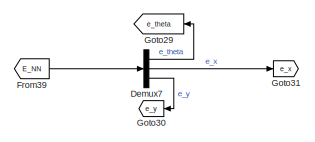
[diagram: root canvas - part 1/10, top left region]
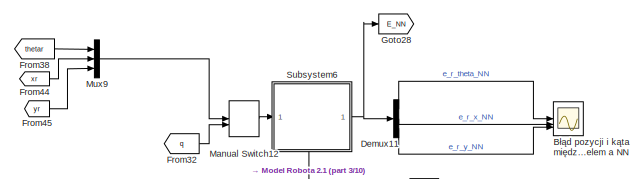
[diagram: root canvas - part 2/10, top center region]
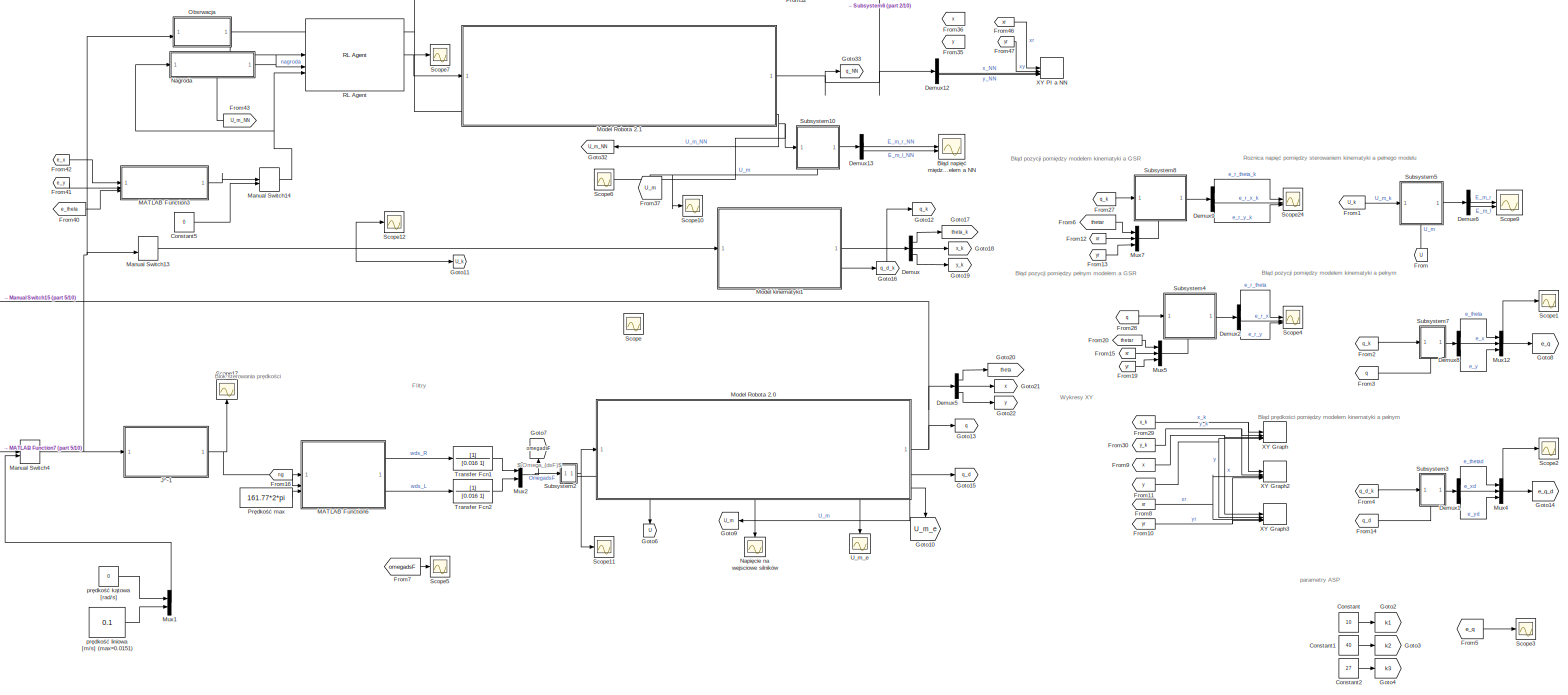
[diagram: root canvas - part 3/10, top center region]
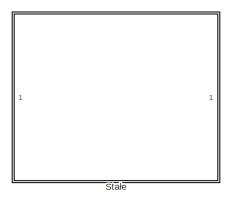
[diagram: root canvas - part 4/10, top center region]
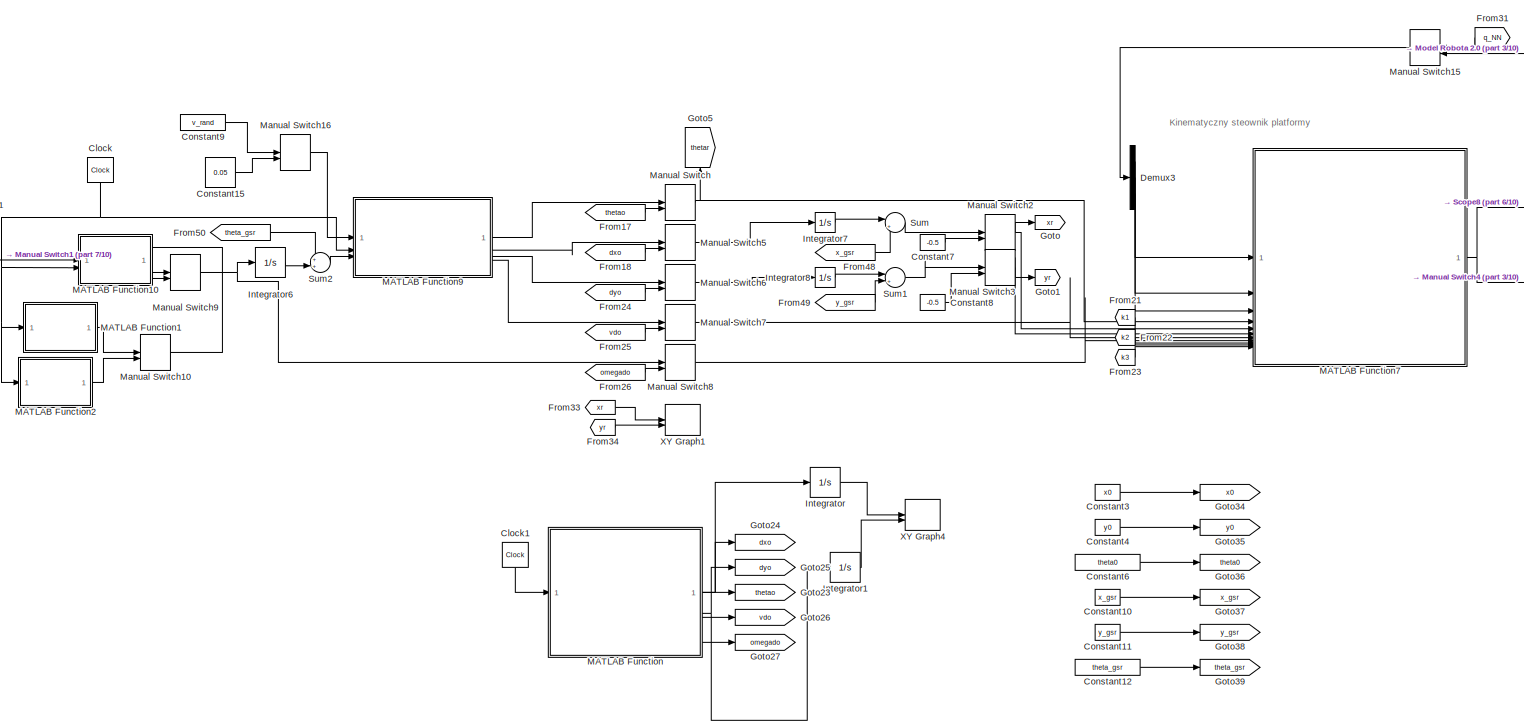
[diagram: root canvas - part 5/10, top left region]
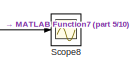
[diagram: root canvas - part 6/10, top left region]
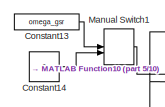
[diagram: root canvas - part 7/10, top left region]
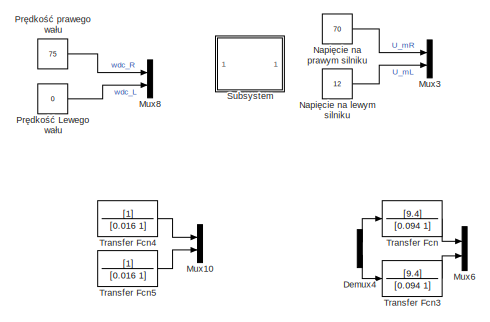
[diagram: root canvas - part 8/10, middle left region]
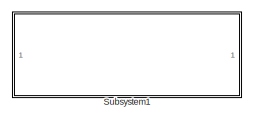
[diagram: root canvas - part 9/10, central region]
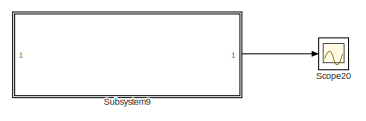
[diagram: root canvas - part 10/10, bottom right region]
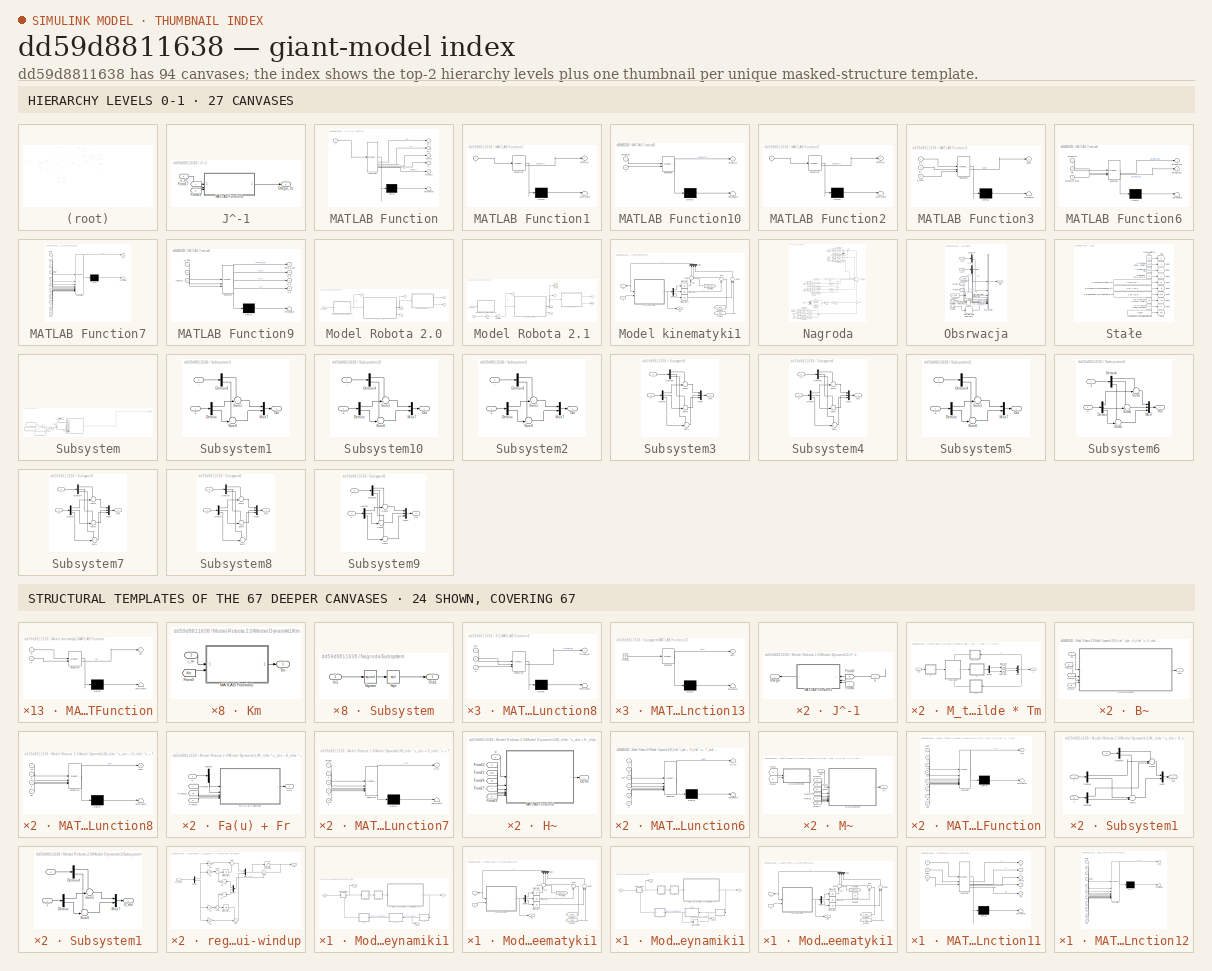
[diagram: thumbnail index - top-2 hierarchy levels (27 canvases) + 24 structural-template representatives of the remaining 67 canvases]
MODEL slx_dd59d8811638
KIND model
CONFIG AbsTol = auto
CONFIG EnableMultiTasking = off
CONFIG FixedStep = auto
CONFIG MaxStep = auto
CONFIG MinStep = auto
CONFIG RelTol = 1e-3
CONFIG SampleTimeConstraint = Unconstrained
CONFIG SolverName = VariableStepAuto
CONFIG StartTime = 0.0
CONFIG StopTime = 63
WORKSPACE source: mxarray member
WORKSPACE Km = [1 1]
BLOCK [Scope] Błąd napięć między pełnym modelem a NN
  Floating = off
  NumInputPorts = 2
  ScopeSpecificationString = Simulink.scopes.TimeScopeBlockCfg('CurrentConfiguration', extmgr.ConfigurationSet(extmgr.Configuration('Core','General UI',true,'FigureColor',[1 1 1]),extmgr.Configuration('Core','Source UI',true),extmgr.Configuration('Sources','WiredSimulink',true,'DataLoggingVariableName','ScopeData1'),extmgr.Configuration('Visuals','Time Domain',true,'SerializedDisplays',{struct('MinYLimReal','-1.84712','MaxYLi...<+1441ch>
BLOCK [Scope] Błąd pozycji i kąta między (switch) modelem a NN
  Floating = off
  NameLocation = right
  NumInputPorts = 3
  ScopeSpecificationString = Simulink.scopes.TimeScopeBlockCfg('CurrentConfiguration', extmgr.ConfigurationSet(extmgr.Configuration('Core','General UI',true),extmgr.Configuration('Core','Source UI',true),extmgr.Configuration('Sources','WiredSimulink',true,'DataLoggingVariableName','ScopeData1'),extmgr.Configuration('Visuals','Time Domain',true,'SerializedDisplays',{struct('MinYLimReal','-0.01246','MaxYLimReal','0.03058','YLab...<+1612ch>
BLOCK [Clock] Clock
  NameLocation = left
BLOCK [Clock] Clock1
  NameLocation = left
BLOCK [Constant] Constant
  Value = 10
  VectorParams1D = off
BLOCK [Constant] Constant1
  Value = 40
BLOCK [Constant] Constant10
  Value = x_gsr
BLOCK [Constant] Constant11
  Value = y_gsr
BLOCK [Constant] Constant12
  Value = theta_gsr
BLOCK [Constant] Constant13
  Value = omega_gsr
BLOCK [Constant] Constant14
  Value = 0
BLOCK [Constant] Constant15
  Value = 0.05
BLOCK [Constant] Constant2
  Value = 27
BLOCK [Constant] Constant3
  Value = x0
BLOCK [Constant] Constant4
  Value = y0
BLOCK [Constant] Constant5
  OutDataTypeStr = boolean
  Value = 0
BLOCK [Constant] Constant6
  Value = theta0
BLOCK [Constant] Constant7
  Value = -0.5
BLOCK [Constant] Constant8
  Value = -0.5
BLOCK [Constant] Constant9
  Value = v_rand
BLOCK [Demux] Demux
  Outputs = 3
BLOCK [Demux] Demux1
  Outputs = 3
BLOCK [Demux] Demux11
  Outputs = 3
BLOCK [Demux] Demux12
  Outputs = 3
BLOCK [Demux] Demux13
  Outputs = 2
BLOCK [Demux] Demux2
  Outputs = 3
BLOCK [Demux] Demux3
  Outputs = 3
BLOCK [Demux] Demux4
  Commented = on
  Outputs = 2
BLOCK [Demux] Demux5
  Outputs = 3
BLOCK [Demux] Demux6
  Outputs = 2
BLOCK [Demux] Demux7
  Outputs = 3
BLOCK [Demux] Demux8
  Outputs = 3
BLOCK [Demux] Demux9
  Outputs = 3
BLOCK [From] From
  GotoTag = U
  NameLocation = right
  TagVisibility = global
BLOCK [From] From1
  GotoTag = U_k
  TagVisibility = global
BLOCK [From] From10
  GotoTag = yr
  TagVisibility = global
BLOCK [From] From11
  GotoTag = y
  TagVisibility = global
BLOCK [From] From12
  GotoTag = xr
  TagVisibility = global
BLOCK [From] From13
  GotoTag = yr
  TagVisibility = global
BLOCK [From] From14
  GotoTag = q_d
  TagVisibility = global
BLOCK [From] From15
  GotoTag = xr
  TagVisibility = global
BLOCK [From] From16
  GotoTag = ng
  TagVisibility = global
BLOCK [From] From17
  GotoTag = thetao
  TagVisibility = global
BLOCK [From] From18
  GotoTag = dxo
  TagVisibility = global
BLOCK [From] From19
  GotoTag = yr
  TagVisibility = global
BLOCK [From] From2
  GotoTag = q_k
  TagVisibility = global
BLOCK [From] From20
  GotoTag = thetar
  TagVisibility = global
BLOCK [From] From21
  GotoTag = k1
  TagVisibility = global
BLOCK [From] From22
  GotoTag = k2
  TagVisibility = global
BLOCK [From] From23
  GotoTag = k3
  TagVisibility = global
BLOCK [From] From24
  GotoTag = dyo
  TagVisibility = global
BLOCK [From] From25
  GotoTag = vdo
  TagVisibility = global
BLOCK [From] From26
  GotoTag = omegado
  TagVisibility = global
BLOCK [From] From27
  GotoTag = q_k
  TagVisibility = global
BLOCK [From] From28
  GotoTag = q
  TagVisibility = global
BLOCK [From] From29
  GotoTag = x_k
  TagVisibility = global
BLOCK [From] From3
  GotoTag = q
  TagVisibility = global
BLOCK [From] From30
  GotoTag = y_k
  TagVisibility = global
BLOCK [From] From31
  GotoTag = q_NN
  NameLocation = top
  TagVisibility = global
BLOCK [From] From32
  GotoTag = q
  TagVisibility = global
BLOCK [From] From33
  GotoTag = xr
  TagVisibility = global
BLOCK [From] From34
  GotoTag = yr
  TagVisibility = global
BLOCK [From] From35
  GotoTag = y
  TagVisibility = global
BLOCK [From] From36
  GotoTag = x
  TagVisibility = global
BLOCK [From] From37
  GotoTag = U_m
  NameLocation = right
  TagVisibility = global
BLOCK [From] From38
  GotoTag = thetar
  TagVisibility = global
BLOCK [From] From39
  GotoTag = E_NN
  TagVisibility = global
BLOCK [From] From4
  GotoTag = q_d_k
  TagVisibility = global
BLOCK [From] From40
  GotoTag = e_theta
  NameLocation = top
  TagVisibility = global
BLOCK [From] From41
  GotoTag = e_y
  NameLocation = top
  TagVisibility = global
BLOCK [From] From42
  GotoTag = e_x
  TagVisibility = global
BLOCK [From] From43
  GotoTag = U_m_NN
  TagVisibility = global
BLOCK [From] From44
  GotoTag = xr
  TagVisibility = global
BLOCK [From] From45
  GotoTag = yr
  TagVisibility = global
BLOCK [From] From46
  GotoTag = xr
  TagVisibility = global
BLOCK [From] From47
  GotoTag = yr
  TagVisibility = global
BLOCK [From] From48
  GotoTag = x_gsr
  TagVisibility = global
BLOCK [From] From49
  GotoTag = y_gsr
  TagVisibility = global
BLOCK [From] From5
  GotoTag = e_q
BLOCK [From] From50
  GotoTag = theta_gsr
  TagVisibility = global
BLOCK [From] From6
  GotoTag = thetar
  TagVisibility = global
BLOCK [From] From7
  GotoTag = omegadsF
BLOCK [From] From8
  GotoTag = xr
  TagVisibility = global
BLOCK [From] From9
  GotoTag = x
  TagVisibility = global
BLOCK [Goto] Goto
  GotoTag = xr
  TagVisibility = global
BLOCK [Goto] Goto1
  GotoTag = yr
  TagVisibility = global
BLOCK [Goto] Goto10
  GotoTag = U_m_e
  NameLocation = left
  TagVisibility = global
BLOCK [Goto] Goto11
  GotoTag = U_k
  TagVisibility = global
BLOCK [Goto] Goto12
  GotoTag = q_k
  TagVisibility = global
BLOCK [Goto] Goto13
  GotoTag = q
  TagVisibility = global
BLOCK [Goto] Goto14
  GotoTag = e_q_d
BLOCK [Goto] Goto15
  GotoTag = q_d
  TagVisibility = global
BLOCK [Goto] Goto16
  GotoTag = q_d_k
  TagVisibility = global
BLOCK [Goto] Goto17
  GotoTag = theta_k
  TagVisibility = global
BLOCK [Goto] Goto18
  GotoTag = x_k
  TagVisibility = global
BLOCK [Goto] Goto19
  GotoTag = y_k
  TagVisibility = global
BLOCK [Goto] Goto2
  GotoTag = k1
  TagVisibility = global
BLOCK [Goto] Goto20
  GotoTag = theta
  TagVisibility = global
BLOCK [Goto] Goto21
  GotoTag = x
  TagVisibility = global
BLOCK [Goto] Goto22
  GotoTag = y
  TagVisibility = global
BLOCK [Goto] Goto23
  GotoTag = thetao
  TagVisibility = global
BLOCK [Goto] Goto24
  GotoTag = dxo
  TagVisibility = global
BLOCK [Goto] Goto25
  GotoTag = dyo
  TagVisibility = global
BLOCK [Goto] Goto26
  GotoTag = vdo
  TagVisibility = global
BLOCK [Goto] Goto27
  GotoTag = omegado
  TagVisibility = global
BLOCK [Goto] Goto28
  GotoTag = E_NN
  TagVisibility = global
BLOCK [Goto] Goto29
  GotoTag = e_theta
  NameLocation = top
  TagVisibility = global
BLOCK [Goto] Goto3
  GotoTag = k2
  TagVisibility = global
BLOCK [Goto] Goto30
  GotoTag = e_y
  NameLocation = top
  TagVisibility = global
BLOCK [Goto] Goto31
  GotoTag = e_x
  TagVisibility = global
BLOCK [Goto] Goto32
  GotoTag = U_m_NN
  NameLocation = top
  TagVisibility = global
BLOCK [Goto] Goto33
  GotoTag = q_NN
  TagVisibility = global
BLOCK [Goto] Goto34
  GotoTag = x0
  TagVisibility = global
BLOCK [Goto] Goto35
  GotoTag = y0
  TagVisibility = global
BLOCK [Goto] Goto36
  GotoTag = theta0
  TagVisibility = global
BLOCK [Goto] Goto37
  GotoTag = x_gsr
  TagVisibility = global
BLOCK [Goto] Goto38
  GotoTag = y_gsr
  TagVisibility = global
BLOCK [Goto] Goto39
  GotoTag = theta_gsr
  TagVisibility = global
BLOCK [Goto] Goto4
  GotoTag = k3
  TagVisibility = global
BLOCK [Goto] Goto5
  GotoTag = thetar
  NameLocation = right
  TagVisibility = global
BLOCK [Goto] Goto6
  GotoTag = U
  NameLocation = left
  TagVisibility = global
BLOCK [Goto] Goto7
  GotoTag = omegadsF
  NameLocation = right
BLOCK [Goto] Goto8
  GotoTag = e_q
BLOCK [Goto] Goto9
  GotoTag = U_m
  NameLocation = top
  TagVisibility = global
BLOCK [Integrator] Integrator
BLOCK [Integrator] Integrator1
BLOCK [Integrator] Integrator6
BLOCK [Integrator] Integrator7
BLOCK [Integrator] Integrator8
BLOCK [SubSystem] J^-1
BLOCK [From] J^-1/From17
  GotoTag = r
  TagVisibility = global
BLOCK [From] J^-1/From18
  GotoTag = b
  TagVisibility = global
BLOCK [SubSystem] J^-1/MATLAB Function8
  ErrorFcn = Stateflow.Translate.translate
  PermitHierarchicalResolution = ExplicitOnly
  SFBlockType = MATLAB Function
  TreatAsAtomicUnit = on
BLOCK [Demux] J^-1/MATLAB Function8/ Demux 
  Outputs = 1
BLOCK [S-Function] J^-1/MATLAB Function8/ SFunction 
  EnableBusSupport = on
  FunctionName = sf_sfun
  PortCounts = [3 2]
  SFcnIsStateOwnerBlock = off
  SFunctionDeploymentMode = off
  Tag = Stateflow S-Function 9
BLOCK [Terminator] J^-1/MATLAB Function8/ Terminator 
BLOCK [Outport] J^-1/MATLAB Function8/Omega_dc
BLOCK [Inport] J^-1/MATLAB Function8/b
  Port = 3
BLOCK [Inport] J^-1/MATLAB Function8/r
  Port = 2
BLOCK [Inport] J^-1/MATLAB Function8/u_dc
BLOCK [Outport] J^-1/Omega_dc
BLOCK [Inport] J^-1/u_dc
BLOCK [SubSystem] MATLAB Function
  ErrorFcn = Stateflow.Translate.translate
  PermitHierarchicalResolution = ExplicitOnly
  SFBlockType = MATLAB Function
  TreatAsAtomicUnit = on
BLOCK [Demux] MATLAB Function/ Demux 
  Outputs = 1
BLOCK [S-Function] MATLAB Function/ SFunction 
  EnableBusSupport = on
  FunctionName = sf_sfun
  PortCounts = [1 6]
  SFcnIsStateOwnerBlock = off
  SFunctionDeploymentMode = off
  Tag = Stateflow S-Function 2
BLOCK [Terminator] MATLAB Function/ Terminator 
BLOCK [Outport] MATLAB Function/dx_r
BLOCK [Outport] MATLAB Function/dy_r
  Port = 2
BLOCK [Outport] MATLAB Function/omega_r
  Port = 5
BLOCK [Inport] MATLAB Function/t
BLOCK [Outport] MATLAB Function/theta_r
  Port = 3
BLOCK [Outport] MATLAB Function/v_r
  Port = 4
BLOCK [SubSystem] MATLAB Function1
  ErrorFcn = Stateflow.Translate.translate
  PermitHierarchicalResolution = ExplicitOnly
  SFBlockType = MATLAB Function
  TreatAsAtomicUnit = on
BLOCK [Demux] MATLAB Function1/ Demux 
  Outputs = 1
BLOCK [S-Function] MATLAB Function1/ SFunction 
  EnableBusSupport = on
  FunctionName = sf_sfun
  PortCounts = [1 2]
  SFcnIsStateOwnerBlock = off
  SFunctionDeploymentMode = off
  Tag = Stateflow S-Function 1
BLOCK [Terminator] MATLAB Function1/ Terminator 
BLOCK [Outport] MATLAB Function1/dtheta_d
BLOCK [Inport] MATLAB Function1/t
BLOCK [SubSystem] MATLAB Function10
  ErrorFcn = Stateflow.Translate.translate
  PermitHierarchicalResolution = ExplicitOnly
  SFBlockType = MATLAB Function
  TreatAsAtomicUnit = on
BLOCK [Demux] MATLAB Function10/ Demux 
  Outputs = 1
BLOCK [S-Function] MATLAB Function10/ SFunction 
  EnableBusSupport = on
  FunctionName = sf_sfun
  PortCounts = [2 2]
  SFcnIsStateOwnerBlock = off
  SFunctionDeploymentMode = off
  Tag = Stateflow S-Function 11
BLOCK [Terminator] MATLAB Function10/ Terminator 
BLOCK [Outport] MATLAB Function10/dtheta_d
BLOCK [Inport] MATLAB Function10/omega_d
BLOCK [Inport] MATLAB Function10/t
  Port = 2
BLOCK [SubSystem] MATLAB Function2
  ErrorFcn = Stateflow.Translate.translate
  PermitHierarchicalResolution = ExplicitOnly
  SFBlockType = MATLAB Function
  TreatAsAtomicUnit = on
BLOCK [Demux] MATLAB Function2/ Demux 
  Outputs = 1
BLOCK [S-Function] MATLAB Function2/ SFunction 
  EnableBusSupport = on
  FunctionName = sf_sfun
  PortCounts = [1 2]
  SFcnIsStateOwnerBlock = off
  SFunctionDeploymentMode = off
  Tag = Stateflow S-Function 3
BLOCK [Terminator] MATLAB Function2/ Terminator 
BLOCK [Outport] MATLAB Function2/dtheta_d
BLOCK [Inport] MATLAB Function2/t
BLOCK [SubSystem] MATLAB Function3
  ErrorFcn = Stateflow.Translate.translate
  PermitHierarchicalResolution = ExplicitOnly
  SFBlockType = MATLAB Function
  TreatAsAtomicUnit = on
BLOCK [Demux] MATLAB Function3/ Demux 
  Outputs = 1
BLOCK [S-Function] MATLAB Function3/ SFunction 
  EnableBusSupport = on
  FunctionName = sf_sfun
  PortCounts = [3 2]
  SFcnIsStateOwnerBlock = off
  SFunctionDeploymentMode = off
  Tag = Stateflow S-Function 4
BLOCK [Terminator] MATLAB Function3/ Terminator 
BLOCK [Outport] MATLAB Function3/done
BLOCK [Inport] MATLAB Function3/e_theta
  Port = 3
BLOCK [Inport] MATLAB Function3/e_x
BLOCK [Inport] MATLAB Function3/e_y
  Port = 2
BLOCK [SubSystem] MATLAB Function6
  ErrorFcn = Stateflow.Translate.translate
  PermitHierarchicalResolution = ExplicitOnly
  SFBlockType = MATLAB Function
  TreatAsAtomicUnit = on
BLOCK [Demux] MATLAB Function6/ Demux 
  Outputs = 1
BLOCK [S-Function] MATLAB Function6/ SFunction 
  EnableBusSupport = on
  FunctionName = sf_sfun
  PortCounts = [3 3]
  SFcnIsStateOwnerBlock = off
  SFunctionDeploymentMode = off
  Tag = Stateflow S-Function 7
BLOCK [Terminator] MATLAB Function6/ Terminator 
BLOCK [Inport] MATLAB Function6/ng
  Port = 2
BLOCK [Inport] MATLAB Function6/omega_dc
BLOCK [Outport] MATLAB Function6/omega_dsL
  Port = 2
BLOCK [Outport] MATLAB Function6/omega_dsP
BLOCK [Inport] MATLAB Function6/omega_m_max
  Port = 3
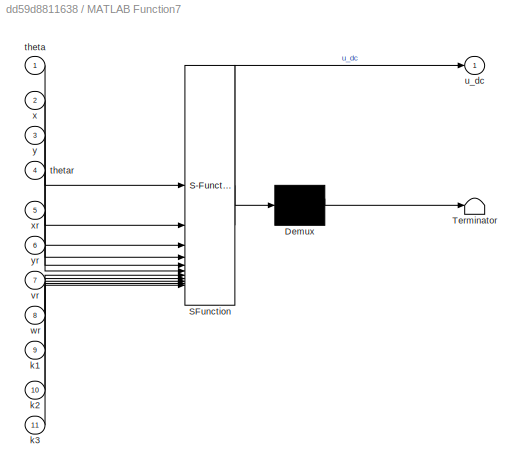
BLOCK [SubSystem] MATLAB Function7
  ErrorFcn = Stateflow.Translate.translate
  PermitHierarchicalResolution = ExplicitOnly
  SFBlockType = MATLAB Function
  TreatAsAtomicUnit = on
BLOCK [Demux] MATLAB Function7/ Demux 
  Outputs = 1
BLOCK [S-Function] MATLAB Function7/ SFunction 
  EnableBusSupport = on
  FunctionName = sf_sfun
  PortCounts = [11 2]
  SFcnIsStateOwnerBlock = off
  SFunctionDeploymentMode = off
  Tag = Stateflow S-Function 8
BLOCK [Terminator] MATLAB Function7/ Terminator 
BLOCK [Inport] MATLAB Function7/k1
  Port = 9
BLOCK [Inport] MATLAB Function7/k2
  Port = 10
BLOCK [Inport] MATLAB Function7/k3
  Port = 11
BLOCK [Inport] MATLAB Function7/theta
BLOCK [Inport] MATLAB Function7/thetar
  Port = 4
BLOCK [Outport] MATLAB Function7/u_dc
BLOCK [Inport] MATLAB Function7/vr
  Port = 7
BLOCK [Inport] MATLAB Function7/wr
  Port = 8
BLOCK [Inport] MATLAB Function7/x
  Port = 2
BLOCK [Inport] MATLAB Function7/xr
  Port = 5
BLOCK [Inport] MATLAB Function7/y
  Port = 3
BLOCK [Inport] MATLAB Function7/yr
  Port = 6
BLOCK [SubSystem] MATLAB Function9
  ErrorFcn = Stateflow.Translate.translate
  PermitHierarchicalResolution = ExplicitOnly
  SFBlockType = MATLAB Function
  TreatAsAtomicUnit = on
BLOCK [Demux] MATLAB Function9/ Demux 
  Outputs = 1
BLOCK [S-Function] MATLAB Function9/ SFunction 
  EnableBusSupport = on
  FunctionName = sf_sfun
  PortCounts = [3 5]
  SFcnIsStateOwnerBlock = off
  SFunctionDeploymentMode = off
  Tag = Stateflow S-Function 10
BLOCK [Terminator] MATLAB Function9/ Terminator 
BLOCK [Outport] MATLAB Function9/dx_d
  Port = 2
BLOCK [Outport] MATLAB Function9/dy_d
  Port = 3
BLOCK [Inport] MATLAB Function9/t
  Port = 2
BLOCK [Inport] MATLAB Function9/theta_d
  Port = 3
BLOCK [Outport] MATLAB Function9/theta_d_out
BLOCK [Outport] MATLAB Function9/v_d
  Port = 4
BLOCK [Inport] MATLAB Function9/v_rand
BLOCK [ManualSwitch] Manual Switch
BLOCK [ManualSwitch] Manual Switch1
BLOCK [ManualSwitch] Manual Switch10
BLOCK [ManualSwitch] Manual Switch12
BLOCK [ManualSwitch] Manual Switch13
BLOCK [ManualSwitch] Manual Switch14
BLOCK [ManualSwitch] Manual Switch15
  NameLocation = top
BLOCK [ManualSwitch] Manual Switch16
  CurrentSetting = 0
BLOCK [ManualSwitch] Manual Switch2
BLOCK [ManualSwitch] Manual Switch3
BLOCK [ManualSwitch] Manual Switch4
BLOCK [ManualSwitch] Manual Switch5
BLOCK [ManualSwitch] Manual Switch6
BLOCK [ManualSwitch] Manual Switch7
BLOCK [ManualSwitch] Manual Switch8
BLOCK [ManualSwitch] Manual Switch9
BLOCK [SubSystem] Model Robota 2.0
  NameLocation = top
  PortSchema = {"entries":[{"content":{"sides":[{"content":{"connectorIds":["Out6","In1"]},"type":"ConnectorPlacement.EquallySpacedRectSide","uuid":"c09d05f6-15bd-4af9-8cdd-7798699522a1"},{"content":{"connectorIds":["Out1","Out2"],"side":"RIGHT"},"type":"ConnectorPlacement.EquallySpacedRectSide","uuid":"5078d491-052a-42da-8be8-27dff9332d53"},{"content":{"side":"TOP"},"type":"ConnectorPlacement.EquallySpacedRectS...<+400ch>
BLOCK [Inport] Model Robota 2.0/E_omega
BLOCK [SubSystem] Model Robota 2.0/Model Dynamiki1
BLOCK [SubSystem] Model Robota 2.0/Model Dynamiki1/J^-1
  NameLocation = top
BLOCK [From] Model Robota 2.0/Model Dynamiki1/J^-1/From3
  GotoTag = b
  NameLocation = top
  TagVisibility = global
BLOCK [From] Model Robota 2.0/Model Dynamiki1/J^-1/From4
  GotoTag = r
  NameLocation = top
  TagVisibility = global
BLOCK [SubSystem] Model Robota 2.0/Model Dynamiki1/J^-1/MATLAB Function2
  ErrorFcn = Stateflow.Translate.translate
  NameLocation = top
  PermitHierarchicalResolution = ExplicitOnly
  SFBlockType = MATLAB Function
  TreatAsAtomicUnit = on
BLOCK [Demux] Model Robota 2.0/Model Dynamiki1/J^-1/MATLAB Function2/ Demux 
  Outputs = 1
BLOCK [S-Function] Model Robota 2.0/Model Dynamiki1/J^-1/MATLAB Function2/ SFunction 
  EnableBusSupport = on
  FunctionName = sf_sfun
  PortCounts = [3 2]
  SFcnIsStateOwnerBlock = off
  SFunctionDeploymentMode = off
  Tag = Stateflow S-Function 30
BLOCK [Terminator] Model Robota 2.0/Model Dynamiki1/J^-1/MATLAB Function2/ Terminator 
BLOCK [Outport] Model Robota 2.0/Model Dynamiki1/J^-1/MATLAB Function2/Omega
BLOCK [Inport] Model Robota 2.0/Model Dynamiki1/J^-1/MATLAB Function2/b
  Port = 2
BLOCK [Inport] Model Robota 2.0/Model Dynamiki1/J^-1/MATLAB Function2/r
  Port = 3
BLOCK [Inport] Model Robota 2.0/Model Dynamiki1/J^-1/MATLAB Function2/u
BLOCK [Outport] Model Robota 2.0/Model Dynamiki1/J^-1/Omega
  NameLocation = top
BLOCK [Inport] Model Robota 2.0/Model Dynamiki1/J^-1/u
BLOCK [SubSystem] Model Robota 2.0/Model Dynamiki1/Km
BLOCK [From] Model Robota 2.0/Model Dynamiki1/Km/From3
  GotoTag = Km
  TagVisibility = global
BLOCK [SubSystem] Model Robota 2.0/Model Dynamiki1/Km/MATLAB Function2
  ErrorFcn = Stateflow.Translate.translate
  PermitHierarchicalResolution = ExplicitOnly
  SFBlockType = MATLAB Function
  TreatAsAtomicUnit = on
BLOCK [Demux] Model Robota 2.0/Model Dynamiki1/Km/MATLAB Function2/ Demux 
  Outputs = 1
BLOCK [S-Function] Model Robota 2.0/Model Dynamiki1/Km/MATLAB Function2/ SFunction 
  EnableBusSupport = on
  FunctionName = sf_sfun
  PortCounts = [2 2]
  SFcnIsStateOwnerBlock = off
  SFunctionDeploymentMode = off
  Tag = Stateflow S-Function 28
BLOCK [Terminator] Model Robota 2.0/Model Dynamiki1/Km/MATLAB Function2/ Terminator 
BLOCK [Outport] Model Robota 2.0/Model Dynamiki1/Km/MATLAB Function2/Tm
BLOCK [Inport] Model Robota 2.0/Model Dynamiki1/Km/MATLAB Function2/i_m
BLOCK [Inport] Model Robota 2.0/Model Dynamiki1/Km/MATLAB Function2/km
  Port = 2
BLOCK [Outport] Model Robota 2.0/Model Dynamiki1/Km/Tm
BLOCK [Inport] Model Robota 2.0/Model Dynamiki1/Km/i_m
BLOCK [SubSystem] Model Robota 2.0/Model Dynamiki1/Km1
BLOCK [Outport] Model Robota 2.0/Model Dynamiki1/Km1/Em
BLOCK [From] Model Robota 2.0/Model Dynamiki1/Km1/From3
  GotoTag = Km
  TagVisibility = global
BLOCK [SubSystem] Model Robota 2.0/Model Dynamiki1/Km1/MATLAB Function2
  ErrorFcn = Stateflow.Translate.translate
  PermitHierarchicalResolution = ExplicitOnly
  SFBlockType = MATLAB Function
  TreatAsAtomicUnit = on
BLOCK [Demux] Model Robota 2.0/Model Dynamiki1/Km1/MATLAB Function2/ Demux 
  Outputs = 1
BLOCK [S-Function] Model Robota 2.0/Model Dynamiki1/Km1/MATLAB Function2/ SFunction 
  EnableBusSupport = on
  FunctionName = sf_sfun
  PortCounts = [2 2]
  SFcnIsStateOwnerBlock = off
  SFunctionDeploymentMode = off
  Tag = Stateflow S-Function 32
BLOCK [Terminator] Model Robota 2.0/Model Dynamiki1/Km1/MATLAB Function2/ Terminator 
BLOCK [Outport] Model Robota 2.0/Model Dynamiki1/Km1/MATLAB Function2/Em
BLOCK [Inport] Model Robota 2.0/Model Dynamiki1/Km1/MATLAB Function2/Omega_m
BLOCK [Inport] Model Robota 2.0/Model Dynamiki1/Km1/MATLAB Function2/km
  Port = 2
BLOCK [Inport] Model Robota 2.0/Model Dynamiki1/Km1/Omega_m
BLOCK [SubSystem] Model Robota 2.0/Model Dynamiki1/M_tilde * u_dot + H_tilde * u + F_total - B_tilde * Tm
BLOCK [SubSystem] Model Robota 2.0/Model Dynamiki1/M_tilde * u_dot + H_tilde * u + F_total - B_tilde * Tm/B~
BLOCK [Outport] Model Robota 2.0/Model Dynamiki1/M_tilde * u_dot + H_tilde * u + F_total - B_tilde * Tm/B~/BTm
BLOCK [From] Model Robota 2.0/Model Dynamiki1/M_tilde * u_dot + H_tilde * u + F_total - B_tilde * Tm/B~/From30
  GotoTag = r
  TagVisibility = global
BLOCK [From] Model Robota 2.0/Model Dynamiki1/M_tilde * u_dot + H_tilde * u + F_total - B_tilde * Tm/B~/From31
  GotoTag = b
  TagVisibility = global
BLOCK [From] Model Robota 2.0/Model Dynamiki1/M_tilde * u_dot + H_tilde * u + F_total - B_tilde * Tm/B~/From32
  GotoTag = ng
  TagVisibility = global
BLOCK [SubSystem] Model Robota 2.0/Model Dynamiki1/M_tilde * u_dot + H_tilde * u + F_total - B_tilde * Tm/B~/MATLAB Function8
  ErrorFcn = Stateflow.Translate.translate
  PermitHierarchicalResolution = ExplicitOnly
  SFBlockType = MATLAB Function
  TreatAsAtomicUnit = on
BLOCK [Demux] Model Robota 2.0/Model Dynamiki1/M_tilde * u_dot + H_tilde * u + F_total - B_tilde * Tm/B~/MATLAB Function8/ Demux 
  Outputs = 1
BLOCK [S-Function] Model Robota 2.0/Model Dynamiki1/M_tilde * u_dot + H_tilde * u + F_total - B_tilde * Tm/B~/MATLAB Function8/ SFunction 
  EnableBusSupport = on
  FunctionName = sf_sfun
  PortCounts = [4 2]
  SFcnIsStateOwnerBlock = off
  SFunctionDeploymentMode = off
  Tag = Stateflow S-Function 27
BLOCK [Terminator] Model Robota 2.0/Model Dynamiki1/M_tilde * u_dot + H_tilde * u + F_total - B_tilde * Tm/B~/MATLAB Function8/ Terminator 
BLOCK [Outport] Model Robota 2.0/Model Dynamiki1/M_tilde * u_dot + H_tilde * u + F_total - B_tilde * Tm/B~/MATLAB Function8/BTm
BLOCK [Inport] Model Robota 2.0/Model Dynamiki1/M_tilde * u_dot + H_tilde * u + F_total - B_tilde * Tm/B~/MATLAB Function8/Tm
BLOCK [Inport] Model Robota 2.0/Model Dynamiki1/M_tilde * u_dot + H_tilde * u + F_total - B_tilde * Tm/B~/MATLAB Function8/b
  Port = 2
BLOCK [Inport] Model Robota 2.0/Model Dynamiki1/M_tilde * u_dot + H_tilde * u + F_total - B_tilde * Tm/B~/MATLAB Function8/ng
  Port = 4
BLOCK [Inport] Model Robota 2.0/Model Dynamiki1/M_tilde * u_dot + H_tilde * u + F_total - B_tilde * Tm/B~/MATLAB Function8/r
  Port = 3
BLOCK [Inport] Model Robota 2.0/Model Dynamiki1/M_tilde * u_dot + H_tilde * u + F_total - B_tilde * Tm/B~/Tm
BLOCK [Demux] Model Robota 2.0/Model Dynamiki1/M_tilde * u_dot + H_tilde * u + F_total - B_tilde * Tm/Demux
  Outputs = 2
BLOCK [SubSystem] Model Robota 2.0/Model Dynamiki1/M_tilde * u_dot + H_tilde * u + F_total - B_tilde * Tm/Fa(u) + Fr
  NameLocation = top
BLOCK [Demux] Model Robota 2.0/Model Dynamiki1/M_tilde * u_dot + H_tilde * u + F_total - B_tilde * Tm/Fa(u) + Fr/Demux
  Outputs = 2
BLOCK [From] Model Robota 2.0/Model Dynamiki1/M_tilde * u_dot + H_tilde * u + F_total - B_tilde * Tm/Fa(u) + Fr/From24
  GotoTag = b
  TagVisibility = global
BLOCK [From] Model Robota 2.0/Model Dynamiki1/M_tilde * u_dot + H_tilde * u + F_total - B_tilde * Tm/Fa(u) + Fr/From25
  GotoTag = r
  TagVisibility = global
BLOCK [From] Model Robota 2.0/Model Dynamiki1/M_tilde * u_dot + H_tilde * u + F_total - B_tilde * Tm/Fa(u) + Fr/From29
  GotoTag = m
  IconDisplay = Signal name
  TagVisibility = global
BLOCK [SubSystem] Model Robota 2.0/Model Dynamiki1/M_tilde * u_dot + H_tilde * u + F_total - B_tilde * Tm/Fa(u) + Fr/MATLAB Function7
  ErrorFcn = Stateflow.Translate.translate
  PermitHierarchicalResolution = ExplicitOnly
  SFBlockType = MATLAB Function
  TreatAsAtomicUnit = on
BLOCK [Demux] Model Robota 2.0/Model Dynamiki1/M_tilde * u_dot + H_tilde * u + F_total - B_tilde * Tm/Fa(u) + Fr/MATLAB Function7/ Demux 
  Outputs = 1
BLOCK [S-Function] Model Robota 2.0/Model Dynamiki1/M_tilde * u_dot + H_tilde * u + F_total - B_tilde * Tm/Fa(u) + Fr/MATLAB Function7/ SFunction 
  EnableBusSupport = on
  FunctionName = sf_sfun
  PortCounts = [5 2]
  SFcnIsStateOwnerBlock = off
  SFunctionDeploymentMode = off
  Tag = Stateflow S-Function 25
BLOCK [Terminator] Model Robota 2.0/Model Dynamiki1/M_tilde * u_dot + H_tilde * u + F_total - B_tilde * Tm/Fa(u) + Fr/MATLAB Function7/ Terminator 
BLOCK [Outport] Model Robota 2.0/Model Dynamiki1/M_tilde * u_dot + H_tilde * u + F_total - B_tilde * Tm/Fa(u) + Fr/MATLAB Function7/OUT
BLOCK [Inport] Model Robota 2.0/Model Dynamiki1/M_tilde * u_dot + H_tilde * u + F_total - B_tilde * Tm/Fa(u) + Fr/MATLAB Function7/b
  Port = 5
BLOCK [Inport] Model Robota 2.0/Model Dynamiki1/M_tilde * u_dot + H_tilde * u + F_total - B_tilde * Tm/Fa(u) + Fr/MATLAB Function7/m
  Port = 4
BLOCK [Inport] Model Robota 2.0/Model Dynamiki1/M_tilde * u_dot + H_tilde * u + F_total - B_tilde * Tm/Fa(u) + Fr/MATLAB Function7/omega
BLOCK [Inport] Model Robota 2.0/Model Dynamiki1/M_tilde * u_dot + H_tilde * u + F_total - B_tilde * Tm/Fa(u) + Fr/MATLAB Function7/r
  Port = 3
BLOCK [Inport] Model Robota 2.0/Model Dynamiki1/M_tilde * u_dot + H_tilde * u + F_total - B_tilde * Tm/Fa(u) + Fr/MATLAB Function7/v
  Port = 2
BLOCK [Outport] Model Robota 2.0/Model Dynamiki1/M_tilde * u_dot + H_tilde * u + F_total - B_tilde * Tm/Fa(u) + Fr/OUT
BLOCK [Inport] Model Robota 2.0/Model Dynamiki1/M_tilde * u_dot + H_tilde * u + F_total - B_tilde * Tm/Fa(u) + Fr/u
BLOCK [SubSystem] Model Robota 2.0/Model Dynamiki1/M_tilde * u_dot + H_tilde * u + F_total - B_tilde * Tm/H~
  NameLocation = top
BLOCK [From] Model Robota 2.0/Model Dynamiki1/M_tilde * u_dot + H_tilde * u + F_total - B_tilde * Tm/H~/From22
  GotoTag = xi_m
  TagVisibility = global
BLOCK [From] Model Robota 2.0/Model Dynamiki1/M_tilde * u_dot + H_tilde * u + F_total - B_tilde * Tm/H~/From23
  GotoTag = xi
  TagVisibility = global
BLOCK [From] Model Robota 2.0/Model Dynamiki1/M_tilde * u_dot + H_tilde * u + F_total - B_tilde * Tm/H~/From26
  GotoTag = ng
  TagVisibility = global
BLOCK [From] Model Robota 2.0/Model Dynamiki1/M_tilde * u_dot + H_tilde * u + F_total - B_tilde * Tm/H~/From27
  GotoTag = r
  TagVisibility = global
BLOCK [From] Model Robota 2.0/Model Dynamiki1/M_tilde * u_dot + H_tilde * u + F_total - B_tilde * Tm/H~/From28
  GotoTag = b
  TagVisibility = global
BLOCK [SubSystem] Model Robota 2.0/Model Dynamiki1/M_tilde * u_dot + H_tilde * u + F_total - B_tilde * Tm/H~/MATLAB Function6
  ErrorFcn = Stateflow.Translate.translate
  PermitHierarchicalResolution = ExplicitOnly
  SFBlockType = MATLAB Function
  TreatAsAtomicUnit = on
BLOCK [Demux] Model Robota 2.0/Model Dynamiki1/M_tilde * u_dot + H_tilde * u + F_total - B_tilde * Tm/H~/MATLAB Function6/ Demux 
  Outputs = 1
BLOCK [S-Function] Model Robota 2.0/Model Dynamiki1/M_tilde * u_dot + H_tilde * u + F_total - B_tilde * Tm/H~/MATLAB Function6/ SFunction 
  EnableBusSupport = on
  FunctionName = sf_sfun
  PortCounts = [6 2]
  SFcnIsStateOwnerBlock = off
  SFunctionDeploymentMode = off
  Tag = Stateflow S-Function 24
BLOCK [Terminator] Model Robota 2.0/Model Dynamiki1/M_tilde * u_dot + H_tilde * u + F_total - B_tilde * Tm/H~/MATLAB Function6/ Terminator 
BLOCK [Outport] Model Robota 2.0/Model Dynamiki1/M_tilde * u_dot + H_tilde * u + F_total - B_tilde * Tm/H~/MATLAB Function6/OUTH
BLOCK [Inport] Model Robota 2.0/Model Dynamiki1/M_tilde * u_dot + H_tilde * u + F_total - B_tilde * Tm/H~/MATLAB Function6/b
  Port = 6
BLOCK [Inport] Model Robota 2.0/Model Dynamiki1/M_tilde * u_dot + H_tilde * u + F_total - B_tilde * Tm/H~/MATLAB Function6/ng
  Port = 4
BLOCK [Inport] Model Robota 2.0/Model Dynamiki1/M_tilde * u_dot + H_tilde * u + F_total - B_tilde * Tm/H~/MATLAB Function6/r
  Port = 5
BLOCK [Inport] Model Robota 2.0/Model Dynamiki1/M_tilde * u_dot + H_tilde * u + F_total - B_tilde * Tm/H~/MATLAB Function6/u
BLOCK [Inport] Model Robota 2.0/Model Dynamiki1/M_tilde * u_dot + H_tilde * u + F_total - B_tilde * Tm/H~/MATLAB Function6/xi
  Port = 2
BLOCK [Inport] Model Robota 2.0/Model Dynamiki1/M_tilde * u_dot + H_tilde * u + F_total - B_tilde * Tm/H~/MATLAB Function6/xi_m
  Port = 3
BLOCK [Outport] Model Robota 2.0/Model Dynamiki1/M_tilde * u_dot + H_tilde * u + F_total - B_tilde * Tm/H~/OUTH
BLOCK [Inport] Model Robota 2.0/Model Dynamiki1/M_tilde * u_dot + H_tilde * u + F_total - B_tilde * Tm/H~/u
BLOCK [Integrator] Model Robota 2.0/Model Dynamiki1/M_tilde * u_dot + H_tilde * u + F_total - B_tilde * Tm/Integrator
BLOCK [Integrator] Model Robota 2.0/Model Dynamiki1/M_tilde * u_dot + H_tilde * u + F_total - B_tilde * Tm/Integrator1
BLOCK [Mux] Model Robota 2.0/Model Dynamiki1/M_tilde * u_dot + H_tilde * u + F_total - B_tilde * Tm/Mux
  DisplayOption = bar
  Inputs = 2
BLOCK [SubSystem] Model Robota 2.0/Model Dynamiki1/M_tilde * u_dot + H_tilde * u + F_total - B_tilde * Tm/M~
BLOCK [Inport] Model Robota 2.0/Model Dynamiki1/M_tilde * u_dot + H_tilde * u + F_total - B_tilde * Tm/M~/BTm
BLOCK [From] Model Robota 2.0/Model Dynamiki1/M_tilde * u_dot + H_tilde * u + F_total - B_tilde * Tm/M~/From16
  GotoTag = b
  TagVisibility = global
BLOCK [From] Model Robota 2.0/Model Dynamiki1/M_tilde * u_dot + H_tilde * u + F_total - B_tilde * Tm/M~/From17
  GotoTag = r
  TagVisibility = global
BLOCK [From] Model Robota 2.0/Model Dynamiki1/M_tilde * u_dot + H_tilde * u + F_total - B_tilde * Tm/M~/From18
  GotoTag = m
  IconDisplay = Signal name
  TagVisibility = global
BLOCK [From] Model Robota 2.0/Model Dynamiki1/M_tilde * u_dot + H_tilde * u + F_total - B_tilde * Tm/M~/From19
  GotoTag = In
  TagVisibility = global
BLOCK [From] Model Robota 2.0/Model Dynamiki1/M_tilde * u_dot + H_tilde * u + F_total - B_tilde * Tm/M~/From20
  GotoTag = Ik
  TagVisibility = global
BLOCK [From] Model Robota 2.0/Model Dynamiki1/M_tilde * u_dot + H_tilde * u + F_total - B_tilde * Tm/M~/From21
  GotoTag = ng
  TagVisibility = global
BLOCK [From] Model Robota 2.0/Model Dynamiki1/M_tilde * u_dot + H_tilde * u + F_total - B_tilde * Tm/M~/From3
  GotoTag = b
  TagVisibility = global
BLOCK [From] Model Robota 2.0/Model Dynamiki1/M_tilde * u_dot + H_tilde * u + F_total - B_tilde * Tm/M~/From4
  GotoTag = m
  TagVisibility = global
BLOCK [SubSystem] Model Robota 2.0/Model Dynamiki1/M_tilde * u_dot + H_tilde * u + F_total - B_tilde * Tm/M~/MATLAB Function
  ErrorFcn = Stateflow.Translate.translate
  PermitHierarchicalResolution = ExplicitOnly
  SFBlockType = MATLAB Function
  TreatAsAtomicUnit = on
BLOCK [Demux] Model Robota 2.0/Model Dynamiki1/M_tilde * u_dot + H_tilde * u + F_total - B_tilde * Tm/M~/MATLAB Function/ Demux 
  Outputs = 1
BLOCK [S-Function] Model Robota 2.0/Model Dynamiki1/M_tilde * u_dot + H_tilde * u + F_total - B_tilde * Tm/M~/MATLAB Function/ SFunction 
  EnableBusSupport = on
  FunctionName = sf_sfun
  PortCounts = [8 2]
  SFcnIsStateOwnerBlock = off
  SFunctionDeploymentMode = off
  Tag = Stateflow S-Function 23
BLOCK [Terminator] Model Robota 2.0/Model Dynamiki1/M_tilde * u_dot + H_tilde * u + F_total - B_tilde * Tm/M~/MATLAB Function/ Terminator 
BLOCK [Inport] Model Robota 2.0/Model Dynamiki1/M_tilde * u_dot + H_tilde * u + F_total - B_tilde * Tm/M~/MATLAB Function/BTm
BLOCK [Inport] Model Robota 2.0/Model Dynamiki1/M_tilde * u_dot + H_tilde * u + F_total - B_tilde * Tm/M~/MATLAB Function/Ic
  Port = 2
BLOCK [Inport] Model Robota 2.0/Model Dynamiki1/M_tilde * u_dot + H_tilde * u + F_total - B_tilde * Tm/M~/MATLAB Function/Ik
  Port = 3
BLOCK [Inport] Model Robota 2.0/Model Dynamiki1/M_tilde * u_dot + H_tilde * u + F_total - B_tilde * Tm/M~/MATLAB Function/Im
  Port = 4
BLOCK [Inport] Model Robota 2.0/Model Dynamiki1/M_tilde * u_dot + H_tilde * u + F_total - B_tilde * Tm/M~/MATLAB Function/b
  Port = 7
BLOCK [Inport] Model Robota 2.0/Model Dynamiki1/M_tilde * u_dot + H_tilde * u + F_total - B_tilde * Tm/M~/MATLAB Function/m
  Port = 5
BLOCK [Inport] Model Robota 2.0/Model Dynamiki1/M_tilde * u_dot + H_tilde * u + F_total - B_tilde * Tm/M~/MATLAB Function/ng
  Port = 8
BLOCK [Inport] Model Robota 2.0/Model Dynamiki1/M_tilde * u_dot + H_tilde * u + F_total - B_tilde * Tm/M~/MATLAB Function/r
  Port = 6
BLOCK [Outport] Model Robota 2.0/Model Dynamiki1/M_tilde * u_dot + H_tilde * u + F_total - B_tilde * Tm/M~/MATLAB Function/u_d
BLOCK [SubSystem] Model Robota 2.0/Model Dynamiki1/M_tilde * u_dot + H_tilde * u + F_total - B_tilde * Tm/M~/MATLAB Function2
  ErrorFcn = Stateflow.Translate.translate
  PermitHierarchicalResolution = ExplicitOnly
  SFBlockType = MATLAB Function
  TreatAsAtomicUnit = on
BLOCK [Demux] Model Robota 2.0/Model Dynamiki1/M_tilde * u_dot + H_tilde * u + F_total - B_tilde * Tm/M~/MATLAB Function2/ Demux 
  Outputs = 1
BLOCK [S-Function] Model Robota 2.0/Model Dynamiki1/M_tilde * u_dot + H_tilde * u + F_total - B_tilde * Tm/M~/MATLAB Function2/ SFunction 
  EnableBusSupport = on
  FunctionName = sf_sfun
  PortCounts = [2 2]
  SFcnIsStateOwnerBlock = off
  SFunctionDeploymentMode = off
  Tag = Stateflow S-Function 19
BLOCK [Terminator] Model Robota 2.0/Model Dynamiki1/M_tilde * u_dot + H_tilde * u + F_total - B_tilde * Tm/M~/MATLAB Function2/ Terminator 
BLOCK [Outport] Model Robota 2.0/Model Dynamiki1/M_tilde * u_dot + H_tilde * u + F_total - B_tilde * Tm/M~/MATLAB Function2/Ic
BLOCK [Inport] Model Robota 2.0/Model Dynamiki1/M_tilde * u_dot + H_tilde * u + F_total - B_tilde * Tm/M~/MATLAB Function2/b
  Port = 2
BLOCK [Inport] Model Robota 2.0/Model Dynamiki1/M_tilde * u_dot + H_tilde * u + F_total - B_tilde * Tm/M~/MATLAB Function2/m
BLOCK [Outport] Model Robota 2.0/Model Dynamiki1/M_tilde * u_dot + H_tilde * u + F_total - B_tilde * Tm/M~/u_d
BLOCK [SubSystem] Model Robota 2.0/Model Dynamiki1/M_tilde * u_dot + H_tilde * u + F_total - B_tilde * Tm/Subsystem1
  PortSchema = {"entries":[{"content":{"sides":[{"content":{"connectorIds":["In1"]},"type":"ConnectorPlacement.EquallySpacedRectSide","uuid":"f81facd5-8dce-4a5d-a044-cb75bd1df10e"},{"content":{"connectorIds":["Out1"],"side":"RIGHT"},"type":"ConnectorPlacement.EquallySpacedRectSide","uuid":"361c4912-9b0e-4ff4-a4c3-0f951cd83b7e"},{"content":{"connectorIds":["In2"],"side":"TOP"},"type":"ConnectorPlacement.EquallySp...<+394ch>
BLOCK [Inport] Model Robota 2.0/Model Dynamiki1/M_tilde * u_dot + H_tilde * u + F_total - B_tilde * Tm/Subsystem1/+
BLOCK [Inport] Model Robota 2.0/Model Dynamiki1/M_tilde * u_dot + H_tilde * u + F_total - B_tilde * Tm/Subsystem1/-
  Port = 2
BLOCK [Inport] Model Robota 2.0/Model Dynamiki1/M_tilde * u_dot + H_tilde * u + F_total - B_tilde * Tm/Subsystem1/-1
  Port = 3
BLOCK [Demux] Model Robota 2.0/Model Dynamiki1/M_tilde * u_dot + H_tilde * u + F_total - B_tilde * Tm/Subsystem1/Demux
  Outputs = 2
BLOCK [Demux] Model Robota 2.0/Model Dynamiki1/M_tilde * u_dot + H_tilde * u + F_total - B_tilde * Tm/Subsystem1/Demux1
  Outputs = 2
BLOCK [Demux] Model Robota 2.0/Model Dynamiki1/M_tilde * u_dot + H_tilde * u + F_total - B_tilde * Tm/Subsystem1/Demux4
  Outputs = 2
BLOCK [Mux] Model Robota 2.0/Model Dynamiki1/M_tilde * u_dot + H_tilde * u + F_total - B_tilde * Tm/Subsystem1/Mux7
  DisplayOption = bar
  Inputs = 2
BLOCK [Outport] Model Robota 2.0/Model Dynamiki1/M_tilde * u_dot + H_tilde * u + F_total - B_tilde * Tm/Subsystem1/Out
BLOCK [Sum] Model Robota 2.0/Model Dynamiki1/M_tilde * u_dot + H_tilde * u + F_total - B_tilde * Tm/Subsystem1/Sum1
  Inputs = -+-|
BLOCK [Sum] Model Robota 2.0/Model Dynamiki1/M_tilde * u_dot + H_tilde * u + F_total - B_tilde * Tm/Subsystem1/Sum5
  Inputs = -+-|
BLOCK [Inport] Model Robota 2.0/Model Dynamiki1/M_tilde * u_dot + H_tilde * u + F_total - B_tilde * Tm/Tm
BLOCK [Outport] Model Robota 2.0/Model Dynamiki1/M_tilde * u_dot + H_tilde * u + F_total - B_tilde * Tm/u
  IconDisplay = Signal name
BLOCK [SubSystem] Model Robota 2.0/Model Dynamiki1/N^-1
  NameLocation = top
BLOCK [From] Model Robota 2.0/Model Dynamiki1/N^-1/From3
  GotoTag = ng
  NameLocation = top
  TagVisibility = global
BLOCK [SubSystem] Model Robota 2.0/Model Dynamiki1/N^-1/MATLAB Function2
  ErrorFcn = Stateflow.Translate.translate
  NameLocation = top
  PermitHierarchicalResolution = ExplicitOnly
  SFBlockType = MATLAB Function
  TreatAsAtomicUnit = on
BLOCK [Demux] Model Robota 2.0/Model Dynamiki1/N^-1/MATLAB Function2/ Demux 
  Outputs = 1
BLOCK [S-Function] Model Robota 2.0/Model Dynamiki1/N^-1/MATLAB Function2/ SFunction 
  EnableBusSupport = on
  FunctionName = sf_sfun
  PortCounts = [2 2]
  SFcnIsStateOwnerBlock = off
  SFunctionDeploymentMode = off
  Tag = Stateflow S-Function 31
BLOCK [Terminator] Model Robota 2.0/Model Dynamiki1/N^-1/MATLAB Function2/ Terminator 
BLOCK [Inport] Model Robota 2.0/Model Dynamiki1/N^-1/MATLAB Function2/Omega
BLOCK [Outport] Model Robota 2.0/Model Dynamiki1/N^-1/MATLAB Function2/Omega_m
BLOCK [Inport] Model Robota 2.0/Model Dynamiki1/N^-1/MATLAB Function2/ng
  Port = 2
BLOCK [Inport] Model Robota 2.0/Model Dynamiki1/N^-1/Omega
BLOCK [Outport] Model Robota 2.0/Model Dynamiki1/N^-1/Omega_m
BLOCK [Outport] Model Robota 2.0/Model Dynamiki1/Omega
  Port = 2
BLOCK [SubSystem] Model Robota 2.0/Model Dynamiki1/Rm^-1
BLOCK [From] Model Robota 2.0/Model Dynamiki1/Rm^-1/From3
  GotoTag = R
  TagVisibility = global
BLOCK [SubSystem] Model Robota 2.0/Model Dynamiki1/Rm^-1/MATLAB Function
  ErrorFcn = Stateflow.Translate.translate
  PermitHierarchicalResolution = ExplicitOnly
  SFBlockType = MATLAB Function
  TreatAsAtomicUnit = on
BLOCK [Demux] Model Robota 2.0/Model Dynamiki1/Rm^-1/MATLAB Function/ Demux 
  Outputs = 1
BLOCK [S-Function] Model Robota 2.0/Model Dynamiki1/Rm^-1/MATLAB Function/ SFunction 
  EnableBusSupport = on
  FunctionName = sf_sfun
  PortCounts = [2 2]
  SFcnIsStateOwnerBlock = off
  SFunctionDeploymentMode = off
  Tag = Stateflow S-Function 29
BLOCK [Terminator] Model Robota 2.0/Model Dynamiki1/Rm^-1/MATLAB Function/ Terminator 
BLOCK [Inport] Model Robota 2.0/Model Dynamiki1/Rm^-1/MATLAB Function/R
  Port = 2
BLOCK [Inport] Model Robota 2.0/Model Dynamiki1/Rm^-1/MATLAB Function/U_me
BLOCK [Outport] Model Robota 2.0/Model Dynamiki1/Rm^-1/MATLAB Function/i_m
BLOCK [Inport] Model Robota 2.0/Model Dynamiki1/Rm^-1/U_me
BLOCK [Outport] Model Robota 2.0/Model Dynamiki1/Rm^-1/i_m
BLOCK [SubSystem] Model Robota 2.0/Model Dynamiki1/Subsystem1
  PortSchema = {"entries":[{"content":{"sides":[{"content":{"connectorIds":["In1"]},"type":"ConnectorPlacement.EquallySpacedRectSide","uuid":"f81facd5-8dce-4a5d-a044-cb75bd1df10e"},{"content":{"connectorIds":["Out1"],"side":"RIGHT"},"type":"ConnectorPlacement.EquallySpacedRectSide","uuid":"361c4912-9b0e-4ff4-a4c3-0f951cd83b7e"},{"content":{"side":"TOP"},"type":"ConnectorPlacement.EquallySpacedRectSide","uuid":"7...<+371ch>  <repeated x11 — deduplicated; at blocks: Subsystem1, Subsystem10, Subsystem3, Subsystem4, Subsystem5, Subsystem6, Subsystem7, Subsystem8, Subsystem9>
BLOCK [Inport] Model Robota 2.0/Model Dynamiki1/Subsystem1/+
BLOCK [Inport] Model Robota 2.0/Model Dynamiki1/Subsystem1/-
  Port = 2
BLOCK [Demux] Model Robota 2.0/Model Dynamiki1/Subsystem1/Demux
  Outputs = 2
BLOCK [Demux] Model Robota 2.0/Model Dynamiki1/Subsystem1/Demux4
  Outputs = 2
BLOCK [Mux] Model Robota 2.0/Model Dynamiki1/Subsystem1/Mux7
  DisplayOption = bar
  Inputs = 2
BLOCK [Sum] Model Robota 2.0/Model Dynamiki1/Subsystem1/Sum5
  Inputs = -+|
BLOCK [Sum] Model Robota 2.0/Model Dynamiki1/Subsystem1/Sum6
  Inputs = -+|
BLOCK [Outport] Model Robota 2.0/Model Dynamiki1/Subsystem1/U_me
BLOCK [Inport] Model Robota 2.0/Model Dynamiki1/U_m
BLOCK [Outport] Model Robota 2.0/Model Dynamiki1/U_me
  Port = 3
BLOCK [Outport] Model Robota 2.0/Model Dynamiki1/u
  IconDisplay = Signal name
BLOCK [SubSystem] Model Robota 2.0/Model kinematyki1
BLOCK [Demux] Model Robota 2.0/Model kinematyki1/Demux
  Outputs = 3
BLOCK [From] Model Robota 2.0/Model kinematyki1/From51
  GotoTag = x_gsr
  TagVisibility = global
BLOCK [From] Model Robota 2.0/Model kinematyki1/From52
  GotoTag = y_gsr
  TagVisibility = global
BLOCK [From] Model Robota 2.0/Model kinematyki1/From53
  GotoTag = theta_gsr
  NameLocation = top
  TagVisibility = global
BLOCK [Integrator] Model Robota 2.0/Model kinematyki1/Integrator
BLOCK [Integrator] Model Robota 2.0/Model kinematyki1/Integrator1
BLOCK [Integrator] Model Robota 2.0/Model kinematyki1/Integrator2
BLOCK [SubSystem] Model Robota 2.0/Model kinematyki1/MATLAB Function
  ErrorFcn = Stateflow.Translate.translate
  PermitHierarchicalResolution = ExplicitOnly
  SFBlockType = MATLAB Function
  TreatAsAtomicUnit = on
BLOCK [Demux] Model Robota 2.0/Model kinematyki1/MATLAB Function/ Demux 
  Outputs = 1
BLOCK [S-Function] Model Robota 2.0/Model kinematyki1/MATLAB Function/ SFunction 
  EnableBusSupport = on
  FunctionName = sf_sfun
  PortCounts = [2 2]
  SFcnIsStateOwnerBlock = off
  SFunctionDeploymentMode = off
  Tag = Stateflow S-Function 26
BLOCK [Terminator] Model Robota 2.0/Model kinematyki1/MATLAB Function/ Terminator 
BLOCK [Outport] Model Robota 2.0/Model kinematyki1/MATLAB Function/dq
BLOCK [Inport] Model Robota 2.0/Model kinematyki1/MATLAB Function/q
BLOCK [Inport] Model Robota 2.0/Model kinematyki1/MATLAB Function/u
  Port = 2
BLOCK [Mux] Model Robota 2.0/Model kinematyki1/Mux
  DisplayOption = bar
  Inputs = 3
  NameLocation = right
BLOCK [Sum] Model Robota 2.0/Model kinematyki1/Sum
  Inputs = |++
  NameLocation = right
BLOCK [Sum] Model Robota 2.0/Model kinematyki1/Sum1
  Inputs = |++
  NameLocation = right
BLOCK [Sum] Model Robota 2.0/Model kinematyki1/Sum2
  Inputs = |++
  NameLocation = right
BLOCK [Outport] Model Robota 2.0/Model kinematyki1/dq
  Port = 2
BLOCK [Outport] Model Robota 2.0/Model kinematyki1/q
  NameLocation = top
BLOCK [Inport] Model Robota 2.0/Model kinematyki1/u
BLOCK [Outport] Model Robota 2.0/Omega
  Port = 6
BLOCK [Outport] Model Robota 2.0/U_m
  IconDisplay = Signal name
  Port = 4
BLOCK [Outport] Model Robota 2.0/U_me
  Port = 5
BLOCK [Outport] Model Robota 2.0/dq
  Port = 2
BLOCK [Outport] Model Robota 2.0/q
BLOCK [SubSystem] Model Robota 2.0/regulator PI z korektorem anti-windup
BLOCK [Demux] Model Robota 2.0/regulator PI z korektorem anti-windup/Demux
  Outputs = 2
BLOCK [Demux] Model Robota 2.0/regulator PI z korektorem anti-windup/Demux1
  NameLocation = top
  Outputs = 2
BLOCK [Inport] Model Robota 2.0/regulator PI z korektorem anti-windup/E_omega
BLOCK [Integrator] Model Robota 2.0/regulator PI z korektorem anti-windup/Integrator1
BLOCK [Integrator] Model Robota 2.0/regulator PI z korektorem anti-windup/Integrator5
BLOCK [Gain] Model Robota 2.0/regulator PI z korektorem anti-windup/Kcl
  Gain = kcl
BLOCK [Gain] Model Robota 2.0/regulator PI z korektorem anti-windup/Kcr
  Gain = kcr
BLOCK [Gain] Model Robota 2.0/regulator PI z korektorem anti-windup/Kil
  Gain = kil
BLOCK [Gain] Model Robota 2.0/regulator PI z korektorem anti-windup/Kir
  Gain = kir
BLOCK [Gain] Model Robota 2.0/regulator PI z korektorem anti-windup/Kpl
  Gain = kpl
BLOCK [Gain] Model Robota 2.0/regulator PI z korektorem anti-windup/Kpr
  Gain = kpr
BLOCK [Mux] Model Robota 2.0/regulator PI z korektorem anti-windup/Mux
  DisplayOption = bar
  Inputs = 2
BLOCK [Saturate] Model Robota 2.0/regulator PI z korektorem anti-windup/Saturation
  LowerLimit = -12
  UpperLimit = 12
BLOCK [Sum] Model Robota 2.0/regulator PI z korektorem anti-windup/Sum
  Inputs = |++
BLOCK [Sum] Model Robota 2.0/regulator PI z korektorem anti-windup/Sum1
  Inputs = |++
BLOCK [Sum] Model Robota 2.0/regulator PI z korektorem anti-windup/Sum2
  Inputs = ++|
BLOCK [Sum] Model Robota 2.0/regulator PI z korektorem anti-windup/Sum3
  Inputs = -|+
  NameLocation = left
BLOCK [Sum] Model Robota 2.0/regulator PI z korektorem anti-windup/Sum4
  Inputs = ++|
BLOCK [Outport] Model Robota 2.0/regulator PI z korektorem anti-windup/U_m
BLOCK [Outport] Model Robota 2.0/u
  Port = 3
BLOCK [SubSystem] Model Robota 2.1
  NameLocation = top
  PortSchema = {"entries":[{"content":{"sides":[{"content":{"connectorIds":["Out6","In1","In2"]},"type":"ConnectorPlacement.EquallySpacedRectSide","uuid":"c09d05f6-15bd-4af9-8cdd-7798699522a1"},{"content":{"connectorIds":["Out1","Out2"],"side":"RIGHT"},"type":"ConnectorPlacement.EquallySpacedRectSide","uuid":"5078d491-052a-42da-8be8-27dff9332d53"},{"content":{"side":"TOP"},"type":"ConnectorPlacement.EquallySpace...<+406ch>
BLOCK [Inport] Model Robota 2.1/E_omega
  Port = 2
BLOCK [Gain] Model Robota 2.1/Gain
  Gain = 12
BLOCK [SubSystem] Model Robota 2.1/Model Dynamiki1
BLOCK [SubSystem] Model Robota 2.1/Model Dynamiki1/J^-1
  NameLocation = top
BLOCK [From] Model Robota 2.1/Model Dynamiki1/J^-1/From3
  GotoTag = b
  NameLocation = top
  TagVisibility = global
BLOCK [From] Model Robota 2.1/Model Dynamiki1/J^-1/From4
  GotoTag = r
  NameLocation = top
  TagVisibility = global
BLOCK [SubSystem] Model Robota 2.1/Model Dynamiki1/J^-1/MATLAB Function2
  ErrorFcn = Stateflow.Translate.translate
  NameLocation = top
  PermitHierarchicalResolution = ExplicitOnly
  SFBlockType = MATLAB Function
  TreatAsAtomicUnit = on
BLOCK [Demux] Model Robota 2.1/Model Dynamiki1/J^-1/MATLAB Function2/ Demux 
  Outputs = 1
BLOCK [S-Function] Model Robota 2.1/Model Dynamiki1/J^-1/MATLAB Function2/ SFunction 
  EnableBusSupport = on
  FunctionName = sf_sfun
  PortCounts = [3 2]
  SFcnIsStateOwnerBlock = off
  SFunctionDeploymentMode = off
  Tag = Stateflow S-Function 5
BLOCK [Terminator] Model Robota 2.1/Model Dynamiki1/J^-1/MATLAB Function2/ Terminator 
BLOCK [Outport] Model Robota 2.1/Model Dynamiki1/J^-1/MATLAB Function2/Omega
BLOCK [Inport] Model Robota 2.1/Model Dynamiki1/J^-1/MATLAB Function2/b
  Port = 2
BLOCK [Inport] Model Robota 2.1/Model Dynamiki1/J^-1/MATLAB Function2/r
  Port = 3
BLOCK [Inport] Model Robota 2.1/Model Dynamiki1/J^-1/MATLAB Function2/u
BLOCK [Outport] Model Robota 2.1/Model Dynamiki1/J^-1/Omega
  NameLocation = top
BLOCK [Inport] Model Robota 2.1/Model Dynamiki1/J^-1/u
BLOCK [SubSystem] Model Robota 2.1/Model Dynamiki1/Km
BLOCK [From] Model Robota 2.1/Model Dynamiki1/Km/From3
  GotoTag = Km
  TagVisibility = global
BLOCK [SubSystem] Model Robota 2.1/Model Dynamiki1/Km/MATLAB Function2
  ErrorFcn = Stateflow.Translate.translate
  PermitHierarchicalResolution = ExplicitOnly
  SFBlockType = MATLAB Function
  TreatAsAtomicUnit = on
BLOCK [Demux] Model Robota 2.1/Model Dynamiki1/Km/MATLAB Function2/ Demux 
  Outputs = 1
BLOCK [S-Function] Model Robota 2.1/Model Dynamiki1/Km/MATLAB Function2/ SFunction 
  EnableBusSupport = on
  FunctionName = sf_sfun
  PortCounts = [2 2]
  SFcnIsStateOwnerBlock = off
  SFunctionDeploymentMode = off
  Tag = Stateflow S-Function 6
BLOCK [Terminator] Model Robota 2.1/Model Dynamiki1/Km/MATLAB Function2/ Terminator 
BLOCK [Outport] Model Robota 2.1/Model Dynamiki1/Km/MATLAB Function2/Tm
BLOCK [Inport] Model Robota 2.1/Model Dynamiki1/Km/MATLAB Function2/i_m
BLOCK [Inport] Model Robota 2.1/Model Dynamiki1/Km/MATLAB Function2/km
  Port = 2
BLOCK [Outport] Model Robota 2.1/Model Dynamiki1/Km/Tm
BLOCK [Inport] Model Robota 2.1/Model Dynamiki1/Km/i_m
BLOCK [SubSystem] Model Robota 2.1/Model Dynamiki1/Km1
BLOCK [Outport] Model Robota 2.1/Model Dynamiki1/Km1/Em
BLOCK [From] Model Robota 2.1/Model Dynamiki1/Km1/From3
  GotoTag = Km
  TagVisibility = global
BLOCK [SubSystem] Model Robota 2.1/Model Dynamiki1/Km1/MATLAB Function2
  ErrorFcn = Stateflow.Translate.translate
  PermitHierarchicalResolution = ExplicitOnly
  SFBlockType = MATLAB Function
  TreatAsAtomicUnit = on
BLOCK [Demux] Model Robota 2.1/Model Dynamiki1/Km1/MATLAB Function2/ Demux 
  Outputs = 1
BLOCK [S-Function] Model Robota 2.1/Model Dynamiki1/Km1/MATLAB Function2/ SFunction 
  EnableBusSupport = on
  FunctionName = sf_sfun
  PortCounts = [2 2]
  SFcnIsStateOwnerBlock = off
  SFunctionDeploymentMode = off
  Tag = Stateflow S-Function 18
BLOCK [Terminator] Model Robota 2.1/Model Dynamiki1/Km1/MATLAB Function2/ Terminator 
BLOCK [Outport] Model Robota 2.1/Model Dynamiki1/Km1/MATLAB Function2/Em
BLOCK [Inport] Model Robota 2.1/Model Dynamiki1/Km1/MATLAB Function2/Omega_m
BLOCK [Inport] Model Robota 2.1/Model Dynamiki1/Km1/MATLAB Function2/km
  Port = 2
BLOCK [Inport] Model Robota 2.1/Model Dynamiki1/Km1/Omega_m
BLOCK [SubSystem] Model Robota 2.1/Model Dynamiki1/M_tilde * u_dot + H_tilde * u + F_total - B_tilde * Tm
BLOCK [SubSystem] Model Robota 2.1/Model Dynamiki1/M_tilde * u_dot + H_tilde * u + F_total - B_tilde * Tm/B~
BLOCK [Outport] Model Robota 2.1/Model Dynamiki1/M_tilde * u_dot + H_tilde * u + F_total - B_tilde * Tm/B~/BTm
BLOCK [From] Model Robota 2.1/Model Dynamiki1/M_tilde * u_dot + H_tilde * u + F_total - B_tilde * Tm/B~/From30
  GotoTag = r
  TagVisibility = global
BLOCK [From] Model Robota 2.1/Model Dynamiki1/M_tilde * u_dot + H_tilde * u + F_total - B_tilde * Tm/B~/From31
  GotoTag = b
  TagVisibility = global
BLOCK [From] Model Robota 2.1/Model Dynamiki1/M_tilde * u_dot + H_tilde * u + F_total - B_tilde * Tm/B~/From32
  GotoTag = ng
  TagVisibility = global
BLOCK [SubSystem] Model Robota 2.1/Model Dynamiki1/M_tilde * u_dot + H_tilde * u + F_total - B_tilde * Tm/B~/MATLAB Function8
  ErrorFcn = Stateflow.Translate.translate
  PermitHierarchicalResolution = ExplicitOnly
  SFBlockType = MATLAB Function
  TreatAsAtomicUnit = on
BLOCK [Demux] Model Robota 2.1/Model Dynamiki1/M_tilde * u_dot + H_tilde * u + F_total - B_tilde * Tm/B~/MATLAB Function8/ Demux 
  Outputs = 1
BLOCK [S-Function] Model Robota 2.1/Model Dynamiki1/M_tilde * u_dot + H_tilde * u + F_total - B_tilde * Tm/B~/MATLAB Function8/ SFunction 
  EnableBusSupport = on
  FunctionName = sf_sfun
  PortCounts = [4 2]
  SFcnIsStateOwnerBlock = off
  SFunctionDeploymentMode = off
  Tag = Stateflow S-Function 20
BLOCK [Terminator] Model Robota 2.1/Model Dynamiki1/M_tilde * u_dot + H_tilde * u + F_total - B_tilde * Tm/B~/MATLAB Function8/ Terminator 
BLOCK [Outport] Model Robota 2.1/Model Dynamiki1/M_tilde * u_dot + H_tilde * u + F_total - B_tilde * Tm/B~/MATLAB Function8/BTm
BLOCK [Inport] Model Robota 2.1/Model Dynamiki1/M_tilde * u_dot + H_tilde * u + F_total - B_tilde * Tm/B~/MATLAB Function8/Tm
BLOCK [Inport] Model Robota 2.1/Model Dynamiki1/M_tilde * u_dot + H_tilde * u + F_total - B_tilde * Tm/B~/MATLAB Function8/b
  Port = 2
BLOCK [Inport] Model Robota 2.1/Model Dynamiki1/M_tilde * u_dot + H_tilde * u + F_total - B_tilde * Tm/B~/MATLAB Function8/ng
  Port = 4
BLOCK [Inport] Model Robota 2.1/Model Dynamiki1/M_tilde * u_dot + H_tilde * u + F_total - B_tilde * Tm/B~/MATLAB Function8/r
  Port = 3
BLOCK [Inport] Model Robota 2.1/Model Dynamiki1/M_tilde * u_dot + H_tilde * u + F_total - B_tilde * Tm/B~/Tm
BLOCK [Demux] Model Robota 2.1/Model Dynamiki1/M_tilde * u_dot + H_tilde * u + F_total - B_tilde * Tm/Demux
  Outputs = 2
BLOCK [SubSystem] Model Robota 2.1/Model Dynamiki1/M_tilde * u_dot + H_tilde * u + F_total - B_tilde * Tm/Fa(u) + Fr
  NameLocation = top
BLOCK [Demux] Model Robota 2.1/Model Dynamiki1/M_tilde * u_dot + H_tilde * u + F_total - B_tilde * Tm/Fa(u) + Fr/Demux
  Outputs = 2
BLOCK [From] Model Robota 2.1/Model Dynamiki1/M_tilde * u_dot + H_tilde * u + F_total - B_tilde * Tm/Fa(u) + Fr/From24
  GotoTag = b
  TagVisibility = global
BLOCK [From] Model Robota 2.1/Model Dynamiki1/M_tilde * u_dot + H_tilde * u + F_total - B_tilde * Tm/Fa(u) + Fr/From25
  GotoTag = r
  TagVisibility = global
BLOCK [From] Model Robota 2.1/Model Dynamiki1/M_tilde * u_dot + H_tilde * u + F_total - B_tilde * Tm/Fa(u) + Fr/From29
  GotoTag = m
  IconDisplay = Signal name
  TagVisibility = global
BLOCK [SubSystem] Model Robota 2.1/Model Dynamiki1/M_tilde * u_dot + H_tilde * u + F_total - B_tilde * Tm/Fa(u) + Fr/MATLAB Function7
  ErrorFcn = Stateflow.Translate.translate
  PermitHierarchicalResolution = ExplicitOnly
  SFBlockType = MATLAB Function
  TreatAsAtomicUnit = on
BLOCK [Demux] Model Robota 2.1/Model Dynamiki1/M_tilde * u_dot + H_tilde * u + F_total - B_tilde * Tm/Fa(u) + Fr/MATLAB Function7/ Demux 
  Outputs = 1
BLOCK [S-Function] Model Robota 2.1/Model Dynamiki1/M_tilde * u_dot + H_tilde * u + F_total - B_tilde * Tm/Fa(u) + Fr/MATLAB Function7/ SFunction 
  EnableBusSupport = on
  FunctionName = sf_sfun
  PortCounts = [5 2]
  SFcnIsStateOwnerBlock = off
  SFunctionDeploymentMode = off
  Tag = Stateflow S-Function 21
BLOCK [Terminator] Model Robota 2.1/Model Dynamiki1/M_tilde * u_dot + H_tilde * u + F_total - B_tilde * Tm/Fa(u) + Fr/MATLAB Function7/ Terminator 
BLOCK [Outport] Model Robota 2.1/Model Dynamiki1/M_tilde * u_dot + H_tilde * u + F_total - B_tilde * Tm/Fa(u) + Fr/MATLAB Function7/OUT
BLOCK [Inport] Model Robota 2.1/Model Dynamiki1/M_tilde * u_dot + H_tilde * u + F_total - B_tilde * Tm/Fa(u) + Fr/MATLAB Function7/b
  Port = 5
BLOCK [Inport] Model Robota 2.1/Model Dynamiki1/M_tilde * u_dot + H_tilde * u + F_total - B_tilde * Tm/Fa(u) + Fr/MATLAB Function7/m
  Port = 4
BLOCK [Inport] Model Robota 2.1/Model Dynamiki1/M_tilde * u_dot + H_tilde * u + F_total - B_tilde * Tm/Fa(u) + Fr/MATLAB Function7/omega
BLOCK [Inport] Model Robota 2.1/Model Dynamiki1/M_tilde * u_dot + H_tilde * u + F_total - B_tilde * Tm/Fa(u) + Fr/MATLAB Function7/r
  Port = 3
BLOCK [Inport] Model Robota 2.1/Model Dynamiki1/M_tilde * u_dot + H_tilde * u + F_total - B_tilde * Tm/Fa(u) + Fr/MATLAB Function7/v
  Port = 2
BLOCK [Outport] Model Robota 2.1/Model Dynamiki1/M_tilde * u_dot + H_tilde * u + F_total - B_tilde * Tm/Fa(u) + Fr/OUT
BLOCK [Inport] Model Robota 2.1/Model Dynamiki1/M_tilde * u_dot + H_tilde * u + F_total - B_tilde * Tm/Fa(u) + Fr/u
BLOCK [SubSystem] Model Robota 2.1/Model Dynamiki1/M_tilde * u_dot + H_tilde * u + F_total - B_tilde * Tm/H~
  NameLocation = top
BLOCK [From] Model Robota 2.1/Model Dynamiki1/M_tilde * u_dot + H_tilde * u + F_total - B_tilde * Tm/H~/From22
  GotoTag = xi_m
  TagVisibility = global
BLOCK [From] Model Robota 2.1/Model Dynamiki1/M_tilde * u_dot + H_tilde * u + F_total - B_tilde * Tm/H~/From23
  GotoTag = xi
  TagVisibility = global
BLOCK [From] Model Robota 2.1/Model Dynamiki1/M_tilde * u_dot + H_tilde * u + F_total - B_tilde * Tm/H~/From26
  GotoTag = ng
  TagVisibility = global
BLOCK [From] Model Robota 2.1/Model Dynamiki1/M_tilde * u_dot + H_tilde * u + F_total - B_tilde * Tm/H~/From27
  GotoTag = r
  TagVisibility = global
BLOCK [From] Model Robota 2.1/Model Dynamiki1/M_tilde * u_dot + H_tilde * u + F_total - B_tilde * Tm/H~/From28
  GotoTag = b
  TagVisibility = global
BLOCK [SubSystem] Model Robota 2.1/Model Dynamiki1/M_tilde * u_dot + H_tilde * u + F_total - B_tilde * Tm/H~/MATLAB Function6
  ErrorFcn = Stateflow.Translate.translate
  PermitHierarchicalResolution = ExplicitOnly
  SFBlockType = MATLAB Function
  TreatAsAtomicUnit = on
BLOCK [Demux] Model Robota 2.1/Model Dynamiki1/M_tilde * u_dot + H_tilde * u + F_total - B_tilde * Tm/H~/MATLAB Function6/ Demux 
  Outputs = 1
BLOCK [S-Function] Model Robota 2.1/Model Dynamiki1/M_tilde * u_dot + H_tilde * u + F_total - B_tilde * Tm/H~/MATLAB Function6/ SFunction 
  EnableBusSupport = on
  FunctionName = sf_sfun
  PortCounts = [6 2]
  SFcnIsStateOwnerBlock = off
  SFunctionDeploymentMode = off
  Tag = Stateflow S-Function 22
BLOCK [Terminator] Model Robota 2.1/Model Dynamiki1/M_tilde * u_dot + H_tilde * u + F_total - B_tilde * Tm/H~/MATLAB Function6/ Terminator 
BLOCK [Outport] Model Robota 2.1/Model Dynamiki1/M_tilde * u_dot + H_tilde * u + F_total - B_tilde * Tm/H~/MATLAB Function6/OUTH
BLOCK [Inport] Model Robota 2.1/Model Dynamiki1/M_tilde * u_dot + H_tilde * u + F_total - B_tilde * Tm/H~/MATLAB Function6/b
  Port = 6
BLOCK [Inport] Model Robota 2.1/Model Dynamiki1/M_tilde * u_dot + H_tilde * u + F_total - B_tilde * Tm/H~/MATLAB Function6/ng
  Port = 4
BLOCK [Inport] Model Robota 2.1/Model Dynamiki1/M_tilde * u_dot + H_tilde * u + F_total - B_tilde * Tm/H~/MATLAB Function6/r
  Port = 5
BLOCK [Inport] Model Robota 2.1/Model Dynamiki1/M_tilde * u_dot + H_tilde * u + F_total - B_tilde * Tm/H~/MATLAB Function6/u
BLOCK [Inport] Model Robota 2.1/Model Dynamiki1/M_tilde * u_dot + H_tilde * u + F_total - B_tilde * Tm/H~/MATLAB Function6/xi
  Port = 2
BLOCK [Inport] Model Robota 2.1/Model Dynamiki1/M_tilde * u_dot + H_tilde * u + F_total - B_tilde * Tm/H~/MATLAB Function6/xi_m
  Port = 3
BLOCK [Outport] Model Robota 2.1/Model Dynamiki1/M_tilde * u_dot + H_tilde * u + F_total - B_tilde * Tm/H~/OUTH
BLOCK [Inport] Model Robota 2.1/Model Dynamiki1/M_tilde * u_dot + H_tilde * u + F_total - B_tilde * Tm/H~/u
BLOCK [Integrator] Model Robota 2.1/Model Dynamiki1/M_tilde * u_dot + H_tilde * u + F_total - B_tilde * Tm/Integrator
BLOCK [Integrator] Model Robota 2.1/Model Dynamiki1/M_tilde * u_dot + H_tilde * u + F_total - B_tilde * Tm/Integrator1
BLOCK [Mux] Model Robota 2.1/Model Dynamiki1/M_tilde * u_dot + H_tilde * u + F_total - B_tilde * Tm/Mux
  DisplayOption = bar
  Inputs = 2
BLOCK [SubSystem] Model Robota 2.1/Model Dynamiki1/M_tilde * u_dot + H_tilde * u + F_total - B_tilde * Tm/M~
BLOCK [Inport] Model Robota 2.1/Model Dynamiki1/M_tilde * u_dot + H_tilde * u + F_total - B_tilde * Tm/M~/BTm
BLOCK [From] Model Robota 2.1/Model Dynamiki1/M_tilde * u_dot + H_tilde * u + F_total - B_tilde * Tm/M~/From16
  GotoTag = b
  TagVisibility = global
BLOCK [From] Model Robota 2.1/Model Dynamiki1/M_tilde * u_dot + H_tilde * u + F_total - B_tilde * Tm/M~/From17
  GotoTag = r
  TagVisibility = global
BLOCK [From] Model Robota 2.1/Model Dynamiki1/M_tilde * u_dot + H_tilde * u + F_total - B_tilde * Tm/M~/From18
  GotoTag = m
  IconDisplay = Signal name
  TagVisibility = global
BLOCK [From] Model Robota 2.1/Model Dynamiki1/M_tilde * u_dot + H_tilde * u + F_total - B_tilde * Tm/M~/From19
  GotoTag = In
  TagVisibility = global
BLOCK [From] Model Robota 2.1/Model Dynamiki1/M_tilde * u_dot + H_tilde * u + F_total - B_tilde * Tm/M~/From20
  GotoTag = Ik
  TagVisibility = global
BLOCK [From] Model Robota 2.1/Model Dynamiki1/M_tilde * u_dot + H_tilde * u + F_total - B_tilde * Tm/M~/From21
  GotoTag = ng
  TagVisibility = global
BLOCK [From] Model Robota 2.1/Model Dynamiki1/M_tilde * u_dot + H_tilde * u + F_total - B_tilde * Tm/M~/From3
  GotoTag = b
  TagVisibility = global
BLOCK [From] Model Robota 2.1/Model Dynamiki1/M_tilde * u_dot + H_tilde * u + F_total - B_tilde * Tm/M~/From4
  GotoTag = m
  TagVisibility = global
BLOCK [SubSystem] Model Robota 2.1/Model Dynamiki1/M_tilde * u_dot + H_tilde * u + F_total - B_tilde * Tm/M~/MATLAB Function
  ErrorFcn = Stateflow.Translate.translate
  PermitHierarchicalResolution = ExplicitOnly
  SFBlockType = MATLAB Function
  TreatAsAtomicUnit = on
BLOCK [Demux] Model Robota 2.1/Model Dynamiki1/M_tilde * u_dot + H_tilde * u + F_total - B_tilde * Tm/M~/MATLAB Function/ Demux 
  Outputs = 1
BLOCK [S-Function] Model Robota 2.1/Model Dynamiki1/M_tilde * u_dot + H_tilde * u + F_total - B_tilde * Tm/M~/MATLAB Function/ SFunction 
  EnableBusSupport = on
  FunctionName = sf_sfun
  PortCounts = [8 2]
  SFcnIsStateOwnerBlock = off
  SFunctionDeploymentMode = off
  Tag = Stateflow S-Function 33
BLOCK [Terminator] Model Robota 2.1/Model Dynamiki1/M_tilde * u_dot + H_tilde * u + F_total - B_tilde * Tm/M~/MATLAB Function/ Terminator 
BLOCK [Inport] Model Robota 2.1/Model Dynamiki1/M_tilde * u_dot + H_tilde * u + F_total - B_tilde * Tm/M~/MATLAB Function/BTm
BLOCK [Inport] Model Robota 2.1/Model Dynamiki1/M_tilde * u_dot + H_tilde * u + F_total - B_tilde * Tm/M~/MATLAB Function/Ic
  Port = 2
BLOCK [Inport] Model Robota 2.1/Model Dynamiki1/M_tilde * u_dot + H_tilde * u + F_total - B_tilde * Tm/M~/MATLAB Function/Ik
  Port = 3
BLOCK [Inport] Model Robota 2.1/Model Dynamiki1/M_tilde * u_dot + H_tilde * u + F_total - B_tilde * Tm/M~/MATLAB Function/Im
  Port = 4
BLOCK [Inport] Model Robota 2.1/Model Dynamiki1/M_tilde * u_dot + H_tilde * u + F_total - B_tilde * Tm/M~/MATLAB Function/b
  Port = 7
BLOCK [Inport] Model Robota 2.1/Model Dynamiki1/M_tilde * u_dot + H_tilde * u + F_total - B_tilde * Tm/M~/MATLAB Function/m
  Port = 5
BLOCK [Inport] Model Robota 2.1/Model Dynamiki1/M_tilde * u_dot + H_tilde * u + F_total - B_tilde * Tm/M~/MATLAB Function/ng
  Port = 8
BLOCK [Inport] Model Robota 2.1/Model Dynamiki1/M_tilde * u_dot + H_tilde * u + F_total - B_tilde * Tm/M~/MATLAB Function/r
  Port = 6
BLOCK [Outport] Model Robota 2.1/Model Dynamiki1/M_tilde * u_dot + H_tilde * u + F_total - B_tilde * Tm/M~/MATLAB Function/u_d
BLOCK [SubSystem] Model Robota 2.1/Model Dynamiki1/M_tilde * u_dot + H_tilde * u + F_total - B_tilde * Tm/M~/MATLAB Function2
  ErrorFcn = Stateflow.Translate.translate
  PermitHierarchicalResolution = ExplicitOnly
  SFBlockType = MATLAB Function
  TreatAsAtomicUnit = on
BLOCK [Demux] Model Robota 2.1/Model Dynamiki1/M_tilde * u_dot + H_tilde * u + F_total - B_tilde * Tm/M~/MATLAB Function2/ Demux 
  Outputs = 1
BLOCK [S-Function] Model Robota 2.1/Model Dynamiki1/M_tilde * u_dot + H_tilde * u + F_total - B_tilde * Tm/M~/MATLAB Function2/ SFunction 
  EnableBusSupport = on
  FunctionName = sf_sfun
  PortCounts = [2 2]
  SFcnIsStateOwnerBlock = off
  SFunctionDeploymentMode = off
  Tag = Stateflow S-Function 34
BLOCK [Terminator] Model Robota 2.1/Model Dynamiki1/M_tilde * u_dot + H_tilde * u + F_total - B_tilde * Tm/M~/MATLAB Function2/ Terminator 
BLOCK [Outport] Model Robota 2.1/Model Dynamiki1/M_tilde * u_dot + H_tilde * u + F_total - B_tilde * Tm/M~/MATLAB Function2/Ic
BLOCK [Inport] Model Robota 2.1/Model Dynamiki1/M_tilde * u_dot + H_tilde * u + F_total - B_tilde * Tm/M~/MATLAB Function2/b
  Port = 2
BLOCK [Inport] Model Robota 2.1/Model Dynamiki1/M_tilde * u_dot + H_tilde * u + F_total - B_tilde * Tm/M~/MATLAB Function2/m
BLOCK [Outport] Model Robota 2.1/Model Dynamiki1/M_tilde * u_dot + H_tilde * u + F_total - B_tilde * Tm/M~/u_d
BLOCK [SubSystem] Model Robota 2.1/Model Dynamiki1/M_tilde * u_dot + H_tilde * u + F_total - B_tilde * Tm/Subsystem1
  PortSchema = {"entries":[{"content":{"sides":[{"content":{"connectorIds":["In1"]},"type":"ConnectorPlacement.EquallySpacedRectSide","uuid":"f81facd5-8dce-4a5d-a044-cb75bd1df10e"},{"content":{"connectorIds":["Out1"],"side":"RIGHT"},"type":"ConnectorPlacement.EquallySpacedRectSide","uuid":"361c4912-9b0e-4ff4-a4c3-0f951cd83b7e"},{"content":{"connectorIds":["In2"],"side":"TOP"},"type":"ConnectorPlacement.EquallySp...<+394ch>
BLOCK [Inport] Model Robota 2.1/Model Dynamiki1/M_tilde * u_dot + H_tilde * u + F_total - B_tilde * Tm/Subsystem1/+
BLOCK [Inport] Model Robota 2.1/Model Dynamiki1/M_tilde * u_dot + H_tilde * u + F_total - B_tilde * Tm/Subsystem1/-
  Port = 2
BLOCK [Inport] Model Robota 2.1/Model Dynamiki1/M_tilde * u_dot + H_tilde * u + F_total - B_tilde * Tm/Subsystem1/-1
  Port = 3
BLOCK [Demux] Model Robota 2.1/Model Dynamiki1/M_tilde * u_dot + H_tilde * u + F_total - B_tilde * Tm/Subsystem1/Demux
  Outputs = 2
BLOCK [Demux] Model Robota 2.1/Model Dynamiki1/M_tilde * u_dot + H_tilde * u + F_total - B_tilde * Tm/Subsystem1/Demux1
  Outputs = 2
BLOCK [Demux] Model Robota 2.1/Model Dynamiki1/M_tilde * u_dot + H_tilde * u + F_total - B_tilde * Tm/Subsystem1/Demux4
  Outputs = 2
BLOCK [Mux] Model Robota 2.1/Model Dynamiki1/M_tilde * u_dot + H_tilde * u + F_total - B_tilde * Tm/Subsystem1/Mux7
  DisplayOption = bar
  Inputs = 2
BLOCK [Outport] Model Robota 2.1/Model Dynamiki1/M_tilde * u_dot + H_tilde * u + F_total - B_tilde * Tm/Subsystem1/Out
BLOCK [Sum] Model Robota 2.1/Model Dynamiki1/M_tilde * u_dot + H_tilde * u + F_total - B_tilde * Tm/Subsystem1/Sum1
  Inputs = -+-|
BLOCK [Sum] Model Robota 2.1/Model Dynamiki1/M_tilde * u_dot + H_tilde * u + F_total - B_tilde * Tm/Subsystem1/Sum5
  Inputs = -+-|
BLOCK [Inport] Model Robota 2.1/Model Dynamiki1/M_tilde * u_dot + H_tilde * u + F_total - B_tilde * Tm/Tm
BLOCK [Outport] Model Robota 2.1/Model Dynamiki1/M_tilde * u_dot + H_tilde * u + F_total - B_tilde * Tm/u
  IconDisplay = Signal name
BLOCK [ManualSwitch] Model Robota 2.1/Model Dynamiki1/Manual Switch
BLOCK [SubSystem] Model Robota 2.1/Model Dynamiki1/N^-1
  NameLocation = top
BLOCK [From] Model Robota 2.1/Model Dynamiki1/N^-1/From3
  GotoTag = ng
  NameLocation = top
  TagVisibility = global
BLOCK [SubSystem] Model Robota 2.1/Model Dynamiki1/N^-1/MATLAB Function2
  ErrorFcn = Stateflow.Translate.translate
  NameLocation = top
  PermitHierarchicalResolution = ExplicitOnly
  SFBlockType = MATLAB Function
  TreatAsAtomicUnit = on
BLOCK [Demux] Model Robota 2.1/Model Dynamiki1/N^-1/MATLAB Function2/ Demux 
  Outputs = 1
BLOCK [S-Function] Model Robota 2.1/Model Dynamiki1/N^-1/MATLAB Function2/ SFunction 
  EnableBusSupport = on
  FunctionName = sf_sfun
  PortCounts = [2 2]
  SFcnIsStateOwnerBlock = off
  SFunctionDeploymentMode = off
  Tag = Stateflow S-Function 35
BLOCK [Terminator] Model Robota 2.1/Model Dynamiki1/N^-1/MATLAB Function2/ Terminator 
BLOCK [Inport] Model Robota 2.1/Model Dynamiki1/N^-1/MATLAB Function2/Omega
BLOCK [Outport] Model Robota 2.1/Model Dynamiki1/N^-1/MATLAB Function2/Omega_m
BLOCK [Inport] Model Robota 2.1/Model Dynamiki1/N^-1/MATLAB Function2/ng
  Port = 2
BLOCK [Inport] Model Robota 2.1/Model Dynamiki1/N^-1/Omega
BLOCK [Outport] Model Robota 2.1/Model Dynamiki1/N^-1/Omega_m
BLOCK [Outport] Model Robota 2.1/Model Dynamiki1/Omega
  Port = 2
BLOCK [SubSystem] Model Robota 2.1/Model Dynamiki1/Rm^-1
BLOCK [From] Model Robota 2.1/Model Dynamiki1/Rm^-1/From3
  GotoTag = R
  TagVisibility = global
BLOCK [SubSystem] Model Robota 2.1/Model Dynamiki1/Rm^-1/MATLAB Function
  ErrorFcn = Stateflow.Translate.translate
  PermitHierarchicalResolution = ExplicitOnly
  SFBlockType = MATLAB Function
  TreatAsAtomicUnit = on
BLOCK [Demux] Model Robota 2.1/Model Dynamiki1/Rm^-1/MATLAB Function/ Demux 
  Outputs = 1
BLOCK [S-Function] Model Robota 2.1/Model Dynamiki1/Rm^-1/MATLAB Function/ SFunction 
  EnableBusSupport = on
  FunctionName = sf_sfun
  PortCounts = [2 2]
  SFcnIsStateOwnerBlock = off
  SFunctionDeploymentMode = off
  Tag = Stateflow S-Function 36
BLOCK [Terminator] Model Robota 2.1/Model Dynamiki1/Rm^-1/MATLAB Function/ Terminator 
BLOCK [Inport] Model Robota 2.1/Model Dynamiki1/Rm^-1/MATLAB Function/R
  Port = 2
BLOCK [Inport] Model Robota 2.1/Model Dynamiki1/Rm^-1/MATLAB Function/U_me
BLOCK [Outport] Model Robota 2.1/Model Dynamiki1/Rm^-1/MATLAB Function/i_m
BLOCK [Inport] Model Robota 2.1/Model Dynamiki1/Rm^-1/U_me
BLOCK [Outport] Model Robota 2.1/Model Dynamiki1/Rm^-1/i_m
BLOCK [SubSystem] Model Robota 2.1/Model Dynamiki1/Subsystem1
BLOCK [Inport] Model Robota 2.1/Model Dynamiki1/Subsystem1/+
BLOCK [Inport] Model Robota 2.1/Model Dynamiki1/Subsystem1/-
  Port = 2
BLOCK [Demux] Model Robota 2.1/Model Dynamiki1/Subsystem1/Demux
  Outputs = 2
BLOCK [Demux] Model Robota 2.1/Model Dynamiki1/Subsystem1/Demux4
  Outputs = 2
BLOCK [Mux] Model Robota 2.1/Model Dynamiki1/Subsystem1/Mux7
  DisplayOption = bar
  Inputs = 2
BLOCK [Sum] Model Robota 2.1/Model Dynamiki1/Subsystem1/Sum5
  Inputs = -+|
BLOCK [Sum] Model Robota 2.1/Model Dynamiki1/Subsystem1/Sum6
  Inputs = -+|
BLOCK [Outport] Model Robota 2.1/Model Dynamiki1/Subsystem1/U_me
BLOCK [Inport] Model Robota 2.1/Model Dynamiki1/U_m
BLOCK [Outport] Model Robota 2.1/Model Dynamiki1/U_me
  Port = 3
BLOCK [Outport] Model Robota 2.1/Model Dynamiki1/u
  IconDisplay = Signal name
BLOCK [SubSystem] Model Robota 2.1/Model kinematyki1
BLOCK [Constant] Model Robota 2.1/Model kinematyki1/Constant
  NameLocation = top
  Value = 0.9
BLOCK [Demux] Model Robota 2.1/Model kinematyki1/Demux
  Outputs = 3
BLOCK [From] Model Robota 2.1/Model kinematyki1/From51
  GotoTag = x_gsr
  TagVisibility = global
BLOCK [From] Model Robota 2.1/Model kinematyki1/From52
  GotoTag = y_gsr
  TagVisibility = global
BLOCK [From] Model Robota 2.1/Model kinematyki1/From53
  GotoTag = theta_gsr
  NameLocation = top
  TagVisibility = global
BLOCK [Integrator] Model Robota 2.1/Model kinematyki1/Integrator
BLOCK [Integrator] Model Robota 2.1/Model kinematyki1/Integrator1
BLOCK [Integrator] Model Robota 2.1/Model kinematyki1/Integrator2
BLOCK [SubSystem] Model Robota 2.1/Model kinematyki1/MATLAB Function
  ErrorFcn = Stateflow.Translate.translate
  PermitHierarchicalResolution = ExplicitOnly
  SFBlockType = MATLAB Function
  TreatAsAtomicUnit = on
BLOCK [Demux] Model Robota 2.1/Model kinematyki1/MATLAB Function/ Demux 
  Outputs = 1
BLOCK [S-Function] Model Robota 2.1/Model kinematyki1/MATLAB Function/ SFunction 
  EnableBusSupport = on
  FunctionName = sf_sfun
  PortCounts = [2 2]
  SFcnIsStateOwnerBlock = off
  SFunctionDeploymentMode = off
  Tag = Stateflow S-Function 37
BLOCK [Terminator] Model Robota 2.1/Model kinematyki1/MATLAB Function/ Terminator 
BLOCK [Outport] Model Robota 2.1/Model kinematyki1/MATLAB Function/dq
BLOCK [Inport] Model Robota 2.1/Model kinematyki1/MATLAB Function/q
BLOCK [Inport] Model Robota 2.1/Model kinematyki1/MATLAB Function/u
  Port = 2
BLOCK [Mux] Model Robota 2.1/Model kinematyki1/Mux
  DisplayOption = bar
  Inputs = 3
  NameLocation = right
BLOCK [Sum] Model Robota 2.1/Model kinematyki1/Sum
  Inputs = |++
  NameLocation = right
BLOCK [Sum] Model Robota 2.1/Model kinematyki1/Sum1
  Inputs = |++
  NameLocation = right
BLOCK [Sum] Model Robota 2.1/Model kinematyki1/Sum2
  Inputs = |++
  NameLocation = right
BLOCK [Outport] Model Robota 2.1/Model kinematyki1/dq
  Port = 2
BLOCK [Outport] Model Robota 2.1/Model kinematyki1/q
  NameLocation = top
BLOCK [Inport] Model Robota 2.1/Model kinematyki1/u
BLOCK [Inport] Model Robota 2.1/NN
BLOCK [Outport] Model Robota 2.1/Omega
  Port = 6
BLOCK [Saturate] Model Robota 2.1/Saturation
  LowerLimit = -12
  UpperLimit = 12
BLOCK [Scope] Model Robota 2.1/Scope
  Floating = off
  NumInputPorts = 1
  ScopeSpecificationString = Simulink.scopes.TimeScopeBlockCfg('CurrentConfiguration', extmgr.ConfigurationSet(extmgr.Configuration('Core','General UI',true),extmgr.Configuration('Core','Source UI',true),extmgr.Configuration('Sources','WiredSimulink',true,'DataLoggingVariableName','ScopeData1'),extmgr.Configuration('Visuals','Time Domain',true,'SerializedDisplays',{struct('MinYLimReal','-0.89339','MaxYLimReal','0.8136','YLabe...<+1514ch>
BLOCK [Outport] Model Robota 2.1/U_m
  IconDisplay = Signal name
  Port = 4
BLOCK [Outport] Model Robota 2.1/U_me
  Port = 5
BLOCK [Outport] Model Robota 2.1/dq
  Port = 2
BLOCK [Outport] Model Robota 2.1/q
BLOCK [SubSystem] Model Robota 2.1/regulator PI z korektorem anti-windup
BLOCK [Demux] Model Robota 2.1/regulator PI z korektorem anti-windup/Demux
  Outputs = 2
BLOCK [Demux] Model Robota 2.1/regulator PI z korektorem anti-windup/Demux1
  NameLocation = top
  Outputs = 2
BLOCK [Inport] Model Robota 2.1/regulator PI z korektorem anti-windup/E_omega
BLOCK [Integrator] Model Robota 2.1/regulator PI z korektorem anti-windup/Integrator1
BLOCK [Integrator] Model Robota 2.1/regulator PI z korektorem anti-windup/Integrator5
BLOCK [Gain] Model Robota 2.1/regulator PI z korektorem anti-windup/Kcl
  Gain = kcl
BLOCK [Gain] Model Robota 2.1/regulator PI z korektorem anti-windup/Kcr
  Gain = kcr
BLOCK [Gain] Model Robota 2.1/regulator PI z korektorem anti-windup/Kil
  Gain = kil
BLOCK [Gain] Model Robota 2.1/regulator PI z korektorem anti-windup/Kir
  Gain = kir
BLOCK [Gain] Model Robota 2.1/regulator PI z korektorem anti-windup/Kpl
  Gain = kpl
BLOCK [Gain] Model Robota 2.1/regulator PI z korektorem anti-windup/Kpr
  Gain = kpr
BLOCK [Mux] Model Robota 2.1/regulator PI z korektorem anti-windup/Mux
  DisplayOption = bar
  Inputs = 2
BLOCK [Saturate] Model Robota 2.1/regulator PI z korektorem anti-windup/Saturation
  LowerLimit = -12
  UpperLimit = 12
BLOCK [Sum] Model Robota 2.1/regulator PI z korektorem anti-windup/Sum
  Inputs = |++
BLOCK [Sum] Model Robota 2.1/regulator PI z korektorem anti-windup/Sum1
  Inputs = |++
BLOCK [Sum] Model Robota 2.1/regulator PI z korektorem anti-windup/Sum2
  Inputs = ++|
BLOCK [Sum] Model Robota 2.1/regulator PI z korektorem anti-windup/Sum3
  Inputs = -|+
  NameLocation = left
BLOCK [Sum] Model Robota 2.1/regulator PI z korektorem anti-windup/Sum4
  Inputs = ++|
BLOCK [Outport] Model Robota 2.1/regulator PI z korektorem anti-windup/U_m
BLOCK [Outport] Model Robota 2.1/u
  Port = 3
BLOCK [SubSystem] Model kinematyki1
BLOCK [Demux] Model kinematyki1/Demux
  Outputs = 3
BLOCK [From] Model kinematyki1/From51
  GotoTag = x_gsr
  TagVisibility = global
BLOCK [From] Model kinematyki1/From52
  GotoTag = y_gsr
  TagVisibility = global
BLOCK [From] Model kinematyki1/From53
  GotoTag = theta_gsr
  NameLocation = top
  TagVisibility = global
BLOCK [Integrator] Model kinematyki1/Integrator
BLOCK [Integrator] Model kinematyki1/Integrator1
BLOCK [Integrator] Model kinematyki1/Integrator2
BLOCK [SubSystem] Model kinematyki1/MATLAB Function
  ErrorFcn = Stateflow.Translate.translate
  PermitHierarchicalResolution = ExplicitOnly
  SFBlockType = MATLAB Function
  TreatAsAtomicUnit = on
BLOCK [Demux] Model kinematyki1/MATLAB Function/ Demux 
  Outputs = 1
BLOCK [S-Function] Model kinematyki1/MATLAB Function/ SFunction 
  EnableBusSupport = on
  FunctionName = sf_sfun
  PortCounts = [2 2]
  SFcnIsStateOwnerBlock = off
  SFunctionDeploymentMode = off
  Tag = Stateflow S-Function 17
BLOCK [Terminator] Model kinematyki1/MATLAB Function/ Terminator 
BLOCK [Outport] Model kinematyki1/MATLAB Function/dq
BLOCK [Inport] Model kinematyki1/MATLAB Function/q
BLOCK [Inport] Model kinematyki1/MATLAB Function/u
  Port = 2
BLOCK [Mux] Model kinematyki1/Mux
  DisplayOption = bar
  Inputs = 3
  NameLocation = right
BLOCK [Sum] Model kinematyki1/Sum
  Inputs = |++
  NameLocation = right
BLOCK [Sum] Model kinematyki1/Sum1
  Inputs = |++
  NameLocation = right
BLOCK [Sum] Model kinematyki1/Sum2
  Inputs = |++
  NameLocation = right
BLOCK [Outport] Model kinematyki1/dq
  Port = 2
BLOCK [Outport] Model kinematyki1/q
  NameLocation = top
BLOCK [Inport] Model kinematyki1/u
BLOCK [Mux] Mux1
  DisplayOption = bar
  Inputs = 2
BLOCK [Mux] Mux10
  Commented = on
  DisplayOption = bar
  Inputs = 2
BLOCK [Mux] Mux12
  DisplayOption = bar
  Inputs = 3
BLOCK [Mux] Mux2
  DisplayOption = bar
  Inputs = 2
BLOCK [Mux] Mux3
  Commented = on
  DisplayOption = bar
  Inputs = 2
BLOCK [Mux] Mux4
  DisplayOption = bar
  Inputs = 3
BLOCK [Mux] Mux5
  DisplayOption = bar
  Inputs = 3
BLOCK [Mux] Mux6
  Commented = on
  DisplayOption = bar
  Inputs = 2
BLOCK [Mux] Mux7
  DisplayOption = bar
  Inputs = 3
BLOCK [Mux] Mux8
  Commented = on
  DisplayOption = bar
  Inputs = 2
BLOCK [Mux] Mux9
  DisplayOption = bar
  Inputs = 3
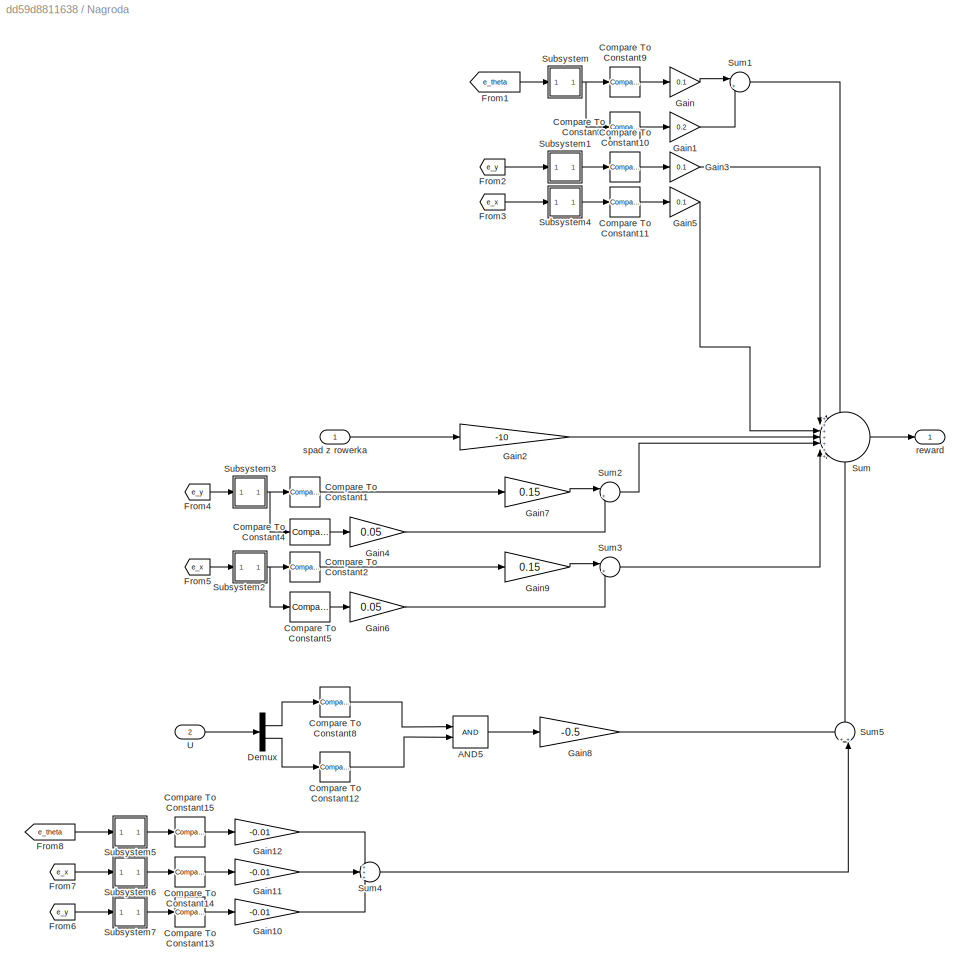
BLOCK [SubSystem] Nagroda
  PortSchema = {"entries":[{"content":{"sides":[{"content":{"connectorIds":["In1"]},"type":"ConnectorPlacement.EquallySpacedRectSide","uuid":"a2f775dc-59c4-4717-86d2-15fa652a3e96"},{"content":{"connectorIds":["Out1"],"side":"RIGHT"},"type":"ConnectorPlacement.EquallySpacedRectSide","uuid":"245f7467-b166-487e-99c9-5f03cfbee592"},{"content":{"side":"TOP"},"type":"ConnectorPlacement.EquallySpacedRectSide","uuid":"9...<+371ch>
BLOCK [Logic] Nagroda/AND5
  AllPortsSameDT = off
  IconShape = distinctive
  OutDataTypeStr = boolean
BLOCK [Reference] Nagroda/Compare To Constant1  REF=simulink/Logic and Bit
Operations/Compare
To Constant
  SourceBlock = simulink/Logic and Bit\nOperations/Compare\nTo Constant
  SourceType = Compare To Constant
BLOCK [Reference] Nagroda/Compare To Constant10  REF=simulink/Logic and Bit
Operations/Compare
To Constant
  SourceBlock = simulink/Logic and Bit\nOperations/Compare\nTo Constant
  SourceType = Compare To Constant
BLOCK [Reference] Nagroda/Compare To Constant11  REF=simulink/Logic and Bit
Operations/Compare
To Constant
  SourceBlock = simulink/Logic and Bit\nOperations/Compare\nTo Constant
  SourceType = Compare To Constant
BLOCK [Reference] Nagroda/Compare To Constant12  REF=simulink/Logic and Bit
Operations/Compare
To Constant
  SourceBlock = simulink/Logic and Bit\nOperations/Compare\nTo Constant
  SourceType = Compare To Constant
BLOCK [Reference] Nagroda/Compare To Constant13  REF=simulink/Logic and Bit
Operations/Compare
To Constant
  SourceBlock = simulink/Logic and Bit\nOperations/Compare\nTo Constant
  SourceType = Compare To Constant
BLOCK [Reference] Nagroda/Compare To Constant14  REF=simulink/Logic and Bit
Operations/Compare
To Constant
  SourceBlock = simulink/Logic and Bit\nOperations/Compare\nTo Constant
  SourceType = Compare To Constant
BLOCK [Reference] Nagroda/Compare To Constant15  REF=simulink/Logic and Bit
Operations/Compare
To Constant
  SourceBlock = simulink/Logic and Bit\nOperations/Compare\nTo Constant
  SourceType = Compare To Constant
BLOCK [Reference] Nagroda/Compare To Constant2  REF=simulink/Logic and Bit
Operations/Compare
To Constant
  SourceBlock = simulink/Logic and Bit\nOperations/Compare\nTo Constant
  SourceType = Compare To Constant
BLOCK [Reference] Nagroda/Compare To Constant3  REF=simulink/Logic and Bit
Operations/Compare
To Constant
  SourceBlock = simulink/Logic and Bit\nOperations/Compare\nTo Constant
  SourceType = Compare To Constant
BLOCK [Reference] Nagroda/Compare To Constant4  REF=simulink/Logic and Bit
Operations/Compare
To Constant
  SourceBlock = simulink/Logic and Bit\nOperations/Compare\nTo Constant
  SourceType = Compare To Constant
BLOCK [Reference] Nagroda/Compare To Constant5  REF=simulink/Logic and Bit
Operations/Compare
To Constant
  SourceBlock = simulink/Logic and Bit\nOperations/Compare\nTo Constant
  SourceType = Compare To Constant
BLOCK [Reference] Nagroda/Compare To Constant8  REF=simulink/Logic and Bit
Operations/Compare
To Constant
  SourceBlock = simulink/Logic and Bit\nOperations/Compare\nTo Constant
  SourceType = Compare To Constant
BLOCK [Reference] Nagroda/Compare To Constant9  REF=simulink/Logic and Bit
Operations/Compare
To Constant
  SourceBlock = simulink/Logic and Bit\nOperations/Compare\nTo Constant
  SourceType = Compare To Constant
BLOCK [Demux] Nagroda/Demux
  Outputs = 2
BLOCK [From] Nagroda/From1
  GotoTag = e_theta
  NameLocation = top
  TagVisibility = global
BLOCK [From] Nagroda/From2
  GotoTag = e_y
  NameLocation = top
  TagVisibility = global
BLOCK [From] Nagroda/From3
  GotoTag = e_x
  TagVisibility = global
BLOCK [From] Nagroda/From4
  GotoTag = e_y
  NameLocation = top
  TagVisibility = global
BLOCK [From] Nagroda/From5
  GotoTag = e_x
  TagVisibility = global
BLOCK [From] Nagroda/From6
  GotoTag = e_y
  NameLocation = top
  TagVisibility = global
BLOCK [From] Nagroda/From7
  GotoTag = e_x
  NameLocation = top
  TagVisibility = global
BLOCK [From] Nagroda/From8
  GotoTag = e_theta
  NameLocation = top
  TagVisibility = global
BLOCK [Gain] Nagroda/Gain
  Gain = 0.1
BLOCK [Gain] Nagroda/Gain1
  Gain = 0.2
BLOCK [Gain] Nagroda/Gain10
  Gain = -0.01
  ParamDataTypeStr = uint32
BLOCK [Gain] Nagroda/Gain11
  Gain = -0.01
  ParamDataTypeStr = uint32
BLOCK [Gain] Nagroda/Gain12
  Gain = -0.01
  ParamDataTypeStr = uint32
BLOCK [Gain] Nagroda/Gain2
  Gain = -10
BLOCK [Gain] Nagroda/Gain3
  Gain = 0.1
BLOCK [Gain] Nagroda/Gain4
  Gain = 0.05
BLOCK [Gain] Nagroda/Gain5
  Gain = 0.1
BLOCK [Gain] Nagroda/Gain6
  Gain = 0.05
BLOCK [Gain] Nagroda/Gain7
  Gain = 0.15
BLOCK [Gain] Nagroda/Gain8
  Gain = -0.5
BLOCK [Gain] Nagroda/Gain9
  Gain = 0.15
BLOCK [SubSystem] Nagroda/Subsystem
BLOCK [Inport] Nagroda/Subsystem/In1
BLOCK [Outport] Nagroda/Subsystem/Out1
BLOCK [Sqrt] Nagroda/Subsystem/Sqrt
BLOCK [Math] Nagroda/Subsystem/Square
  Operator = square
BLOCK [SubSystem] Nagroda/Subsystem1
BLOCK [Inport] Nagroda/Subsystem1/In1
BLOCK [Outport] Nagroda/Subsystem1/Out1
BLOCK [Sqrt] Nagroda/Subsystem1/Sqrt
BLOCK [Math] Nagroda/Subsystem1/Square
  Operator = square
BLOCK [SubSystem] Nagroda/Subsystem2
BLOCK [Inport] Nagroda/Subsystem2/In1
BLOCK [Outport] Nagroda/Subsystem2/Out1
BLOCK [Sqrt] Nagroda/Subsystem2/Sqrt
BLOCK [Math] Nagroda/Subsystem2/Square
  Operator = square
BLOCK [SubSystem] Nagroda/Subsystem3
BLOCK [Inport] Nagroda/Subsystem3/In1
BLOCK [Outport] Nagroda/Subsystem3/Out1
BLOCK [Sqrt] Nagroda/Subsystem3/Sqrt
BLOCK [Math] Nagroda/Subsystem3/Square
  Operator = square
BLOCK [SubSystem] Nagroda/Subsystem4
BLOCK [Inport] Nagroda/Subsystem4/In1
BLOCK [Outport] Nagroda/Subsystem4/Out1
BLOCK [Sqrt] Nagroda/Subsystem4/Sqrt
BLOCK [Math] Nagroda/Subsystem4/Square
  Operator = square
BLOCK [SubSystem] Nagroda/Subsystem5
BLOCK [Inport] Nagroda/Subsystem5/In1
BLOCK [Outport] Nagroda/Subsystem5/Out1
BLOCK [Sqrt] Nagroda/Subsystem5/Sqrt
BLOCK [Math] Nagroda/Subsystem5/Square
  Operator = square
BLOCK [SubSystem] Nagroda/Subsystem6
BLOCK [Inport] Nagroda/Subsystem6/In1
BLOCK [Outport] Nagroda/Subsystem6/Out1
BLOCK [Sqrt] Nagroda/Subsystem6/Sqrt
BLOCK [Math] Nagroda/Subsystem6/Square
  Operator = square
BLOCK [SubSystem] Nagroda/Subsystem7
BLOCK [Inport] Nagroda/Subsystem7/In1
BLOCK [Outport] Nagroda/Subsystem7/Out1
BLOCK [Sqrt] Nagroda/Subsystem7/Sqrt
BLOCK [Math] Nagroda/Subsystem7/Square
  Operator = square
BLOCK [Sum] Nagroda/Sum
  Inputs = +++++++
  OutDataTypeStr = double
BLOCK [Sum] Nagroda/Sum1
  Inputs = |++
  OutDataTypeStr = uint32
BLOCK [Sum] Nagroda/Sum2
  Inputs = |++
BLOCK [Sum] Nagroda/Sum3
  Inputs = |++
BLOCK [Sum] Nagroda/Sum4
  AccumDataTypeStr = uint32
  Inputs = +++
  OutDataTypeStr = uint32
BLOCK [Sum] Nagroda/Sum5
  Inputs = ++|
  NameLocation = right
BLOCK [Inport] Nagroda/U
  Port = 2
BLOCK [Outport] Nagroda/reward
  VectorParamsAs1DForOutWhenUnconnected = off
BLOCK [Inport] Nagroda/spad z rowerka
BLOCK [Constant] Napięcie na lewym silniku
  Commented = on
  NameLocation = left
  Value = 12
BLOCK [Constant] Napięcie na prawym silniku 
  Commented = on
  NameLocation = left
  Value = 70
BLOCK [Scope] Napięcie na wejsciowe silników
  Floating = off
  NumInputPorts = 1
  ScopeSpecificationString = Simulink.scopes.TimeScopeBlockCfg('CurrentConfiguration', extmgr.ConfigurationSet(extmgr.Configuration('Core','General UI',true),extmgr.Configuration('Core','Source UI',true),extmgr.Configuration('Sources','WiredSimulink',true,'DataLoggingVariableName','ScopeData8'),extmgr.Configuration('Visuals','Time Domain',true,'SerializedDisplays',{struct('MinYLimReal','-6.00202','MaxYLimReal','14.00022','YLa...<+1465ch>
BLOCK [SubSystem] Obsrwacja
BLOCK [BusCreator] Obsrwacja/Bus Creator
  DisplayOption = bar
  InheritFromInputs = on
  Inputs = 10
BLOCK [Demux] Obsrwacja/Demux1
  Outputs = 2
BLOCK [Demux] Obsrwacja/Demux10
  Outputs = 2
BLOCK [DiscreteIntegrator] Obsrwacja/Discrete-Time Integrator
  ICPrevOutput = DiscIntNeverNeededParam
  ICPrevScaledInput = DiscIntNeverNeededParam
  InitialConditionSetting = Auto
  SampleTime = 0.05
BLOCK [DiscreteIntegrator] Obsrwacja/Discrete-Time Integrator1
  ICPrevOutput = DiscIntNeverNeededParam
  ICPrevScaledInput = DiscIntNeverNeededParam
  InitialConditionSetting = Auto
  SampleTime = 0.05
BLOCK [DiscreteIntegrator] Obsrwacja/Discrete-Time Integrator2
  ICPrevOutput = DiscIntNeverNeededParam
  ICPrevScaledInput = DiscIntNeverNeededParam
  InitialConditionSetting = Auto
  SampleTime = 0.05
BLOCK [From] Obsrwacja/From46
  GotoTag = e_theta
  NameLocation = top
  TagVisibility = global
BLOCK [From] Obsrwacja/From47
  GotoTag = e_x
  TagVisibility = global
BLOCK [From] Obsrwacja/From48
  GotoTag = e_y
  NameLocation = top
  TagVisibility = global
BLOCK [From] Obsrwacja/From49
  GotoTag = e_theta
  NameLocation = top
  TagVisibility = global
BLOCK [From] Obsrwacja/From50
  GotoTag = e_x
  TagVisibility = global
BLOCK [From] Obsrwacja/From51
  GotoTag = e_y
  NameLocation = top
  TagVisibility = global
BLOCK [Outport] Obsrwacja/Out1
BLOCK [Inport] Obsrwacja/U_NN
BLOCK [Inport] Obsrwacja/U_dc
  NameLocation = top
  Port = 2
BLOCK [Constant] Prędkość Lewego wału
  Commented = on
  NameLocation = left
  Value = 0
BLOCK [Constant] Prędkość max
  NameLocation = left
  Value = 161.77*2*pi
BLOCK [Constant] Prędkość prawego wału
  Commented = on
  NameLocation = left
  Value = 75
BLOCK [Reference] RL Agent  REF=rllib/RL Agent
  SourceBlock = rllib/RL Agent
  SourceType = RL Agent
BLOCK [Scope] Scope
  Floating = off
  IOType = viewer
  NumInputPorts = 1
  ScopeSpecificationString = Simulink.scopes.TimeScopeBlockCfg('CurrentConfiguration', extmgr.ConfigurationSet(extmgr.Configuration('Core','General UI',true),extmgr.Configuration('Core','Source UI',true),extmgr.Configuration('Sources','WiredSimulink',true,'DataLoggingVariableName','ScopeData1'),extmgr.Configuration('Visuals','Time Domain',true,'SerializedDisplays',{struct('MinYLimReal','2.05533','MaxYLimReal','5.41332','YLabe...<+3044ch>
BLOCK [Scope] Scope1
  Floating = off
  NumInputPorts = 1
  ScopeSpecificationString = Simulink.scopes.TimeScopeBlockCfg('CurrentConfiguration', extmgr.ConfigurationSet(extmgr.Configuration('Core','General UI',true),extmgr.Configuration('Core','Source UI',true),extmgr.Configuration('Sources','WiredSimulink',true,'DataLoggingVariableName','ScopeData7'),extmgr.Configuration('Visuals','Time Domain',true,'SerializedDisplays',{struct('MinYLimReal','-7.02584','MaxYLimReal','2.19571','YLab...<+1494ch>
BLOCK [Scope] Scope10
  Floating = off
  NumInputPorts = 1
  ScopeSpecificationString = Simulink.scopes.TimeScopeBlockCfg('CurrentConfiguration', extmgr.ConfigurationSet(extmgr.Configuration('Core','General UI',true),extmgr.Configuration('Core','Source UI',true),extmgr.Configuration('Sources','WiredSimulink',true,'DataLoggingVariableName','ScopeData1'),extmgr.Configuration('Visuals','Time Domain',true,'SerializedDisplays',{struct('MinYLimReal','-0.76769','MaxYLimReal','6.90924','YLab...<+1525ch>
BLOCK [Scope] Scope11
  Floating = off
  NumInputPorts = 1
  ScopeSpecificationString = Simulink.scopes.TimeScopeBlockCfg('CurrentConfiguration', extmgr.ConfigurationSet(extmgr.Configuration('Core','General UI',true),extmgr.Configuration('Core','Source UI',true),extmgr.Configuration('Sources','WiredSimulink',true,'DataLoggingVariableName','ScopeData7'),extmgr.Configuration('Visuals','Time Domain',true,'SerializedDisplays',{struct('MinYLimReal','-0.23934','MaxYLimReal','0.23817','YLab...<+1502ch>
BLOCK [Scope] Scope12
  Floating = off
  NumInputPorts = 1
  ScopeSpecificationString = Simulink.scopes.TimeScopeBlockCfg('CurrentConfiguration', extmgr.ConfigurationSet(extmgr.Configuration('Core','General UI',true),extmgr.Configuration('Core','Source UI',true),extmgr.Configuration('Sources','WiredSimulink',true,'DataLoggingVariableName','ScopeData8'),extmgr.Configuration('Visuals','Time Domain',true,'SerializedDisplays',{struct('MinYLimReal','-0.0125','MaxYLimReal','0.1125','YLabel...<+1604ch>
BLOCK [Scope] Scope17
  Floating = off
  NameLocation = right
  NumInputPorts = 1
  ScopeSpecificationString = Simulink.scopes.TimeScopeBlockCfg('CurrentConfiguration', extmgr.ConfigurationSet(extmgr.Configuration('Core','General UI',true),extmgr.Configuration('Core','Source UI',true),extmgr.Configuration('Sources','WiredSimulink',true,'DataLoggingVariableName','ScopeData1'),extmgr.Configuration('Visuals','Time Domain',true,'SerializedDisplays',{struct('MinYLimReal','-2.83473','MaxYLimReal','3.59922','YLab...<+1463ch>
BLOCK [Scope] Scope2
  Floating = off
  NumInputPorts = 1
  ScopeSpecificationString = Simulink.scopes.TimeScopeBlockCfg('CurrentConfiguration', extmgr.ConfigurationSet(extmgr.Configuration('Core','General UI',true),extmgr.Configuration('Core','Source UI',true),extmgr.Configuration('Sources','WiredSimulink',true,'DataLoggingVariableName','ScopeData10'),extmgr.Configuration('Visuals','Time Domain',true,'SerializedDisplays',{struct('MinYLimReal','-0.01608','MaxYLimReal','0.01608','YLa...<+1495ch>
BLOCK [Scope] Scope20
  Floating = off
  NumInputPorts = 1
  ScopeSpecificationString = Simulink.scopes.TimeScopeBlockCfg('CurrentConfiguration', extmgr.ConfigurationSet(extmgr.Configuration('Core','General UI',true),extmgr.Configuration('Core','Source UI',true),extmgr.Configuration('Sources','WiredSimulink',true,'DataLoggingVariableName','ScopeData2'),extmgr.Configuration('Visuals','Time Domain',true,'SerializedDisplays',{struct('MinYLimReal','-0.01395','MaxYLimReal','0.11266','YLab...<+1519ch>
BLOCK [Scope] Scope24
  Floating = off
  NumInputPorts = 3
  ScopeSpecificationString = Simulink.scopes.TimeScopeBlockCfg('CurrentConfiguration', extmgr.ConfigurationSet(extmgr.Configuration('Core','General UI',true,'FigureColor',[1 1 1]),extmgr.Configuration('Core','Source UI',true),extmgr.Configuration('Sources','WiredSimulink',true,'DataLoggingVariableName','ScopeData5'),extmgr.Configuration('Visuals','Time Domain',true,'SerializedDisplays',{struct('MinYLimReal','-0.06798','MaxYLi...<+1453ch>
BLOCK [Scope] Scope3
  Floating = off
  NumInputPorts = 1
  ScopeSpecificationString = Simulink.scopes.TimeScopeBlockCfg('CurrentConfiguration', extmgr.ConfigurationSet(extmgr.Configuration('Core','General UI',true,'FigureColor',[1 1 1]),extmgr.Configuration('Core','Source UI',true),extmgr.Configuration('Sources','WiredSimulink',true,'DataLoggingVariableName','ScopeData1'),extmgr.Configuration('Visuals','Time Domain',true,'SerializedDisplays',{struct('MinYLimReal','-0.0233','MaxYLim...<+1439ch>
BLOCK [Scope] Scope4
  Floating = off
  NumInputPorts = 3
  ScopeSpecificationString = Simulink.scopes.TimeScopeBlockCfg('CurrentConfiguration', extmgr.ConfigurationSet(extmgr.Configuration('Core','General UI',true,'FigureColor',[1 1 1]),extmgr.Configuration('Core','Source UI',true),extmgr.Configuration('Sources','WiredSimulink',true,'DataLoggingVariableName','ScopeData1'),extmgr.Configuration('Visuals','Time Domain',true,'SerializedDisplays',{struct('MinYLimReal','-1.42626','MaxYLi...<+1455ch>
BLOCK [Scope] Scope5
  Floating = off
  NumInputPorts = 1
  ScopeSpecificationString = Simulink.scopes.TimeScopeBlockCfg('CurrentConfiguration', extmgr.ConfigurationSet(extmgr.Configuration('Core','General UI',true),extmgr.Configuration('Core','Source UI',true),extmgr.Configuration('Sources','WiredSimulink',true,'DataLoggingVariableName','ScopeData2'),extmgr.Configuration('Visuals','Time Domain',true,'SerializedDisplays',{struct('MinYLimReal','-0.1626','MaxYLimReal','1.46343','YLabe...<+1502ch>
BLOCK [Scope] Scope6
  Floating = off
  NumInputPorts = 1
  ScopeSpecificationString = Simulink.scopes.TimeScopeBlockCfg('CurrentConfiguration', extmgr.ConfigurationSet(extmgr.Configuration('Core','General UI',true),extmgr.Configuration('Core','Source UI',true),extmgr.Configuration('Sources','WiredSimulink',true,'DataLoggingVariableName','ScopeData1'),extmgr.Configuration('Visuals','Time Domain',true,'SerializedDisplays',{struct('MinYLimReal','-0.19003','MaxYLimReal','9.36824','YLab...<+1674ch>
BLOCK [Scope] Scope7
  Floating = off
  NumInputPorts = 1
  ScopeSpecificationString = Simulink.scopes.TimeScopeBlockCfg('CurrentConfiguration', extmgr.ConfigurationSet(extmgr.Configuration('Core','General UI',true),extmgr.Configuration('Core','Source UI',true),extmgr.Configuration('Sources','WiredSimulink',true,'DataLoggingVariableName','ScopeData1'),extmgr.Configuration('Visuals','Time Domain',true,'SerializedDisplays',{struct('MinYLimReal','0.17128','MaxYLimReal','0.45111','YLabe...<+1498ch>
BLOCK [Scope] Scope8
  Floating = off
  NumInputPorts = 1
  ScopeSpecificationString = Simulink.scopes.TimeScopeBlockCfg('CurrentConfiguration', extmgr.ConfigurationSet(extmgr.Configuration('Core','General UI',true),extmgr.Configuration('Core','Source UI',true),extmgr.Configuration('Sources','WiredSimulink',true,'DataLoggingVariableName','ScopeData1'),extmgr.Configuration('Visuals','Time Domain',true,'SerializedDisplays',{struct('MinYLimReal','-0.02162','MaxYLimReal','0.2946','YLabe...<+1553ch>
BLOCK [Scope] Scope9
  Floating = off
  NumInputPorts = 2
  ScopeSpecificationString = Simulink.scopes.TimeScopeBlockCfg('CurrentConfiguration', extmgr.ConfigurationSet(extmgr.Configuration('Core','General UI',true,'FigureColor',[1 1 1]),extmgr.Configuration('Core','Source UI',true),extmgr.Configuration('Sources','WiredSimulink',true,'DataLoggingVariableName','ScopeData6'),extmgr.Configuration('Visuals','Time Domain',true,'SerializedDisplays',{struct('MinYLimReal','-0.4921','MaxYLim...<+1429ch>
BLOCK [SubSystem] Stałe
BLOCK [Goto] Stałe/Goto
  GotoTag = m
  TagVisibility = global
BLOCK [Goto] Stałe/Goto1
  GotoTag = b
  TagVisibility = global
BLOCK [Goto] Stałe/Goto2
  GotoTag = r
  TagVisibility = global
BLOCK [Goto] Stałe/Goto3
  GotoTag = xi
  TagVisibility = global
BLOCK [Goto] Stałe/Goto4
  GotoTag = Ik
  TagVisibility = global
BLOCK [Goto] Stałe/Goto5
  GotoTag = In
  TagVisibility = global
BLOCK [Goto] Stałe/Goto6
  GotoTag = xi_m
  TagVisibility = global
BLOCK [Goto] Stałe/Goto7
  GotoTag = ng
  TagVisibility = global
BLOCK [Goto] Stałe/Goto8
  GotoTag = R
  TagVisibility = global
BLOCK [Goto] Stałe/Goto9
  GotoTag = Km
  TagVisibility = global
BLOCK [Constant] Stałe/Ik  - bezwładność koła [kg·m²]
  NameLocation = left
  Value = 1.014*(10^(-5))
BLOCK [Constant] Stałe/In  - bezwładność wirników silnika [kg·m²]
  NameLocation = left
  Value = 4.22 * 1e-3 * 1e-6
BLOCK [Constant] Stałe/Km - stała maszynowa silników [[N·m//A]]
  NameLocation = left
  Value = 0.855
BLOCK [Constant] Stałe/R - rezystancja uzwojeń silników [Ω]
  NameLocation = left
  Value = 3.78
BLOCK [Constant] Stałe/b  - 2x połowa odległości między kołami [r]
  NameLocation = left
  Value = 0.066
BLOCK [Constant] Stałe/m  - masa platformy [kg]
  NameLocation = left
  Value = 0.6
BLOCK [Constant] Stałe/ng  - przełożenie przekładni redukcyjnej  [-] 
  NameLocation = left
  Value = 1/2
BLOCK [Constant] Stałe/r  - promień koła [m]
  NameLocation = left
  Value = 0.026
BLOCK [Constant] Stałe/xi  - tłumienie w łożyskach kół [N·m·s]
  NameLocation = left
  Value = 0.1
BLOCK [Constant] Stałe/xi_m  - tłumienie w łożyskach silników [N·m·s]1
  NameLocation = left
  Value = 1.85 *1e-8
BLOCK [SubSystem] Subsystem
  Commented = on
BLOCK [Derivative] Subsystem/Derivative
  Commented = on
BLOCK [From] Subsystem/From24
  Commented = on
  GotoTag = k1
  TagVisibility = global
BLOCK [From] Subsystem/From25
  Commented = on
  GotoTag = k2
  TagVisibility = global
BLOCK [From] Subsystem/From26
  Commented = on
  GotoTag = k3
  TagVisibility = global
BLOCK [Inport] Subsystem/In1
BLOCK [Inport] Subsystem/In2
  Port = 2
BLOCK [Inport] Subsystem/In7
  Port = 7
BLOCK [SubSystem] Subsystem/MATLAB Function11
  Commented = on
  ErrorFcn = Stateflow.Translate.translate
  PermitHierarchicalResolution = ExplicitOnly
  SFBlockType = MATLAB Function
  TreatAsAtomicUnit = on
BLOCK [Demux] Subsystem/MATLAB Function11/ Demux 
  Outputs = 1
BLOCK [S-Function] Subsystem/MATLAB Function11/ SFunction 
  EnableBusSupport = on
  FunctionName = sf_sfun
  PortCounts = [3 6]
  SFcnIsStateOwnerBlock = off
  SFunctionDeploymentMode = off
  Tag = Stateflow S-Function 12
BLOCK [Terminator] Subsystem/MATLAB Function11/ Terminator 
BLOCK [Inport] Subsystem/MATLAB Function11/dt
  Port = 3
BLOCK [Inport] Subsystem/MATLAB Function11/path
  Port = 2
BLOCK [Inport] Subsystem/MATLAB Function11/t
BLOCK [Outport] Subsystem/MATLAB Function11/thetar
  Port = 3
BLOCK [Outport] Subsystem/MATLAB Function11/vr
  Port = 4
BLOCK [Outport] Subsystem/MATLAB Function11/wr
  Port = 5
BLOCK [Outport] Subsystem/MATLAB Function11/xr
BLOCK [Outport] Subsystem/MATLAB Function11/yr
  Port = 2
BLOCK [SubSystem] Subsystem/MATLAB Function12
  Commented = on
  ErrorFcn = Stateflow.Translate.translate
  PermitHierarchicalResolution = ExplicitOnly
  SFBlockType = MATLAB Function
  TreatAsAtomicUnit = on
BLOCK [Demux] Subsystem/MATLAB Function12/ Demux 
  Outputs = 1
BLOCK [S-Function] Subsystem/MATLAB Function12/ SFunction 
  EnableBusSupport = on
  FunctionName = sf_sfun
  PortCounts = [11 2]
  SFcnIsStateOwnerBlock = off
  SFunctionDeploymentMode = off
  Tag = Stateflow S-Function 13
BLOCK [Terminator] Subsystem/MATLAB Function12/ Terminator 
BLOCK [Inport] Subsystem/MATLAB Function12/k1
  Port = 9
BLOCK [Inport] Subsystem/MATLAB Function12/k2
  Port = 10
BLOCK [Inport] Subsystem/MATLAB Function12/k3
  Port = 11
BLOCK [Inport] Subsystem/MATLAB Function12/theta
BLOCK [Inport] Subsystem/MATLAB Function12/thetar
  Port = 4
BLOCK [Outport] Subsystem/MATLAB Function12/u_dc
BLOCK [Inport] Subsystem/MATLAB Function12/vr
  Port = 7
BLOCK [Inport] Subsystem/MATLAB Function12/wr
  Port = 8
BLOCK [Inport] Subsystem/MATLAB Function12/x
  Port = 2
BLOCK [Inport] Subsystem/MATLAB Function12/xr
  Port = 5
BLOCK [Inport] Subsystem/MATLAB Function12/y
  Port = 3
BLOCK [Inport] Subsystem/MATLAB Function12/yr
  Port = 6
BLOCK [SubSystem] Subsystem/MATLAB Function13
  Commented = on
  ErrorFcn = Stateflow.Translate.translate
  PermitHierarchicalResolution = ExplicitOnly
  SFBlockType = MATLAB Function
  TreatAsAtomicUnit = on
BLOCK [Demux] Subsystem/MATLAB Function13/ Demux 
  Outputs = 1
BLOCK [Ground] Subsystem/MATLAB Function13/ Ground 
BLOCK [S-Function] Subsystem/MATLAB Function13/ SFunction 
  EnableBusSupport = on
  FunctionName = sf_sfun
  PortCounts = [1 2]
  SFcnIsStateOwnerBlock = off
  SFunctionDeploymentMode = off
  Tag = Stateflow S-Function 14
BLOCK [Terminator] Subsystem/MATLAB Function13/ Terminator 
BLOCK [Outport] Subsystem/MATLAB Function13/path
BLOCK [SubSystem] Subsystem/MATLAB Function14
  Commented = on
  ErrorFcn = Stateflow.Translate.translate
  PermitHierarchicalResolution = ExplicitOnly
  SFBlockType = MATLAB Function
  TreatAsAtomicUnit = on
BLOCK [Demux] Subsystem/MATLAB Function14/ Demux 
  Outputs = 1
BLOCK [Ground] Subsystem/MATLAB Function14/ Ground 
BLOCK [S-Function] Subsystem/MATLAB Function14/ SFunction 
  EnableBusSupport = on
  FunctionName = sf_sfun
  PortCounts = [1 2]
  SFcnIsStateOwnerBlock = off
  SFunctionDeploymentMode = off
  Tag = Stateflow S-Function 15
BLOCK [Terminator] Subsystem/MATLAB Function14/ Terminator 
BLOCK [Outport] Subsystem/MATLAB Function14/path
BLOCK [SubSystem] Subsystem/MATLAB Function15
  Commented = on
  ErrorFcn = Stateflow.Translate.translate
  PermitHierarchicalResolution = ExplicitOnly
  SFBlockType = MATLAB Function
  TreatAsAtomicUnit = on
BLOCK [Demux] Subsystem/MATLAB Function15/ Demux 
  Outputs = 1
BLOCK [Ground] Subsystem/MATLAB Function15/ Ground 
BLOCK [S-Function] Subsystem/MATLAB Function15/ SFunction 
  EnableBusSupport = on
  FunctionName = sf_sfun
  PortCounts = [1 2]
  SFcnIsStateOwnerBlock = off
  SFunctionDeploymentMode = off
  Tag = Stateflow S-Function 16
BLOCK [Terminator] Subsystem/MATLAB Function15/ Terminator 
BLOCK [Outport] Subsystem/MATLAB Function15/path
BLOCK [ManualSwitch] Subsystem/Manual Switch5
  Commented = on
  CurrentSetting = 0
BLOCK [ManualSwitch] Subsystem/Manual Switch6
  Commented = on
  CurrentSetting = 0
BLOCK [Record] Subsystem/XY Graph1
  Commented = on
  CompatibilityTag = XY
  FileSettingsInternal = {"entries":[{"content":{"excelSettings":{"content":{},"type":"Streamout.ExcelSettings"}},"type":"Streamout.FileSettingStorage","uuid":""}],"packageUris":["http:\/\/schema.mathworks.com\/mf0\/streamout_blocks\/R2020a"],"version":"1.0"}  <repeated x7 — deduplicated; at blocks: XY Graph1, XY Graph, XY Graph2, XY Graph3, XY Graph4, XY PI a NN>
  Layout = [1 1]
  SignalsInternal = {"entries":[{"content":{},"type":"RecordBlkView.InputSignals","uuid":""}],"packageUris":["http:\/\/schema.mathworks.com\/mf0\/streamout_blocks\/R2020a"],"version":"1.0"}
  VisualizationBindings = {"xyplotplugin":{"info":[{"series":[],"subplotID":1}]}}
BLOCK [Inport] Subsystem/t
  Port = 6
BLOCK [Inport] Subsystem/theta
  Port = 3
BLOCK [Outport] Subsystem/u_dc
BLOCK [Inport] Subsystem/x
  Port = 4
BLOCK [Inport] Subsystem/y
  Port = 5
BLOCK [SubSystem] Subsystem1
  Commented = on
BLOCK [Inport] Subsystem1/+
BLOCK [Inport] Subsystem1/-
  Port = 2
BLOCK [Demux] Subsystem1/Demux
  Outputs = 2
BLOCK [Demux] Subsystem1/Demux4
  Outputs = 2
BLOCK [Mux] Subsystem1/Mux7
  DisplayOption = bar
  Inputs = 2
BLOCK [Outport] Subsystem1/Out
BLOCK [Sum] Subsystem1/Sum5
  Inputs = -+|
BLOCK [Sum] Subsystem1/Sum6
  Inputs = -+|
BLOCK [SubSystem] Subsystem10
BLOCK [Inport] Subsystem10/+
BLOCK [Inport] Subsystem10/-
  Port = 2
BLOCK [Demux] Subsystem10/Demux
  Outputs = 2
BLOCK [Demux] Subsystem10/Demux4
  Outputs = 2
BLOCK [Mux] Subsystem10/Mux7
  DisplayOption = bar
  Inputs = 2
BLOCK [Outport] Subsystem10/Out
BLOCK [Sum] Subsystem10/Sum5
  Inputs = -+|
BLOCK [Sum] Subsystem10/Sum6
  Inputs = -+|
BLOCK [SubSystem] Subsystem2
  PortSchema = {"entries":[{"content":{"sides":[{"content":{"connectorIds":["In1"]},"type":"ConnectorPlacement.EquallySpacedRectSide","uuid":"f81facd5-8dce-4a5d-a044-cb75bd1df10e"},{"content":{"connectorIds":["Out1"],"side":"RIGHT"},"type":"ConnectorPlacement.EquallySpacedRectSide","uuid":"361c4912-9b0e-4ff4-a4c3-0f951cd83b7e"},{"content":{"connectorIds":["In2"],"side":"TOP"},"type":"ConnectorPlacement.EquallySp...<+245ch>
BLOCK [Inport] Subsystem2/+
BLOCK [Inport] Subsystem2/-
  Port = 2
BLOCK [Demux] Subsystem2/Demux
  Outputs = 2
BLOCK [Demux] Subsystem2/Demux4
  Outputs = 2
BLOCK [Mux] Subsystem2/Mux7
  DisplayOption = bar
  Inputs = 2
BLOCK [Outport] Subsystem2/Out
BLOCK [Sum] Subsystem2/Sum5
  Inputs = -+|
BLOCK [Sum] Subsystem2/Sum6
  Inputs = -+|
BLOCK [SubSystem] Subsystem3
BLOCK [Inport] Subsystem3/+
BLOCK [Inport] Subsystem3/-
  Port = 2
BLOCK [Demux] Subsystem3/Demux
  Outputs = 3
BLOCK [Demux] Subsystem3/Demux4
  Outputs = 3
BLOCK [Mux] Subsystem3/Mux7
  DisplayOption = bar
  Inputs = 3
BLOCK [Outport] Subsystem3/Out
BLOCK [Sum] Subsystem3/Sum1
  Inputs = -+|
BLOCK [Sum] Subsystem3/Sum5
  Inputs = -+|
BLOCK [Sum] Subsystem3/Sum6
  Inputs = -+|
BLOCK [SubSystem] Subsystem4
BLOCK [Inport] Subsystem4/+
BLOCK [Inport] Subsystem4/-1
  Port = 2
BLOCK [Demux] Subsystem4/Demux
  Outputs = 3
BLOCK [Demux] Subsystem4/Demux4
  Outputs = 3
BLOCK [Mux] Subsystem4/Mux7
  DisplayOption = bar
  Inputs = 3
BLOCK [Outport] Subsystem4/Out
BLOCK [Sum] Subsystem4/Sum1
  Inputs = -+|
BLOCK [Sum] Subsystem4/Sum5
  Inputs = -+|
BLOCK [Sum] Subsystem4/Sum6
  Inputs = -+|
BLOCK [SubSystem] Subsystem5
BLOCK [Inport] Subsystem5/+
BLOCK [Inport] Subsystem5/-
  Port = 2
BLOCK [Demux] Subsystem5/Demux
  Outputs = 2
BLOCK [Demux] Subsystem5/Demux4
  Outputs = 2
BLOCK [Mux] Subsystem5/Mux7
  DisplayOption = bar
  Inputs = 2
BLOCK [Outport] Subsystem5/Out
BLOCK [Sum] Subsystem5/Sum5
  Inputs = -+|
BLOCK [Sum] Subsystem5/Sum6
  Inputs = -+|
BLOCK [SubSystem] Subsystem6
BLOCK [Inport] Subsystem6/+
BLOCK [Inport] Subsystem6/-1
  Port = 2
BLOCK [Demux] Subsystem6/Demux
  Outputs = 3
BLOCK [Demux] Subsystem6/Demux4
  Outputs = 3
BLOCK [Mux] Subsystem6/Mux7
  DisplayOption = bar
  Inputs = 3
BLOCK [Outport] Subsystem6/Out
BLOCK [Sum] Subsystem6/Sum1
  Inputs = -+|
BLOCK [Sum] Subsystem6/Sum5
  Inputs = -+|
BLOCK [Sum] Subsystem6/Sum6
  Inputs = -+|
BLOCK [SubSystem] Subsystem7
BLOCK [Inport] Subsystem7/+
BLOCK [Inport] Subsystem7/-
  Port = 2
BLOCK [Demux] Subsystem7/Demux
  Outputs = 3
BLOCK [Demux] Subsystem7/Demux4
  Outputs = 3
BLOCK [Mux] Subsystem7/Mux7
  DisplayOption = bar
  Inputs = 3
BLOCK [Outport] Subsystem7/Out
BLOCK [Sum] Subsystem7/Sum1
  Inputs = -+|
BLOCK [Sum] Subsystem7/Sum5
  Inputs = -+|
BLOCK [Sum] Subsystem7/Sum6
  Inputs = -+|
BLOCK [SubSystem] Subsystem8
BLOCK [Inport] Subsystem8/+
BLOCK [Inport] Subsystem8/-1
  Port = 2
BLOCK [Demux] Subsystem8/Demux
  Outputs = 3
BLOCK [Demux] Subsystem8/Demux4
  Outputs = 3
BLOCK [Mux] Subsystem8/Mux7
  DisplayOption = bar
  Inputs = 3
BLOCK [Outport] Subsystem8/Out
BLOCK [Sum] Subsystem8/Sum1
  Inputs = -+|
BLOCK [Sum] Subsystem8/Sum5
  Inputs = -+|
BLOCK [Sum] Subsystem8/Sum6
  Inputs = -+|
BLOCK [SubSystem] Subsystem9
BLOCK [Inport] Subsystem9/+
BLOCK [Inport] Subsystem9/-
  Port = 2
BLOCK [Demux] Subsystem9/Demux
  Outputs = 3
BLOCK [Demux] Subsystem9/Demux4
  Outputs = 3
BLOCK [Mux] Subsystem9/Mux7
  DisplayOption = bar
  Inputs = 3
BLOCK [Outport] Subsystem9/Out
BLOCK [Sum] Subsystem9/Sum1
  Inputs = -+|
BLOCK [Sum] Subsystem9/Sum5
  Inputs = -+|
BLOCK [Sum] Subsystem9/Sum6
  Inputs = -+|
BLOCK [Sum] Sum
  Inputs = |++
BLOCK [Sum] Sum1
  Inputs = |++
BLOCK [Sum] Sum2
  Inputs = ++|
BLOCK [TransferFcn] Transfer Fcn
  Commented = on
  Denominator = [0.094 1]
  Numerator = [9.4]
BLOCK [TransferFcn] Transfer Fcn1
  Denominator = [0.016 1]
BLOCK [TransferFcn] Transfer Fcn2
  Denominator = [0.016 1]
BLOCK [TransferFcn] Transfer Fcn3
  Commented = on
  Denominator = [0.094 1]
  Numerator = [9.4]
BLOCK [TransferFcn] Transfer Fcn4
  Commented = on
  Denominator = [0.016 1]
BLOCK [TransferFcn] Transfer Fcn5
  Commented = on
  Denominator = [0.016 1]
BLOCK [Scope] U_m_e
  Floating = off
  NumInputPorts = 1
  ScopeSpecificationString = Simulink.scopes.TimeScopeBlockCfg('CurrentConfiguration', extmgr.ConfigurationSet(extmgr.Configuration('Core','General UI',true),extmgr.Configuration('Core','Source UI',true),extmgr.Configuration('Sources','WiredSimulink',true,'DataLoggingVariableName','ScopeData9'),extmgr.Configuration('Visuals','Time Domain',true,'SerializedDisplays',{struct('MinYLimReal','-0.61452','MaxYLimReal','0.7843','YLabe...<+1487ch>
BLOCK [Record] XY Graph
  CompatibilityTag = XY
  Layout = [1 1]
  SignalsInternal = {"entries":[{"content":{"signals":[{"content":{"blockPath":[],"dimensions":[1],"domain":"","lineColor":"#edb120","lineWidth":2,"plots":[ 1 ],"port":1,"sid":[""],"signalID":1,"signalName":"x_k"},"type":"RecordBlkView.Signal","uuid":""},{"content":{"blockPath":[],"dimensions":[1],"domain":"","lineColor":"#7e2f8e","lineWidth":2,"plots":[ 1 ],"port":2,"sid":[""],"signalID":2,"signalName":"y_k"},"type"...<+576ch>
  VisualizationBindings = {"xyplotplugin":{"info":[{"series":[{"bindingParametersList":[{"parameter":"X-Axis","signalID":1,"signalName":"x_k"},{"parameter":"Y-Axis","signalID":2,"signalName":"y_k"}],"seriesID":0},{"bindingParametersList":[{"parameter":"X-Axis","signalID":3,"signalName":"x"},{"parameter":"Y-Axis","signalID":4,"signalName":"y"}],"seriesID":1}],"subplotID":1}]}}
BLOCK [Record] XY Graph1
  CompatibilityTag = XY
  Layout = [1 1]
  SignalsInternal = {"entries":[{"content":{"signals":[{"content":{"blockPath":[],"dimensions":[1],"domain":"","lineColor":"#fe330a","lineWidth":2,"plots":[ 1 ],"port":1,"sid":[""],"signalID":1,"signalName":"From33"},"type":"RecordBlkView.Signal","uuid":""},{"content":{"blockPath":[],"dimensions":[1],"domain":"","lineColor":"#22b573","lineWidth":2,"plots":[ 1 ],"port":2,"sid":[""],"signalID":2,"signalName":"From34"},...<+186ch>
  VisualizationBindings = {"xyplotplugin":{"info":[{"series":[{"bindingParametersList":[{"parameter":"X-Axis","signalID":1,"signalName":"From33"},{"parameter":"Y-Axis","signalID":2,"signalName":"From34"}],"seriesID":0}],"subplotID":1}]}}
BLOCK [Record] XY Graph2
  CompatibilityTag = XY
  Layout = [1 1]
  SignalsInternal = {"entries":[{"content":{"signals":[{"content":{"blockPath":[],"dimensions":[1],"domain":"","lineColor":"#d95319","lineWidth":2,"plots":[ 1 ],"port":1,"sid":[""],"signalID":1,"signalName":"x_k"},"type":"RecordBlkView.Signal","uuid":""},{"content":{"blockPath":[],"dimensions":[1],"domain":"","lineColor":"#edb120","lineWidth":2,"plots":[ 1 ],"port":2,"sid":[""],"signalID":2,"signalName":"y_k"},"type"...<+578ch>
  VisualizationBindings = {"xyplotplugin":{"info":[{"series":[{"bindingParametersList":[{"parameter":"X-Axis","signalID":3,"signalName":"xr"},{"parameter":"Y-Axis","signalID":4,"signalName":"yr"}],"seriesID":0},{"bindingParametersList":[{"parameter":"X-Axis","signalID":1,"signalName":"x_k"},{"parameter":"Y-Axis","signalID":2,"signalName":"y_k"}],"seriesID":1}],"subplotID":1}]}}
BLOCK [Record] XY Graph3
  CompatibilityTag = XY
  Layout = [1 1]
  SignalsInternal = {"entries":[{"content":{"signals":[{"content":{"blockPath":[],"dimensions":[1],"domain":"","lineColor":"#22b573","lineWidth":2,"plots":[ 1 ],"port":1,"sid":[""],"signalID":1,"signalName":"x"},"type":"RecordBlkView.Signal","uuid":""},{"content":{"blockPath":[],"dimensions":[1],"domain":"","lineColor":"#22b573","lineWidth":2,"plots":[ 1 ],"port":2,"sid":[""],"signalID":2,"signalName":"y"},"type":"Re...<+574ch>
  VisualizationBindings = {"xyplotplugin":{"info":[{"series":[{"bindingParametersList":[{"parameter":"X-Axis","signalID":1,"signalName":"x"},{"parameter":"Y-Axis","signalID":2,"signalName":"y"}],"seriesID":0},{"bindingParametersList":[{"parameter":"X-Axis","signalID":3,"signalName":"xr"},{"parameter":"Y-Axis","signalID":4,"signalName":"yr"}],"seriesID":1}],"subplotID":1}]}}
BLOCK [Record] XY Graph4
  CompatibilityTag = XY
  Layout = [1 1]
  SignalsInternal = {"entries":[{"content":{"signals":[{"content":{"blockPath":[],"dimensions":[1],"domain":"","lineColor":"#b746ff","lineWidth":2,"plots":[ 1 ],"port":1,"sid":[""],"signalID":1,"signalName":"Integrator"},"type":"RecordBlkView.Signal","uuid":""},{"content":{"blockPath":[],"dimensions":[1],"domain":"","lineColor":"#64d413","lineWidth":2,"plots":[ 1 ],"port":2,"sid":[""],"signalID":2,"signalName":"Integ...<+195ch>
  VisualizationBindings = {"xyplotplugin":{"info":[{"series":[{"bindingParametersList":[{"parameter":"X-Axis","signalID":1,"signalName":"Integrator"},{"parameter":"Y-Axis","signalID":2,"signalName":"Integrator1"}],"seriesID":0}],"subplotID":1}]}}
BLOCK [Record] XY PI a NN
  CompatibilityTag = XY
  Layout = [1 1]
  SignalsInternal = {"entries":[{"content":{"signals":[{"content":{"blockPath":[],"dimensions":[1],"domain":"","lineColor":"#22b573","lineWidth":2,"plots":[ 1 ],"port":1,"sid":[""],"signalID":1,"signalName":"xr"},"type":"RecordBlkView.Signal","uuid":""},{"content":{"blockPath":[],"dimensions":[1],"domain":"","lineColor":"#22b573","lineWidth":2,"plots":[ 1 ],"port":2,"sid":[""],"signalID":2,"signalName":"xy"},"type":"...<+580ch>
  VisualizationBindings = {"xyplotplugin":{"info":[{"series":[{"bindingParametersList":[{"parameter":"X-Axis","signalID":1,"signalName":"xr"},{"parameter":"Y-Axis","signalID":2,"signalName":"xy"}],"seriesID":0},{"bindingParametersList":[{"parameter":"X-Axis","signalID":3,"signalName":"x_NN"},{"parameter":"Y-Axis","signalID":4,"signalName":"y_NN"}],"seriesID":1}],"subplotID":1}]}}
BLOCK [Constant] prędkość kątowa [rad//s]
  NameLocation = left
  Value = 0
BLOCK [Constant] prędkość liniowa [m//s] (max=0.0151)
  NameLocation = left
  Value = 0.1
ANNOTATION (root): $\Omega_{dsF}$
ANNOTATION (root): Blok sterowania prędkości
ANNOTATION (root): Błąd pozycji pomiędzy modelem kinematyki a GSR
ANNOTATION (root): Błąd pozycji pomiędzy modelem kinematyki a pełnym
ANNOTATION (root): Błąd pozycji pomiędzy pełnym modelem a GSR
ANNOTATION (root): Błąd prędkości pomiędzy modelem kinematyki a pełnym
ANNOTATION (root): FIltry
ANNOTATION (root): Kinematyczny steownik platformy
ANNOTATION (root): Roznica napięć pomiędzy sterowaniem kinematyki a pełnego modelu
ANNOTATION (root): Wykresy XY
ANNOTATION (root): parametry ASP
LINE Clock1:1 -> MATLAB Function:1
NET Clock:1 -> MATLAB Function10:2, MATLAB Function1:1, MATLAB Function2:1, MATLAB Function9:2
LINE Constant10:1 -> Goto37:1
LINE Constant11:1 -> Goto38:1
LINE Constant12:1 -> Goto39:1
LINE Constant13:1 -> Manual Switch1:1
LINE Constant14:1 -> Manual Switch1:2
LINE Constant15:1 -> Manual Switch16:2
LINE Constant1:1 -> Goto3:1
LINE Constant2:1 -> Goto4:1
LINE Constant3:1 -> Goto34:1
LINE Constant4:1 -> Goto35:1
LINE Constant5:1 -> Manual Switch14:2
LINE Constant6:1 -> Goto36:1
LINE Constant7:1 -> Manual Switch2:2
LINE Constant8:1 -> Manual Switch3:2
LINE Constant9:1 -> Manual Switch16:1
LINE Constant:1 -> Goto2:1
LINE Demux11:1 -> Błąd pozycji i kąta między (switch) modelem a NN:1
LINE Demux11:2 -> Błąd pozycji i kąta między (switch) modelem a NN:2
LINE Demux11:3 -> Błąd pozycji i kąta między (switch) modelem a NN:3
LINE Demux12:2 -> XY PI a NN:3
LINE Demux12:3 -> XY PI a NN:4
LINE Demux13:1 -> Błąd napięć między pełnym modelem a NN:1
LINE Demux13:2 -> Błąd napięć między pełnym modelem a NN:2
LINE Demux1:1 -> Mux4:1
LINE Demux1:2 -> Mux4:2
LINE Demux1:3 -> Mux4:3
LINE Demux2:1 -> Scope4:1
LINE Demux2:2 -> Scope4:2
LINE Demux2:3 -> Scope4:3
LINE Demux3:1 -> MATLAB Function7:1
LINE Demux3:2 -> MATLAB Function7:2
LINE Demux3:3 -> MATLAB Function7:3
LINE Demux4:1 -> Transfer Fcn:1
LINE Demux4:2 -> Transfer Fcn3:1
LINE Demux5:1 -> Goto20:1
LINE Demux5:2 -> Goto21:1
LINE Demux5:3 -> Goto22:1
LINE Demux6:1 -> Scope9:1
LINE Demux6:2 -> Scope9:2
LINE Demux7:1 -> Goto29:1
LINE Demux7:2 -> Goto31:1
LINE Demux7:3 -> Goto30:1
LINE Demux8:1 -> Mux12:1
LINE Demux8:2 -> Mux12:2
LINE Demux8:3 -> Mux12:3
LINE Demux9:1 -> Scope24:1
LINE Demux9:2 -> Scope24:2
LINE Demux9:3 -> Scope24:3
LINE Demux:1 -> Goto17:1
LINE Demux:2 -> Goto18:1
LINE Demux:3 -> Goto19:1
NET From10:1 -> XY Graph2:4, XY Graph3:4
NET From11:1 -> XY Graph3:2, XY Graph:4
LINE From12:1 -> Mux7:2
LINE From13:1 -> Mux7:3
LINE From14:1 -> Subsystem3:2
LINE From15:1 -> Mux5:2
LINE From16:1 -> MATLAB Function6:2
LINE From17:1 -> Manual Switch:2
LINE From18:1 -> Manual Switch5:2
LINE From19:1 -> Mux5:3
LINE From1:1 -> Subsystem5:1
LINE From20:1 -> Mux5:1
LINE From21:1 -> MATLAB Function7:9
LINE From22:1 -> MATLAB Function7:10
LINE From23:1 -> MATLAB Function7:11
LINE From24:1 -> Manual Switch6:2
LINE From25:1 -> Manual Switch7:2
LINE From26:1 -> Manual Switch8:2
LINE From27:1 -> Subsystem8:1
LINE From28:1 -> Subsystem4:1
NET From29:1 -> XY Graph2:1, XY Graph:1
LINE From2:1 -> Subsystem7:1
NET From30:1 -> XY Graph2:2, XY Graph:2
LINE From31:1 -> Manual Switch15:1
LINE From32:1 -> Manual Switch12:2
LINE From33:1 -> XY Graph1:1
LINE From34:1 -> XY Graph1:2
NET From37:1 -> Scope10:1, Subsystem10:2
LINE From38:1 -> Mux9:1
LINE From39:1 -> Demux7:1
LINE From3:1 -> Subsystem7:2
LINE From40:1 -> MATLAB Function3:3
LINE From41:1 -> MATLAB Function3:2
LINE From42:1 -> MATLAB Function3:1
LINE From43:1 -> Nagroda:2
LINE From44:1 -> Mux9:2
LINE From45:1 -> Mux9:3
LINE From46:1 -> XY PI a NN:1
LINE From47:1 -> XY PI a NN:2
LINE From48:1 -> Sum:2
LINE From49:1 -> Sum1:2
LINE From4:1 -> Subsystem3:1
LINE From50:1 -> Sum2:1
LINE From5:1 -> Scope3:1
LINE From6:1 -> Mux7:1
LINE From7:1 -> Scope5:1
NET From8:1 -> XY Graph2:3, XY Graph3:3
NET From9:1 -> XY Graph3:1, XY Graph:3
LINE From:1 -> Subsystem5:2
LINE Integrator1:1 -> XY Graph4:2
LINE Integrator6:1 -> Sum2:2
LINE Integrator7:1 -> Sum:1
LINE Integrator8:1 -> Sum1:1
LINE Integrator:1 -> XY Graph4:1
LINE J^-1/From17:1 -> J^-1/MATLAB Function8:2
LINE J^-1/From18:1 -> J^-1/MATLAB Function8:3
LINE J^-1/MATLAB Function8:1 -> J^-1/Omega_dc:1
LINE J^-1/u_dc:1 -> J^-1/MATLAB Function8:1
NET J^-1:1 -> MATLAB Function6:1, Scope17:1
LINE MATLAB Function10:1 -> Manual Switch9:1
LINE MATLAB Function1:1 -> Manual Switch10:1
LINE MATLAB Function2:1 -> Manual Switch10:2
LINE MATLAB Function3:1 -> Manual Switch14:1
LINE MATLAB Function6:1 -> Transfer Fcn1:1
LINE MATLAB Function6:2 -> Transfer Fcn2:1
NET MATLAB Function7:1 -> Manual Switch4:1, Scope8:1
LINE MATLAB Function9:1 -> Manual Switch:1
LINE MATLAB Function9:2 -> Manual Switch5:1
LINE MATLAB Function9:3 -> Manual Switch6:1
LINE MATLAB Function9:4 -> Manual Switch7:1
NET MATLAB Function:1 -> Goto24:1, Integrator:1
NET MATLAB Function:2 -> Goto25:1, Integrator1:1
LINE MATLAB Function:3 -> Goto23:1
LINE MATLAB Function:4 -> Goto26:1
LINE MATLAB Function:5 -> Goto27:1
LINE Manual Switch10:1 -> Manual Switch9:2
LINE Manual Switch12:1 -> Subsystem6:1
NET Manual Switch13:1 -> Goto11:1, Model kinematyki1:1, Scope12:1
NET Manual Switch14:1 -> Nagroda:1, RL Agent:3
LINE Manual Switch15:1 -> Demux3:1
LINE Manual Switch16:1 -> MATLAB Function9:1
LINE Manual Switch1:1 -> MATLAB Function10:1
NET Manual Switch2:1 -> Goto:1, MATLAB Function7:5
NET Manual Switch3:1 -> Goto1:1, MATLAB Function7:6
NET Manual Switch4:1 -> J^-1:1, Manual Switch13:2, Obsrwacja:2
LINE Manual Switch5:1 -> Integrator7:1
LINE Manual Switch6:1 -> Integrator8:1
LINE Manual Switch7:1 -> MATLAB Function7:7
LINE Manual Switch8:1 -> MATLAB Function7:8
NET Manual Switch9:1 -> Integrator6:1, Manual Switch8:1
NET Manual Switch:1 -> Goto5:1, MATLAB Function7:4
LINE Model Robota 2.0/E_omega:1 -> Model Robota 2.0/regulator PI z korektorem anti-windup:1
LINE Model Robota 2.0/Model Dynamiki1/J^-1/From3:1 -> Model Robota 2.0/Model Dynamiki1/J^-1/MATLAB Function2:2
LINE Model Robota 2.0/Model Dynamiki1/J^-1/From4:1 -> Model Robota 2.0/Model Dynamiki1/J^-1/MATLAB Function2:3
LINE Model Robota 2.0/Model Dynamiki1/J^-1/MATLAB Function2:1 -> Model Robota 2.0/Model Dynamiki1/J^-1/Omega:1
LINE Model Robota 2.0/Model Dynamiki1/J^-1/u:1 -> Model Robota 2.0/Model Dynamiki1/J^-1/MATLAB Function2:1
NET Model Robota 2.0/Model Dynamiki1/J^-1:1 -> Model Robota 2.0/Model Dynamiki1/N^-1:1, Model Robota 2.0/Model Dynamiki1/Omega:1
LINE Model Robota 2.0/Model Dynamiki1/Km/From3:1 -> Model Robota 2.0/Model Dynamiki1/Km/MATLAB Function2:2
LINE Model Robota 2.0/Model Dynamiki1/Km/MATLAB Function2:1 -> Model Robota 2.0/Model Dynamiki1/Km/Tm:1
LINE Model Robota 2.0/Model Dynamiki1/Km/i_m:1 -> Model Robota 2.0/Model Dynamiki1/Km/MATLAB Function2:1
LINE Model Robota 2.0/Model Dynamiki1/Km1/From3:1 -> Model Robota 2.0/Model Dynamiki1/Km1/MATLAB Function2:2
LINE Model Robota 2.0/Model Dynamiki1/Km1/MATLAB Function2:1 -> Model Robota 2.0/Model Dynamiki1/Km1/Em:1
LINE Model Robota 2.0/Model Dynamiki1/Km1/Omega_m:1 -> Model Robota 2.0/Model Dynamiki1/Km1/MATLAB Function2:1
LINE Model Robota 2.0/Model Dynamiki1/Km1:1 -> Model Robota 2.0/Model Dynamiki1/Subsystem1:2
LINE Model Robota 2.0/Model Dynamiki1/Km:1 -> Model Robota 2.0/Model Dynamiki1/M_tilde * u_dot + H_tilde * u + F_total - B_tilde * Tm:1
LINE Model Robota 2.0/Model Dynamiki1/M_tilde * u_dot + H_tilde * u + F_total - B_tilde * Tm/B~/From30:1 -> Model Robota 2.0/Model Dynamiki1/M_tilde * u_dot + H_tilde * u + F_total - B_tilde * Tm/B~/MATLAB Function8:3
LINE Model Robota 2.0/Model Dynamiki1/M_tilde * u_dot + H_tilde * u + F_total - B_tilde * Tm/B~/From31:1 -> Model Robota 2.0/Model Dynamiki1/M_tilde * u_dot + H_tilde * u + F_total - B_tilde * Tm/B~/MATLAB Function8:2
LINE Model Robota 2.0/Model Dynamiki1/M_tilde * u_dot + H_tilde * u + F_total - B_tilde * Tm/B~/From32:1 -> Model Robota 2.0/Model Dynamiki1/M_tilde * u_dot + H_tilde * u + F_total - B_tilde * Tm/B~/MATLAB Function8:4
LINE Model Robota 2.0/Model Dynamiki1/M_tilde * u_dot + H_tilde * u + F_total - B_tilde * Tm/B~/MATLAB Function8:1 -> Model Robota 2.0/Model Dynamiki1/M_tilde * u_dot + H_tilde * u + F_total - B_tilde * Tm/B~/BTm:1
LINE Model Robota 2.0/Model Dynamiki1/M_tilde * u_dot + H_tilde * u + F_total - B_tilde * Tm/B~/Tm:1 -> Model Robota 2.0/Model Dynamiki1/M_tilde * u_dot + H_tilde * u + F_total - B_tilde * Tm/B~/MATLAB Function8:1
LINE Model Robota 2.0/Model Dynamiki1/M_tilde * u_dot + H_tilde * u + F_total - B_tilde * Tm/B~:1 -> Model Robota 2.0/Model Dynamiki1/M_tilde * u_dot + H_tilde * u + F_total - B_tilde * Tm/Subsystem1:1
LINE Model Robota 2.0/Model Dynamiki1/M_tilde * u_dot + H_tilde * u + F_total - B_tilde * Tm/Demux:1 -> Model Robota 2.0/Model Dynamiki1/M_tilde * u_dot + H_tilde * u + F_total - B_tilde * Tm/Integrator:1
LINE Model Robota 2.0/Model Dynamiki1/M_tilde * u_dot + H_tilde * u + F_total - B_tilde * Tm/Demux:2 -> Model Robota 2.0/Model Dynamiki1/M_tilde * u_dot + H_tilde * u + F_total - B_tilde * Tm/Integrator1:1
LINE Model Robota 2.0/Model Dynamiki1/M_tilde * u_dot + H_tilde * u + F_total - B_tilde * Tm/Fa(u) + Fr/Demux:1 -> Model Robota 2.0/Model Dynamiki1/M_tilde * u_dot + H_tilde * u + F_total - B_tilde * Tm/Fa(u) + Fr/MATLAB Function7:1
LINE Model Robota 2.0/Model Dynamiki1/M_tilde * u_dot + H_tilde * u + F_total - B_tilde * Tm/Fa(u) + Fr/Demux:2 -> Model Robota 2.0/Model Dynamiki1/M_tilde * u_dot + H_tilde * u + F_total - B_tilde * Tm/Fa(u) + Fr/MATLAB Function7:2
LINE Model Robota 2.0/Model Dynamiki1/M_tilde * u_dot + H_tilde * u + F_total - B_tilde * Tm/Fa(u) + Fr/From24:1 -> Model Robota 2.0/Model Dynamiki1/M_tilde * u_dot + H_tilde * u + F_total - B_tilde * Tm/Fa(u) + Fr/MATLAB Function7:5
LINE Model Robota 2.0/Model Dynamiki1/M_tilde * u_dot + H_tilde * u + F_total - B_tilde * Tm/Fa(u) + Fr/From25:1 -> Model Robota 2.0/Model Dynamiki1/M_tilde * u_dot + H_tilde * u + F_total - B_tilde * Tm/Fa(u) + Fr/MATLAB Function7:3
LINE Model Robota 2.0/Model Dynamiki1/M_tilde * u_dot + H_tilde * u + F_total - B_tilde * Tm/Fa(u) + Fr/From29:1 -> Model Robota 2.0/Model Dynamiki1/M_tilde * u_dot + H_tilde * u + F_total - B_tilde * Tm/Fa(u) + Fr/MATLAB Function7:4
LINE Model Robota 2.0/Model Dynamiki1/M_tilde * u_dot + H_tilde * u + F_total - B_tilde * Tm/Fa(u) + Fr/MATLAB Function7:1 -> Model Robota 2.0/Model Dynamiki1/M_tilde * u_dot + H_tilde * u + F_total - B_tilde * Tm/Fa(u) + Fr/OUT:1
LINE Model Robota 2.0/Model Dynamiki1/M_tilde * u_dot + H_tilde * u + F_total - B_tilde * Tm/Fa(u) + Fr/u:1 -> Model Robota 2.0/Model Dynamiki1/M_tilde * u_dot + H_tilde * u + F_total - B_tilde * Tm/Fa(u) + Fr/Demux:1
LINE Model Robota 2.0/Model Dynamiki1/M_tilde * u_dot + H_tilde * u + F_total - B_tilde * Tm/Fa(u) + Fr:1 -> Model Robota 2.0/Model Dynamiki1/M_tilde * u_dot + H_tilde * u + F_total - B_tilde * Tm/Subsystem1:2
LINE Model Robota 2.0/Model Dynamiki1/M_tilde * u_dot + H_tilde * u + F_total - B_tilde * Tm/H~/From22:1 -> Model Robota 2.0/Model Dynamiki1/M_tilde * u_dot + H_tilde * u + F_total - B_tilde * Tm/H~/MATLAB Function6:3
LINE Model Robota 2.0/Model Dynamiki1/M_tilde * u_dot + H_tilde * u + F_total - B_tilde * Tm/H~/From23:1 -> Model Robota 2.0/Model Dynamiki1/M_tilde * u_dot + H_tilde * u + F_total - B_tilde * Tm/H~/MATLAB Function6:2
LINE Model Robota 2.0/Model Dynamiki1/M_tilde * u_dot + H_tilde * u + F_total - B_tilde * Tm/H~/From26:1 -> Model Robota 2.0/Model Dynamiki1/M_tilde * u_dot + H_tilde * u + F_total - B_tilde * Tm/H~/MATLAB Function6:4
LINE Model Robota 2.0/Model Dynamiki1/M_tilde * u_dot + H_tilde * u + F_total - B_tilde * Tm/H~/From27:1 -> Model Robota 2.0/Model Dynamiki1/M_tilde * u_dot + H_tilde * u + F_total - B_tilde * Tm/H~/MATLAB Function6:5
LINE Model Robota 2.0/Model Dynamiki1/M_tilde * u_dot + H_tilde * u + F_total - B_tilde * Tm/H~/From28:1 -> Model Robota 2.0/Model Dynamiki1/M_tilde * u_dot + H_tilde * u + F_total - B_tilde * Tm/H~/MATLAB Function6:6
LINE Model Robota 2.0/Model Dynamiki1/M_tilde * u_dot + H_tilde * u + F_total - B_tilde * Tm/H~/MATLAB Function6:1 -> Model Robota 2.0/Model Dynamiki1/M_tilde * u_dot + H_tilde * u + F_total - B_tilde * Tm/H~/OUTH:1
LINE Model Robota 2.0/Model Dynamiki1/M_tilde * u_dot + H_tilde * u + F_total - B_tilde * Tm/H~/u:1 -> Model Robota 2.0/Model Dynamiki1/M_tilde * u_dot + H_tilde * u + F_total - B_tilde * Tm/H~/MATLAB Function6:1
LINE Model Robota 2.0/Model Dynamiki1/M_tilde * u_dot + H_tilde * u + F_total - B_tilde * Tm/H~:1 -> Model Robota 2.0/Model Dynamiki1/M_tilde * u_dot + H_tilde * u + F_total - B_tilde * Tm/Subsystem1:3
LINE Model Robota 2.0/Model Dynamiki1/M_tilde * u_dot + H_tilde * u + F_total - B_tilde * Tm/Integrator1:1 -> Model Robota 2.0/Model Dynamiki1/M_tilde * u_dot + H_tilde * u + F_total - B_tilde * Tm/Mux:2
LINE Model Robota 2.0/Model Dynamiki1/M_tilde * u_dot + H_tilde * u + F_total - B_tilde * Tm/Integrator:1 -> Model Robota 2.0/Model Dynamiki1/M_tilde * u_dot + H_tilde * u + F_total - B_tilde * Tm/Mux:1
NET Model Robota 2.0/Model Dynamiki1/M_tilde * u_dot + H_tilde * u + F_total - B_tilde * Tm/Mux:1 -> Model Robota 2.0/Model Dynamiki1/M_tilde * u_dot + H_tilde * u + F_total - B_tilde * Tm/Fa(u) + Fr:1, Model Robota 2.0/Model Dynamiki1/M_tilde * u_dot + H_tilde * u + F_total - B_tilde * Tm/H~:1, Model Robota 2.0/Model Dynamiki1/M_tilde * u_dot + H_tilde * u + F_total - B_tilde * Tm/u:1
LINE Model Robota 2.0/Model Dynamiki1/M_tilde * u_dot + H_tilde * u + F_total - B_tilde * Tm/M~/BTm:1 -> Model Robota 2.0/Model Dynamiki1/M_tilde * u_dot + H_tilde * u + F_total - B_tilde * Tm/M~/MATLAB Function:1
LINE Model Robota 2.0/Model Dynamiki1/M_tilde * u_dot + H_tilde * u + F_total - B_tilde * Tm/M~/From16:1 -> Model Robota 2.0/Model Dynamiki1/M_tilde * u_dot + H_tilde * u + F_total - B_tilde * Tm/M~/MATLAB Function:7
LINE Model Robota 2.0/Model Dynamiki1/M_tilde * u_dot + H_tilde * u + F_total - B_tilde * Tm/M~/From17:1 -> Model Robota 2.0/Model Dynamiki1/M_tilde * u_dot + H_tilde * u + F_total - B_tilde * Tm/M~/MATLAB Function:6
LINE Model Robota 2.0/Model Dynamiki1/M_tilde * u_dot + H_tilde * u + F_total - B_tilde * Tm/M~/From18:1 -> Model Robota 2.0/Model Dynamiki1/M_tilde * u_dot + H_tilde * u + F_total - B_tilde * Tm/M~/MATLAB Function:5
LINE Model Robota 2.0/Model Dynamiki1/M_tilde * u_dot + H_tilde * u + F_total - B_tilde * Tm/M~/From19:1 -> Model Robota 2.0/Model Dynamiki1/M_tilde * u_dot + H_tilde * u + F_total - B_tilde * Tm/M~/MATLAB Function:4
LINE Model Robota 2.0/Model Dynamiki1/M_tilde * u_dot + H_tilde * u + F_total - B_tilde * Tm/M~/From20:1 -> Model Robota 2.0/Model Dynamiki1/M_tilde * u_dot + H_tilde * u + F_total - B_tilde * Tm/M~/MATLAB Function:3
LINE Model Robota 2.0/Model Dynamiki1/M_tilde * u_dot + H_tilde * u + F_total - B_tilde * Tm/M~/From21:1 -> Model Robota 2.0/Model Dynamiki1/M_tilde * u_dot + H_tilde * u + F_total - B_tilde * Tm/M~/MATLAB Function:8
LINE Model Robota 2.0/Model Dynamiki1/M_tilde * u_dot + H_tilde * u + F_total - B_tilde * Tm/M~/From3:1 -> Model Robota 2.0/Model Dynamiki1/M_tilde * u_dot + H_tilde * u + F_total - B_tilde * Tm/M~/MATLAB Function2:2
LINE Model Robota 2.0/Model Dynamiki1/M_tilde * u_dot + H_tilde * u + F_total - B_tilde * Tm/M~/From4:1 -> Model Robota 2.0/Model Dynamiki1/M_tilde * u_dot + H_tilde * u + F_total - B_tilde * Tm/M~/MATLAB Function2:1
LINE Model Robota 2.0/Model Dynamiki1/M_tilde * u_dot + H_tilde * u + F_total - B_tilde * Tm/M~/MATLAB Function2:1 -> Model Robota 2.0/Model Dynamiki1/M_tilde * u_dot + H_tilde * u + F_total - B_tilde * Tm/M~/MATLAB Function:2
LINE Model Robota 2.0/Model Dynamiki1/M_tilde * u_dot + H_tilde * u + F_total - B_tilde * Tm/M~/MATLAB Function:1 -> Model Robota 2.0/Model Dynamiki1/M_tilde * u_dot + H_tilde * u + F_total - B_tilde * Tm/M~/u_d:1
LINE Model Robota 2.0/Model Dynamiki1/M_tilde * u_dot + H_tilde * u + F_total - B_tilde * Tm/M~:1 -> Model Robota 2.0/Model Dynamiki1/M_tilde * u_dot + H_tilde * u + F_total - B_tilde * Tm/Demux:1
LINE Model Robota 2.0/Model Dynamiki1/M_tilde * u_dot + H_tilde * u + F_total - B_tilde * Tm/Subsystem1/+:1 -> Model Robota 2.0/Model Dynamiki1/M_tilde * u_dot + H_tilde * u + F_total - B_tilde * Tm/Subsystem1/Demux:1
LINE Model Robota 2.0/Model Dynamiki1/M_tilde * u_dot + H_tilde * u + F_total - B_tilde * Tm/Subsystem1/-1:1 -> Model Robota 2.0/Model Dynamiki1/M_tilde * u_dot + H_tilde * u + F_total - B_tilde * Tm/Subsystem1/Demux1:1
LINE Model Robota 2.0/Model Dynamiki1/M_tilde * u_dot + H_tilde * u + F_total - B_tilde * Tm/Subsystem1/-:1 -> Model Robota 2.0/Model Dynamiki1/M_tilde * u_dot + H_tilde * u + F_total - B_tilde * Tm/Subsystem1/Demux4:1
LINE Model Robota 2.0/Model Dynamiki1/M_tilde * u_dot + H_tilde * u + F_total - B_tilde * Tm/Subsystem1/Demux1:1 -> Model Robota 2.0/Model Dynamiki1/M_tilde * u_dot + H_tilde * u + F_total - B_tilde * Tm/Subsystem1/Sum5:3
LINE Model Robota 2.0/Model Dynamiki1/M_tilde * u_dot + H_tilde * u + F_total - B_tilde * Tm/Subsystem1/Demux1:2 -> Model Robota 2.0/Model Dynamiki1/M_tilde * u_dot + H_tilde * u + F_total - B_tilde * Tm/Subsystem1/Sum1:3
LINE Model Robota 2.0/Model Dynamiki1/M_tilde * u_dot + H_tilde * u + F_total - B_tilde * Tm/Subsystem1/Demux4:1 -> Model Robota 2.0/Model Dynamiki1/M_tilde * u_dot + H_tilde * u + F_total - B_tilde * Tm/Subsystem1/Sum5:1
LINE Model Robota 2.0/Model Dynamiki1/M_tilde * u_dot + H_tilde * u + F_total - B_tilde * Tm/Subsystem1/Demux4:2 -> Model Robota 2.0/Model Dynamiki1/M_tilde * u_dot + H_tilde * u + F_total - B_tilde * Tm/Subsystem1/Sum1:1
LINE Model Robota 2.0/Model Dynamiki1/M_tilde * u_dot + H_tilde * u + F_total - B_tilde * Tm/Subsystem1/Demux:1 -> Model Robota 2.0/Model Dynamiki1/M_tilde * u_dot + H_tilde * u + F_total - B_tilde * Tm/Subsystem1/Sum5:2
LINE Model Robota 2.0/Model Dynamiki1/M_tilde * u_dot + H_tilde * u + F_total - B_tilde * Tm/Subsystem1/Demux:2 -> Model Robota 2.0/Model Dynamiki1/M_tilde * u_dot + H_tilde * u + F_total - B_tilde * Tm/Subsystem1/Sum1:2
LINE Model Robota 2.0/Model Dynamiki1/M_tilde * u_dot + H_tilde * u + F_total - B_tilde * Tm/Subsystem1/Mux7:1 -> Model Robota 2.0/Model Dynamiki1/M_tilde * u_dot + H_tilde * u + F_total - B_tilde * Tm/Subsystem1/Out:1
LINE Model Robota 2.0/Model Dynamiki1/M_tilde * u_dot + H_tilde * u + F_total - B_tilde * Tm/Subsystem1/Sum1:1 -> Model Robota 2.0/Model Dynamiki1/M_tilde * u_dot + H_tilde * u + F_total - B_tilde * Tm/Subsystem1/Mux7:2
LINE Model Robota 2.0/Model Dynamiki1/M_tilde * u_dot + H_tilde * u + F_total - B_tilde * Tm/Subsystem1/Sum5:1 -> Model Robota 2.0/Model Dynamiki1/M_tilde * u_dot + H_tilde * u + F_total - B_tilde * Tm/Subsystem1/Mux7:1
LINE Model Robota 2.0/Model Dynamiki1/M_tilde * u_dot + H_tilde * u + F_total - B_tilde * Tm/Subsystem1:1 -> Model Robota 2.0/Model Dynamiki1/M_tilde * u_dot + H_tilde * u + F_total - B_tilde * Tm/M~:1
LINE Model Robota 2.0/Model Dynamiki1/M_tilde * u_dot + H_tilde * u + F_total - B_tilde * Tm/Tm:1 -> Model Robota 2.0/Model Dynamiki1/M_tilde * u_dot + H_tilde * u + F_total - B_tilde * Tm/B~:1
NET Model Robota 2.0/Model Dynamiki1/M_tilde * u_dot + H_tilde * u + F_total - B_tilde * Tm:1 -> Model Robota 2.0/Model Dynamiki1/J^-1:1, Model Robota 2.0/Model Dynamiki1/u:1
LINE Model Robota 2.0/Model Dynamiki1/N^-1/From3:1 -> Model Robota 2.0/Model Dynamiki1/N^-1/MATLAB Function2:2
LINE Model Robota 2.0/Model Dynamiki1/N^-1/MATLAB Function2:1 -> Model Robota 2.0/Model Dynamiki1/N^-1/Omega_m:1
LINE Model Robota 2.0/Model Dynamiki1/N^-1/Omega:1 -> Model Robota 2.0/Model Dynamiki1/N^-1/MATLAB Function2:1
LINE Model Robota 2.0/Model Dynamiki1/N^-1:1 -> Model Robota 2.0/Model Dynamiki1/Km1:1
LINE Model Robota 2.0/Model Dynamiki1/Rm^-1/From3:1 -> Model Robota 2.0/Model Dynamiki1/Rm^-1/MATLAB Function:2
LINE Model Robota 2.0/Model Dynamiki1/Rm^-1/MATLAB Function:1 -> Model Robota 2.0/Model Dynamiki1/Rm^-1/i_m:1
LINE Model Robota 2.0/Model Dynamiki1/Rm^-1/U_me:1 -> Model Robota 2.0/Model Dynamiki1/Rm^-1/MATLAB Function:1
LINE Model Robota 2.0/Model Dynamiki1/Rm^-1:1 -> Model Robota 2.0/Model Dynamiki1/Km:1
LINE Model Robota 2.0/Model Dynamiki1/Subsystem1/+:1 -> Model Robota 2.0/Model Dynamiki1/Subsystem1/Demux:1
LINE Model Robota 2.0/Model Dynamiki1/Subsystem1/-:1 -> Model Robota 2.0/Model Dynamiki1/Subsystem1/Demux4:1
LINE Model Robota 2.0/Model Dynamiki1/Subsystem1/Demux4:1 -> Model Robota 2.0/Model Dynamiki1/Subsystem1/Sum5:1
LINE Model Robota 2.0/Model Dynamiki1/Subsystem1/Demux4:2 -> Model Robota 2.0/Model Dynamiki1/Subsystem1/Sum6:1
LINE Model Robota 2.0/Model Dynamiki1/Subsystem1/Demux:1 -> Model Robota 2.0/Model Dynamiki1/Subsystem1/Sum5:2
LINE Model Robota 2.0/Model Dynamiki1/Subsystem1/Demux:2 -> Model Robota 2.0/Model Dynamiki1/Subsystem1/Sum6:2
LINE Model Robota 2.0/Model Dynamiki1/Subsystem1/Mux7:1 -> Model Robota 2.0/Model Dynamiki1/Subsystem1/U_me:1
LINE Model Robota 2.0/Model Dynamiki1/Subsystem1/Sum5:1 -> Model Robota 2.0/Model Dynamiki1/Subsystem1/Mux7:1
LINE Model Robota 2.0/Model Dynamiki1/Subsystem1/Sum6:1 -> Model Robota 2.0/Model Dynamiki1/Subsystem1/Mux7:2
NET Model Robota 2.0/Model Dynamiki1/Subsystem1:1 -> Model Robota 2.0/Model Dynamiki1/Rm^-1:1, Model Robota 2.0/Model Dynamiki1/U_me:1
LINE Model Robota 2.0/Model Dynamiki1/U_m:1 -> Model Robota 2.0/Model Dynamiki1/Subsystem1:1
NET Model Robota 2.0/Model Dynamiki1:1 -> Model Robota 2.0/Model kinematyki1:1, Model Robota 2.0/u:1
LINE Model Robota 2.0/Model Dynamiki1:2 -> Model Robota 2.0/Omega:1
LINE Model Robota 2.0/Model Dynamiki1:3 -> Model Robota 2.0/U_me:1
LINE Model Robota 2.0/Model kinematyki1/Demux:1 -> Model Robota 2.0/Model kinematyki1/Integrator:1
LINE Model Robota 2.0/Model kinematyki1/Demux:2 -> Model Robota 2.0/Model kinematyki1/Integrator1:1
LINE Model Robota 2.0/Model kinematyki1/Demux:3 -> Model Robota 2.0/Model kinematyki1/Integrator2:1
LINE Model Robota 2.0/Model kinematyki1/From51:1 -> Model Robota 2.0/Model kinematyki1/Sum:2
LINE Model Robota 2.0/Model kinematyki1/From52:1 -> Model Robota 2.0/Model kinematyki1/Sum1:2
LINE Model Robota 2.0/Model kinematyki1/From53:1 -> Model Robota 2.0/Model kinematyki1/Sum2:2
LINE Model Robota 2.0/Model kinematyki1/Integrator1:1 -> Model Robota 2.0/Model kinematyki1/Sum:1
LINE Model Robota 2.0/Model kinematyki1/Integrator2:1 -> Model Robota 2.0/Model kinematyki1/Sum1:1
LINE Model Robota 2.0/Model kinematyki1/Integrator:1 -> Model Robota 2.0/Model kinematyki1/Sum2:1
NET Model Robota 2.0/Model kinematyki1/MATLAB Function:1 -> Model Robota 2.0/Model kinematyki1/Demux:1, Model Robota 2.0/Model kinematyki1/dq:1
NET Model Robota 2.0/Model kinematyki1/Mux:1 -> Model Robota 2.0/Model kinematyki1/MATLAB Function:1, Model Robota 2.0/Model kinematyki1/q:1
LINE Model Robota 2.0/Model kinematyki1/Sum1:1 -> Model Robota 2.0/Model kinematyki1/Mux:3
LINE Model Robota 2.0/Model kinematyki1/Sum2:1 -> Model Robota 2.0/Model kinematyki1/Mux:1
LINE Model Robota 2.0/Model kinematyki1/Sum:1 -> Model Robota 2.0/Model kinematyki1/Mux:2
LINE Model Robota 2.0/Model kinematyki1/u:1 -> Model Robota 2.0/Model kinematyki1/MATLAB Function:2
LINE Model Robota 2.0/Model kinematyki1:1 -> Model Robota 2.0/q:1
LINE Model Robota 2.0/Model kinematyki1:2 -> Model Robota 2.0/dq:1
LINE Model Robota 2.0/regulator PI z korektorem anti-windup/Demux1:1 -> Model Robota 2.0/regulator PI z korektorem anti-windup/Kcr:1
LINE Model Robota 2.0/regulator PI z korektorem anti-windup/Demux1:2 -> Model Robota 2.0/regulator PI z korektorem anti-windup/Kcl:1
NET Model Robota 2.0/regulator PI z korektorem anti-windup/Demux:1 -> Model Robota 2.0/regulator PI z korektorem anti-windup/Kir:1, Model Robota 2.0/regulator PI z korektorem anti-windup/Kpr:1
NET Model Robota 2.0/regulator PI z korektorem anti-windup/Demux:2 -> Model Robota 2.0/regulator PI z korektorem anti-windup/Kil:1, Model Robota 2.0/regulator PI z korektorem anti-windup/Kpl:1
LINE Model Robota 2.0/regulator PI z korektorem anti-windup/E_omega:1 -> Model Robota 2.0/regulator PI z korektorem anti-windup/Demux:1
LINE Model Robota 2.0/regulator PI z korektorem anti-windup/Integrator1:1 -> Model Robota 2.0/regulator PI z korektorem anti-windup/Sum2:1
LINE Model Robota 2.0/regulator PI z korektorem anti-windup/Integrator5:1 -> Model Robota 2.0/regulator PI z korektorem anti-windup/Sum:2
LINE Model Robota 2.0/regulator PI z korektorem anti-windup/Kcl:1 -> Model Robota 2.0/regulator PI z korektorem anti-windup/Sum4:1
LINE Model Robota 2.0/regulator PI z korektorem anti-windup/Kcr:1 -> Model Robota 2.0/regulator PI z korektorem anti-windup/Sum1:2
LINE Model Robota 2.0/regulator PI z korektorem anti-windup/Kil:1 -> Model Robota 2.0/regulator PI z korektorem anti-windup/Sum4:2
LINE Model Robota 2.0/regulator PI z korektorem anti-windup/Kir:1 -> Model Robota 2.0/regulator PI z korektorem anti-windup/Sum1:1
LINE Model Robota 2.0/regulator PI z korektorem anti-windup/Kpl:1 -> Model Robota 2.0/regulator PI z korektorem anti-windup/Sum2:2
LINE Model Robota 2.0/regulator PI z korektorem anti-windup/Kpr:1 -> Model Robota 2.0/regulator PI z korektorem anti-windup/Sum:1
NET Model Robota 2.0/regulator PI z korektorem anti-windup/Mux:1 -> Model Robota 2.0/regulator PI z korektorem anti-windup/Saturation:1, Model Robota 2.0/regulator PI z korektorem anti-windup/Sum3:1
NET Model Robota 2.0/regulator PI z korektorem anti-windup/Saturation:1 -> Model Robota 2.0/regulator PI z korektorem anti-windup/Sum3:2, Model Robota 2.0/regulator PI z korektorem anti-windup/U_m:1
LINE Model Robota 2.0/regulator PI z korektorem anti-windup/Sum1:1 -> Model Robota 2.0/regulator PI z korektorem anti-windup/Integrator5:1
LINE Model Robota 2.0/regulator PI z korektorem anti-windup/Sum2:1 -> Model Robota 2.0/regulator PI z korektorem anti-windup/Mux:2
LINE Model Robota 2.0/regulator PI z korektorem anti-windup/Sum3:1 -> Model Robota 2.0/regulator PI z korektorem anti-windup/Demux1:1
LINE Model Robota 2.0/regulator PI z korektorem anti-windup/Sum4:1 -> Model Robota 2.0/regulator PI z korektorem anti-windup/Integrator1:1
LINE Model Robota 2.0/regulator PI z korektorem anti-windup/Sum:1 -> Model Robota 2.0/regulator PI z korektorem anti-windup/Mux:1
NET Model Robota 2.0/regulator PI z korektorem anti-windup:1 -> Model Robota 2.0/Model Dynamiki1:1, Model Robota 2.0/U_m:1
NET Model Robota 2.0:1 -> Demux5:1, Goto13:1, Manual Switch15:2
LINE Model Robota 2.0:2 -> Goto15:1
LINE Model Robota 2.0:3 -> Goto6:1
NET Model Robota 2.0:4 -> Goto9:1, Napięcie na wejsciowe silników:1
NET Model Robota 2.0:5 -> Goto10:1, U_m_e:1
LINE Model Robota 2.0:6 -> Subsystem2:2
LINE Model Robota 2.1/E_omega:1 -> Model Robota 2.1/regulator PI z korektorem anti-windup:1
LINE Model Robota 2.1/Gain:1 -> Model Robota 2.1/Saturation:1
LINE Model Robota 2.1/Model Dynamiki1/J^-1/From3:1 -> Model Robota 2.1/Model Dynamiki1/J^-1/MATLAB Function2:2
LINE Model Robota 2.1/Model Dynamiki1/J^-1/From4:1 -> Model Robota 2.1/Model Dynamiki1/J^-1/MATLAB Function2:3
LINE Model Robota 2.1/Model Dynamiki1/J^-1/MATLAB Function2:1 -> Model Robota 2.1/Model Dynamiki1/J^-1/Omega:1
LINE Model Robota 2.1/Model Dynamiki1/J^-1/u:1 -> Model Robota 2.1/Model Dynamiki1/J^-1/MATLAB Function2:1
NET Model Robota 2.1/Model Dynamiki1/J^-1:1 -> Model Robota 2.1/Model Dynamiki1/Manual Switch:1, Model Robota 2.1/Model Dynamiki1/N^-1:1
LINE Model Robota 2.1/Model Dynamiki1/Km/From3:1 -> Model Robota 2.1/Model Dynamiki1/Km/MATLAB Function2:2
LINE Model Robota 2.1/Model Dynamiki1/Km/MATLAB Function2:1 -> Model Robota 2.1/Model Dynamiki1/Km/Tm:1
LINE Model Robota 2.1/Model Dynamiki1/Km/i_m:1 -> Model Robota 2.1/Model Dynamiki1/Km/MATLAB Function2:1
LINE Model Robota 2.1/Model Dynamiki1/Km1/From3:1 -> Model Robota 2.1/Model Dynamiki1/Km1/MATLAB Function2:2
LINE Model Robota 2.1/Model Dynamiki1/Km1/MATLAB Function2:1 -> Model Robota 2.1/Model Dynamiki1/Km1/Em:1
LINE Model Robota 2.1/Model Dynamiki1/Km1/Omega_m:1 -> Model Robota 2.1/Model Dynamiki1/Km1/MATLAB Function2:1
LINE Model Robota 2.1/Model Dynamiki1/Km1:1 -> Model Robota 2.1/Model Dynamiki1/Subsystem1:2
LINE Model Robota 2.1/Model Dynamiki1/Km:1 -> Model Robota 2.1/Model Dynamiki1/M_tilde * u_dot + H_tilde * u + F_total - B_tilde * Tm:1
LINE Model Robota 2.1/Model Dynamiki1/M_tilde * u_dot + H_tilde * u + F_total - B_tilde * Tm/B~/From30:1 -> Model Robota 2.1/Model Dynamiki1/M_tilde * u_dot + H_tilde * u + F_total - B_tilde * Tm/B~/MATLAB Function8:3
LINE Model Robota 2.1/Model Dynamiki1/M_tilde * u_dot + H_tilde * u + F_total - B_tilde * Tm/B~/From31:1 -> Model Robota 2.1/Model Dynamiki1/M_tilde * u_dot + H_tilde * u + F_total - B_tilde * Tm/B~/MATLAB Function8:2
LINE Model Robota 2.1/Model Dynamiki1/M_tilde * u_dot + H_tilde * u + F_total - B_tilde * Tm/B~/From32:1 -> Model Robota 2.1/Model Dynamiki1/M_tilde * u_dot + H_tilde * u + F_total - B_tilde * Tm/B~/MATLAB Function8:4
LINE Model Robota 2.1/Model Dynamiki1/M_tilde * u_dot + H_tilde * u + F_total - B_tilde * Tm/B~/MATLAB Function8:1 -> Model Robota 2.1/Model Dynamiki1/M_tilde * u_dot + H_tilde * u + F_total - B_tilde * Tm/B~/BTm:1
LINE Model Robota 2.1/Model Dynamiki1/M_tilde * u_dot + H_tilde * u + F_total - B_tilde * Tm/B~/Tm:1 -> Model Robota 2.1/Model Dynamiki1/M_tilde * u_dot + H_tilde * u + F_total - B_tilde * Tm/B~/MATLAB Function8:1
LINE Model Robota 2.1/Model Dynamiki1/M_tilde * u_dot + H_tilde * u + F_total - B_tilde * Tm/B~:1 -> Model Robota 2.1/Model Dynamiki1/M_tilde * u_dot + H_tilde * u + F_total - B_tilde * Tm/Subsystem1:1
LINE Model Robota 2.1/Model Dynamiki1/M_tilde * u_dot + H_tilde * u + F_total - B_tilde * Tm/Demux:1 -> Model Robota 2.1/Model Dynamiki1/M_tilde * u_dot + H_tilde * u + F_total - B_tilde * Tm/Integrator:1
LINE Model Robota 2.1/Model Dynamiki1/M_tilde * u_dot + H_tilde * u + F_total - B_tilde * Tm/Demux:2 -> Model Robota 2.1/Model Dynamiki1/M_tilde * u_dot + H_tilde * u + F_total - B_tilde * Tm/Integrator1:1
LINE Model Robota 2.1/Model Dynamiki1/M_tilde * u_dot + H_tilde * u + F_total - B_tilde * Tm/Fa(u) + Fr/Demux:1 -> Model Robota 2.1/Model Dynamiki1/M_tilde * u_dot + H_tilde * u + F_total - B_tilde * Tm/Fa(u) + Fr/MATLAB Function7:1
LINE Model Robota 2.1/Model Dynamiki1/M_tilde * u_dot + H_tilde * u + F_total - B_tilde * Tm/Fa(u) + Fr/Demux:2 -> Model Robota 2.1/Model Dynamiki1/M_tilde * u_dot + H_tilde * u + F_total - B_tilde * Tm/Fa(u) + Fr/MATLAB Function7:2
LINE Model Robota 2.1/Model Dynamiki1/M_tilde * u_dot + H_tilde * u + F_total - B_tilde * Tm/Fa(u) + Fr/From24:1 -> Model Robota 2.1/Model Dynamiki1/M_tilde * u_dot + H_tilde * u + F_total - B_tilde * Tm/Fa(u) + Fr/MATLAB Function7:5
LINE Model Robota 2.1/Model Dynamiki1/M_tilde * u_dot + H_tilde * u + F_total - B_tilde * Tm/Fa(u) + Fr/From25:1 -> Model Robota 2.1/Model Dynamiki1/M_tilde * u_dot + H_tilde * u + F_total - B_tilde * Tm/Fa(u) + Fr/MATLAB Function7:3
LINE Model Robota 2.1/Model Dynamiki1/M_tilde * u_dot + H_tilde * u + F_total - B_tilde * Tm/Fa(u) + Fr/From29:1 -> Model Robota 2.1/Model Dynamiki1/M_tilde * u_dot + H_tilde * u + F_total - B_tilde * Tm/Fa(u) + Fr/MATLAB Function7:4
LINE Model Robota 2.1/Model Dynamiki1/M_tilde * u_dot + H_tilde * u + F_total - B_tilde * Tm/Fa(u) + Fr/MATLAB Function7:1 -> Model Robota 2.1/Model Dynamiki1/M_tilde * u_dot + H_tilde * u + F_total - B_tilde * Tm/Fa(u) + Fr/OUT:1
LINE Model Robota 2.1/Model Dynamiki1/M_tilde * u_dot + H_tilde * u + F_total - B_tilde * Tm/Fa(u) + Fr/u:1 -> Model Robota 2.1/Model Dynamiki1/M_tilde * u_dot + H_tilde * u + F_total - B_tilde * Tm/Fa(u) + Fr/Demux:1
LINE Model Robota 2.1/Model Dynamiki1/M_tilde * u_dot + H_tilde * u + F_total - B_tilde * Tm/Fa(u) + Fr:1 -> Model Robota 2.1/Model Dynamiki1/M_tilde * u_dot + H_tilde * u + F_total - B_tilde * Tm/Subsystem1:2
LINE Model Robota 2.1/Model Dynamiki1/M_tilde * u_dot + H_tilde * u + F_total - B_tilde * Tm/H~/From22:1 -> Model Robota 2.1/Model Dynamiki1/M_tilde * u_dot + H_tilde * u + F_total - B_tilde * Tm/H~/MATLAB Function6:3
LINE Model Robota 2.1/Model Dynamiki1/M_tilde * u_dot + H_tilde * u + F_total - B_tilde * Tm/H~/From23:1 -> Model Robota 2.1/Model Dynamiki1/M_tilde * u_dot + H_tilde * u + F_total - B_tilde * Tm/H~/MATLAB Function6:2
LINE Model Robota 2.1/Model Dynamiki1/M_tilde * u_dot + H_tilde * u + F_total - B_tilde * Tm/H~/From26:1 -> Model Robota 2.1/Model Dynamiki1/M_tilde * u_dot + H_tilde * u + F_total - B_tilde * Tm/H~/MATLAB Function6:4
LINE Model Robota 2.1/Model Dynamiki1/M_tilde * u_dot + H_tilde * u + F_total - B_tilde * Tm/H~/From27:1 -> Model Robota 2.1/Model Dynamiki1/M_tilde * u_dot + H_tilde * u + F_total - B_tilde * Tm/H~/MATLAB Function6:5
LINE Model Robota 2.1/Model Dynamiki1/M_tilde * u_dot + H_tilde * u + F_total - B_tilde * Tm/H~/From28:1 -> Model Robota 2.1/Model Dynamiki1/M_tilde * u_dot + H_tilde * u + F_total - B_tilde * Tm/H~/MATLAB Function6:6
LINE Model Robota 2.1/Model Dynamiki1/M_tilde * u_dot + H_tilde * u + F_total - B_tilde * Tm/H~/MATLAB Function6:1 -> Model Robota 2.1/Model Dynamiki1/M_tilde * u_dot + H_tilde * u + F_total - B_tilde * Tm/H~/OUTH:1
LINE Model Robota 2.1/Model Dynamiki1/M_tilde * u_dot + H_tilde * u + F_total - B_tilde * Tm/H~/u:1 -> Model Robota 2.1/Model Dynamiki1/M_tilde * u_dot + H_tilde * u + F_total - B_tilde * Tm/H~/MATLAB Function6:1
LINE Model Robota 2.1/Model Dynamiki1/M_tilde * u_dot + H_tilde * u + F_total - B_tilde * Tm/H~:1 -> Model Robota 2.1/Model Dynamiki1/M_tilde * u_dot + H_tilde * u + F_total - B_tilde * Tm/Subsystem1:3
LINE Model Robota 2.1/Model Dynamiki1/M_tilde * u_dot + H_tilde * u + F_total - B_tilde * Tm/Integrator1:1 -> Model Robota 2.1/Model Dynamiki1/M_tilde * u_dot + H_tilde * u + F_total - B_tilde * Tm/Mux:2
LINE Model Robota 2.1/Model Dynamiki1/M_tilde * u_dot + H_tilde * u + F_total - B_tilde * Tm/Integrator:1 -> Model Robota 2.1/Model Dynamiki1/M_tilde * u_dot + H_tilde * u + F_total - B_tilde * Tm/Mux:1
NET Model Robota 2.1/Model Dynamiki1/M_tilde * u_dot + H_tilde * u + F_total - B_tilde * Tm/Mux:1 -> Model Robota 2.1/Model Dynamiki1/M_tilde * u_dot + H_tilde * u + F_total - B_tilde * Tm/Fa(u) + Fr:1, Model Robota 2.1/Model Dynamiki1/M_tilde * u_dot + H_tilde * u + F_total - B_tilde * Tm/H~:1, Model Robota 2.1/Model Dynamiki1/M_tilde * u_dot + H_tilde * u + F_total - B_tilde * Tm/u:1
LINE Model Robota 2.1/Model Dynamiki1/M_tilde * u_dot + H_tilde * u + F_total - B_tilde * Tm/M~/BTm:1 -> Model Robota 2.1/Model Dynamiki1/M_tilde * u_dot + H_tilde * u + F_total - B_tilde * Tm/M~/MATLAB Function:1
LINE Model Robota 2.1/Model Dynamiki1/M_tilde * u_dot + H_tilde * u + F_total - B_tilde * Tm/M~/From16:1 -> Model Robota 2.1/Model Dynamiki1/M_tilde * u_dot + H_tilde * u + F_total - B_tilde * Tm/M~/MATLAB Function:7
LINE Model Robota 2.1/Model Dynamiki1/M_tilde * u_dot + H_tilde * u + F_total - B_tilde * Tm/M~/From17:1 -> Model Robota 2.1/Model Dynamiki1/M_tilde * u_dot + H_tilde * u + F_total - B_tilde * Tm/M~/MATLAB Function:6
LINE Model Robota 2.1/Model Dynamiki1/M_tilde * u_dot + H_tilde * u + F_total - B_tilde * Tm/M~/From18:1 -> Model Robota 2.1/Model Dynamiki1/M_tilde * u_dot + H_tilde * u + F_total - B_tilde * Tm/M~/MATLAB Function:5
LINE Model Robota 2.1/Model Dynamiki1/M_tilde * u_dot + H_tilde * u + F_total - B_tilde * Tm/M~/From19:1 -> Model Robota 2.1/Model Dynamiki1/M_tilde * u_dot + H_tilde * u + F_total - B_tilde * Tm/M~/MATLAB Function:4
LINE Model Robota 2.1/Model Dynamiki1/M_tilde * u_dot + H_tilde * u + F_total - B_tilde * Tm/M~/From20:1 -> Model Robota 2.1/Model Dynamiki1/M_tilde * u_dot + H_tilde * u + F_total - B_tilde * Tm/M~/MATLAB Function:3
LINE Model Robota 2.1/Model Dynamiki1/M_tilde * u_dot + H_tilde * u + F_total - B_tilde * Tm/M~/From21:1 -> Model Robota 2.1/Model Dynamiki1/M_tilde * u_dot + H_tilde * u + F_total - B_tilde * Tm/M~/MATLAB Function:8
LINE Model Robota 2.1/Model Dynamiki1/M_tilde * u_dot + H_tilde * u + F_total - B_tilde * Tm/M~/From3:1 -> Model Robota 2.1/Model Dynamiki1/M_tilde * u_dot + H_tilde * u + F_total - B_tilde * Tm/M~/MATLAB Function2:2
LINE Model Robota 2.1/Model Dynamiki1/M_tilde * u_dot + H_tilde * u + F_total - B_tilde * Tm/M~/From4:1 -> Model Robota 2.1/Model Dynamiki1/M_tilde * u_dot + H_tilde * u + F_total - B_tilde * Tm/M~/MATLAB Function2:1
LINE Model Robota 2.1/Model Dynamiki1/M_tilde * u_dot + H_tilde * u + F_total - B_tilde * Tm/M~/MATLAB Function2:1 -> Model Robota 2.1/Model Dynamiki1/M_tilde * u_dot + H_tilde * u + F_total - B_tilde * Tm/M~/MATLAB Function:2
LINE Model Robota 2.1/Model Dynamiki1/M_tilde * u_dot + H_tilde * u + F_total - B_tilde * Tm/M~/MATLAB Function:1 -> Model Robota 2.1/Model Dynamiki1/M_tilde * u_dot + H_tilde * u + F_total - B_tilde * Tm/M~/u_d:1
LINE Model Robota 2.1/Model Dynamiki1/M_tilde * u_dot + H_tilde * u + F_total - B_tilde * Tm/M~:1 -> Model Robota 2.1/Model Dynamiki1/M_tilde * u_dot + H_tilde * u + F_total - B_tilde * Tm/Demux:1
LINE Model Robota 2.1/Model Dynamiki1/M_tilde * u_dot + H_tilde * u + F_total - B_tilde * Tm/Subsystem1/+:1 -> Model Robota 2.1/Model Dynamiki1/M_tilde * u_dot + H_tilde * u + F_total - B_tilde * Tm/Subsystem1/Demux:1
LINE Model Robota 2.1/Model Dynamiki1/M_tilde * u_dot + H_tilde * u + F_total - B_tilde * Tm/Subsystem1/-1:1 -> Model Robota 2.1/Model Dynamiki1/M_tilde * u_dot + H_tilde * u + F_total - B_tilde * Tm/Subsystem1/Demux1:1
LINE Model Robota 2.1/Model Dynamiki1/M_tilde * u_dot + H_tilde * u + F_total - B_tilde * Tm/Subsystem1/-:1 -> Model Robota 2.1/Model Dynamiki1/M_tilde * u_dot + H_tilde * u + F_total - B_tilde * Tm/Subsystem1/Demux4:1
LINE Model Robota 2.1/Model Dynamiki1/M_tilde * u_dot + H_tilde * u + F_total - B_tilde * Tm/Subsystem1/Demux1:1 -> Model Robota 2.1/Model Dynamiki1/M_tilde * u_dot + H_tilde * u + F_total - B_tilde * Tm/Subsystem1/Sum5:3
LINE Model Robota 2.1/Model Dynamiki1/M_tilde * u_dot + H_tilde * u + F_total - B_tilde * Tm/Subsystem1/Demux1:2 -> Model Robota 2.1/Model Dynamiki1/M_tilde * u_dot + H_tilde * u + F_total - B_tilde * Tm/Subsystem1/Sum1:3
LINE Model Robota 2.1/Model Dynamiki1/M_tilde * u_dot + H_tilde * u + F_total - B_tilde * Tm/Subsystem1/Demux4:1 -> Model Robota 2.1/Model Dynamiki1/M_tilde * u_dot + H_tilde * u + F_total - B_tilde * Tm/Subsystem1/Sum5:1
LINE Model Robota 2.1/Model Dynamiki1/M_tilde * u_dot + H_tilde * u + F_total - B_tilde * Tm/Subsystem1/Demux4:2 -> Model Robota 2.1/Model Dynamiki1/M_tilde * u_dot + H_tilde * u + F_total - B_tilde * Tm/Subsystem1/Sum1:1
LINE Model Robota 2.1/Model Dynamiki1/M_tilde * u_dot + H_tilde * u + F_total - B_tilde * Tm/Subsystem1/Demux:1 -> Model Robota 2.1/Model Dynamiki1/M_tilde * u_dot + H_tilde * u + F_total - B_tilde * Tm/Subsystem1/Sum5:2
LINE Model Robota 2.1/Model Dynamiki1/M_tilde * u_dot + H_tilde * u + F_total - B_tilde * Tm/Subsystem1/Demux:2 -> Model Robota 2.1/Model Dynamiki1/M_tilde * u_dot + H_tilde * u + F_total - B_tilde * Tm/Subsystem1/Sum1:2
LINE Model Robota 2.1/Model Dynamiki1/M_tilde * u_dot + H_tilde * u + F_total - B_tilde * Tm/Subsystem1/Mux7:1 -> Model Robota 2.1/Model Dynamiki1/M_tilde * u_dot + H_tilde * u + F_total - B_tilde * Tm/Subsystem1/Out:1
LINE Model Robota 2.1/Model Dynamiki1/M_tilde * u_dot + H_tilde * u + F_total - B_tilde * Tm/Subsystem1/Sum1:1 -> Model Robota 2.1/Model Dynamiki1/M_tilde * u_dot + H_tilde * u + F_total - B_tilde * Tm/Subsystem1/Mux7:2
LINE Model Robota 2.1/Model Dynamiki1/M_tilde * u_dot + H_tilde * u + F_total - B_tilde * Tm/Subsystem1/Sum5:1 -> Model Robota 2.1/Model Dynamiki1/M_tilde * u_dot + H_tilde * u + F_total - B_tilde * Tm/Subsystem1/Mux7:1
LINE Model Robota 2.1/Model Dynamiki1/M_tilde * u_dot + H_tilde * u + F_total - B_tilde * Tm/Subsystem1:1 -> Model Robota 2.1/Model Dynamiki1/M_tilde * u_dot + H_tilde * u + F_total - B_tilde * Tm/M~:1
LINE Model Robota 2.1/Model Dynamiki1/M_tilde * u_dot + H_tilde * u + F_total - B_tilde * Tm/Tm:1 -> Model Robota 2.1/Model Dynamiki1/M_tilde * u_dot + H_tilde * u + F_total - B_tilde * Tm/B~:1
NET Model Robota 2.1/Model Dynamiki1/M_tilde * u_dot + H_tilde * u + F_total - B_tilde * Tm:1 -> Model Robota 2.1/Model Dynamiki1/J^-1:1, Model Robota 2.1/Model Dynamiki1/u:1
LINE Model Robota 2.1/Model Dynamiki1/Manual Switch:1 -> Model Robota 2.1/Model Dynamiki1/Omega:1
LINE Model Robota 2.1/Model Dynamiki1/N^-1/From3:1 -> Model Robota 2.1/Model Dynamiki1/N^-1/MATLAB Function2:2
LINE Model Robota 2.1/Model Dynamiki1/N^-1/MATLAB Function2:1 -> Model Robota 2.1/Model Dynamiki1/N^-1/Omega_m:1
LINE Model Robota 2.1/Model Dynamiki1/N^-1/Omega:1 -> Model Robota 2.1/Model Dynamiki1/N^-1/MATLAB Function2:1
NET Model Robota 2.1/Model Dynamiki1/N^-1:1 -> Model Robota 2.1/Model Dynamiki1/Km1:1, Model Robota 2.1/Model Dynamiki1/Manual Switch:2
LINE Model Robota 2.1/Model Dynamiki1/Rm^-1/From3:1 -> Model Robota 2.1/Model Dynamiki1/Rm^-1/MATLAB Function:2
LINE Model Robota 2.1/Model Dynamiki1/Rm^-1/MATLAB Function:1 -> Model Robota 2.1/Model Dynamiki1/Rm^-1/i_m:1
LINE Model Robota 2.1/Model Dynamiki1/Rm^-1/U_me:1 -> Model Robota 2.1/Model Dynamiki1/Rm^-1/MATLAB Function:1
LINE Model Robota 2.1/Model Dynamiki1/Rm^-1:1 -> Model Robota 2.1/Model Dynamiki1/Km:1
LINE Model Robota 2.1/Model Dynamiki1/Subsystem1/+:1 -> Model Robota 2.1/Model Dynamiki1/Subsystem1/Demux:1
LINE Model Robota 2.1/Model Dynamiki1/Subsystem1/-:1 -> Model Robota 2.1/Model Dynamiki1/Subsystem1/Demux4:1
LINE Model Robota 2.1/Model Dynamiki1/Subsystem1/Demux4:1 -> Model Robota 2.1/Model Dynamiki1/Subsystem1/Sum5:1
LINE Model Robota 2.1/Model Dynamiki1/Subsystem1/Demux4:2 -> Model Robota 2.1/Model Dynamiki1/Subsystem1/Sum6:1
LINE Model Robota 2.1/Model Dynamiki1/Subsystem1/Demux:1 -> Model Robota 2.1/Model Dynamiki1/Subsystem1/Sum5:2
LINE Model Robota 2.1/Model Dynamiki1/Subsystem1/Demux:2 -> Model Robota 2.1/Model Dynamiki1/Subsystem1/Sum6:2
LINE Model Robota 2.1/Model Dynamiki1/Subsystem1/Mux7:1 -> Model Robota 2.1/Model Dynamiki1/Subsystem1/U_me:1
LINE Model Robota 2.1/Model Dynamiki1/Subsystem1/Sum5:1 -> Model Robota 2.1/Model Dynamiki1/Subsystem1/Mux7:1
LINE Model Robota 2.1/Model Dynamiki1/Subsystem1/Sum6:1 -> Model Robota 2.1/Model Dynamiki1/Subsystem1/Mux7:2
NET Model Robota 2.1/Model Dynamiki1/Subsystem1:1 -> Model Robota 2.1/Model Dynamiki1/Rm^-1:1, Model Robota 2.1/Model Dynamiki1/U_me:1
LINE Model Robota 2.1/Model Dynamiki1/U_m:1 -> Model Robota 2.1/Model Dynamiki1/Subsystem1:1
NET Model Robota 2.1/Model Dynamiki1:1 -> Model Robota 2.1/Model kinematyki1:1, Model Robota 2.1/Scope:1, Model Robota 2.1/u:1
LINE Model Robota 2.1/Model Dynamiki1:2 -> Model Robota 2.1/Omega:1
LINE Model Robota 2.1/Model Dynamiki1:3 -> Model Robota 2.1/U_me:1
LINE Model Robota 2.1/Model kinematyki1/Demux:1 -> Model Robota 2.1/Model kinematyki1/Integrator:1
LINE Model Robota 2.1/Model kinematyki1/Demux:2 -> Model Robota 2.1/Model kinematyki1/Integrator1:1
LINE Model Robota 2.1/Model kinematyki1/Demux:3 -> Model Robota 2.1/Model kinematyki1/Integrator2:1
LINE Model Robota 2.1/Model kinematyki1/From51:1 -> Model Robota 2.1/Model kinematyki1/Sum:2
LINE Model Robota 2.1/Model kinematyki1/From52:1 -> Model Robota 2.1/Model kinematyki1/Sum1:2
LINE Model Robota 2.1/Model kinematyki1/From53:1 -> Model Robota 2.1/Model kinematyki1/Sum2:2
LINE Model Robota 2.1/Model kinematyki1/Integrator1:1 -> Model Robota 2.1/Model kinematyki1/Sum:1
LINE Model Robota 2.1/Model kinematyki1/Integrator2:1 -> Model Robota 2.1/Model kinematyki1/Sum1:1
LINE Model Robota 2.1/Model kinematyki1/Integrator:1 -> Model Robota 2.1/Model kinematyki1/Sum2:1
NET Model Robota 2.1/Model kinematyki1/MATLAB Function:1 -> Model Robota 2.1/Model kinematyki1/Demux:1, Model Robota 2.1/Model kinematyki1/dq:1
NET Model Robota 2.1/Model kinematyki1/Mux:1 -> Model Robota 2.1/Model kinematyki1/MATLAB Function:1, Model Robota 2.1/Model kinematyki1/q:1
LINE Model Robota 2.1/Model kinematyki1/Sum1:1 -> Model Robota 2.1/Model kinematyki1/Mux:3
LINE Model Robota 2.1/Model kinematyki1/Sum2:1 -> Model Robota 2.1/Model kinematyki1/Mux:1
LINE Model Robota 2.1/Model kinematyki1/Sum:1 -> Model Robota 2.1/Model kinematyki1/Mux:2
LINE Model Robota 2.1/Model kinematyki1/u:1 -> Model Robota 2.1/Model kinematyki1/MATLAB Function:2
LINE Model Robota 2.1/Model kinematyki1:1 -> Model Robota 2.1/q:1
LINE Model Robota 2.1/Model kinematyki1:2 -> Model Robota 2.1/dq:1
LINE Model Robota 2.1/NN:1 -> Model Robota 2.1/Gain:1
NET Model Robota 2.1/Saturation:1 -> Model Robota 2.1/Model Dynamiki1:1, Model Robota 2.1/U_m:1
LINE Model Robota 2.1/regulator PI z korektorem anti-windup/Demux1:1 -> Model Robota 2.1/regulator PI z korektorem anti-windup/Kcr:1
LINE Model Robota 2.1/regulator PI z korektorem anti-windup/Demux1:2 -> Model Robota 2.1/regulator PI z korektorem anti-windup/Kcl:1
NET Model Robota 2.1/regulator PI z korektorem anti-windup/Demux:1 -> Model Robota 2.1/regulator PI z korektorem anti-windup/Kir:1, Model Robota 2.1/regulator PI z korektorem anti-windup/Kpr:1
NET Model Robota 2.1/regulator PI z korektorem anti-windup/Demux:2 -> Model Robota 2.1/regulator PI z korektorem anti-windup/Kil:1, Model Robota 2.1/regulator PI z korektorem anti-windup/Kpl:1
LINE Model Robota 2.1/regulator PI z korektorem anti-windup/E_omega:1 -> Model Robota 2.1/regulator PI z korektorem anti-windup/Demux:1
LINE Model Robota 2.1/regulator PI z korektorem anti-windup/Integrator1:1 -> Model Robota 2.1/regulator PI z korektorem anti-windup/Sum2:1
LINE Model Robota 2.1/regulator PI z korektorem anti-windup/Integrator5:1 -> Model Robota 2.1/regulator PI z korektorem anti-windup/Sum:2
LINE Model Robota 2.1/regulator PI z korektorem anti-windup/Kcl:1 -> Model Robota 2.1/regulator PI z korektorem anti-windup/Sum4:1
LINE Model Robota 2.1/regulator PI z korektorem anti-windup/Kcr:1 -> Model Robota 2.1/regulator PI z korektorem anti-windup/Sum1:2
LINE Model Robota 2.1/regulator PI z korektorem anti-windup/Kil:1 -> Model Robota 2.1/regulator PI z korektorem anti-windup/Sum4:2
LINE Model Robota 2.1/regulator PI z korektorem anti-windup/Kir:1 -> Model Robota 2.1/regulator PI z korektorem anti-windup/Sum1:1
LINE Model Robota 2.1/regulator PI z korektorem anti-windup/Kpl:1 -> Model Robota 2.1/regulator PI z korektorem anti-windup/Sum2:2
LINE Model Robota 2.1/regulator PI z korektorem anti-windup/Kpr:1 -> Model Robota 2.1/regulator PI z korektorem anti-windup/Sum:1
NET Model Robota 2.1/regulator PI z korektorem anti-windup/Mux:1 -> Model Robota 2.1/regulator PI z korektorem anti-windup/Saturation:1, Model Robota 2.1/regulator PI z korektorem anti-windup/Sum3:1
NET Model Robota 2.1/regulator PI z korektorem anti-windup/Saturation:1 -> Model Robota 2.1/regulator PI z korektorem anti-windup/Sum3:2, Model Robota 2.1/regulator PI z korektorem anti-windup/U_m:1
LINE Model Robota 2.1/regulator PI z korektorem anti-windup/Sum1:1 -> Model Robota 2.1/regulator PI z korektorem anti-windup/Integrator5:1
LINE Model Robota 2.1/regulator PI z korektorem anti-windup/Sum2:1 -> Model Robota 2.1/regulator PI z korektorem anti-windup/Mux:2
LINE Model Robota 2.1/regulator PI z korektorem anti-windup/Sum3:1 -> Model Robota 2.1/regulator PI z korektorem anti-windup/Demux1:1
LINE Model Robota 2.1/regulator PI z korektorem anti-windup/Sum4:1 -> Model Robota 2.1/regulator PI z korektorem anti-windup/Integrator1:1
LINE Model Robota 2.1/regulator PI z korektorem anti-windup/Sum:1 -> Model Robota 2.1/regulator PI z korektorem anti-windup/Mux:1
NET Model Robota 2.1:1 -> Demux12:1, Goto33:1, Subsystem6:2
LINE Model Robota 2.1:3 -> Obsrwacja:1
NET Model Robota 2.1:4 -> Goto32:1, Scope6:1, Subsystem10:1
LINE Model kinematyki1/Demux:1 -> Model kinematyki1/Integrator:1
LINE Model kinematyki1/Demux:2 -> Model kinematyki1/Integrator1:1
LINE Model kinematyki1/Demux:3 -> Model kinematyki1/Integrator2:1
LINE Model kinematyki1/From51:1 -> Model kinematyki1/Sum:2
LINE Model kinematyki1/From52:1 -> Model kinematyki1/Sum1:2
LINE Model kinematyki1/From53:1 -> Model kinematyki1/Sum2:2
LINE Model kinematyki1/Integrator1:1 -> Model kinematyki1/Sum:1
LINE Model kinematyki1/Integrator2:1 -> Model kinematyki1/Sum1:1
LINE Model kinematyki1/Integrator:1 -> Model kinematyki1/Sum2:1
NET Model kinematyki1/MATLAB Function:1 -> Model kinematyki1/Demux:1, Model kinematyki1/dq:1
NET Model kinematyki1/Mux:1 -> Model kinematyki1/MATLAB Function:1, Model kinematyki1/q:1
LINE Model kinematyki1/Sum1:1 -> Model kinematyki1/Mux:3
LINE Model kinematyki1/Sum2:1 -> Model kinematyki1/Mux:1
LINE Model kinematyki1/Sum:1 -> Model kinematyki1/Mux:2
LINE Model kinematyki1/u:1 -> Model kinematyki1/MATLAB Function:2
NET Model kinematyki1:1 -> Demux:1, Goto12:1
LINE Model kinematyki1:2 -> Goto16:1
NET Mux12:1 -> Goto8:1, Scope1:1
LINE Mux1:1 -> Manual Switch4:2
NET Mux2:1 -> Goto7:1, Subsystem2:1
NET Mux4:1 -> Goto14:1, Scope2:1
LINE Mux5:1 -> Subsystem4:2
LINE Mux7:1 -> Subsystem8:2
LINE Mux9:1 -> Manual Switch12:1
LINE Nagroda/AND5:1 -> Nagroda/Gain8:1
LINE Nagroda/Compare To Constant10:1 -> Nagroda/Gain3:1
LINE Nagroda/Compare To Constant11:1 -> Nagroda/Gain5:1
LINE Nagroda/Compare To Constant12:1 -> Nagroda/AND5:2
LINE Nagroda/Compare To Constant13:1 -> Nagroda/Gain10:1
LINE Nagroda/Compare To Constant14:1 -> Nagroda/Gain11:1
LINE Nagroda/Compare To Constant15:1 -> Nagroda/Gain12:1
LINE Nagroda/Compare To Constant1:1 -> Nagroda/Gain7:1
LINE Nagroda/Compare To Constant2:1 -> Nagroda/Gain9:1
LINE Nagroda/Compare To Constant3:1 -> Nagroda/Gain1:1
LINE Nagroda/Compare To Constant4:1 -> Nagroda/Gain4:1
LINE Nagroda/Compare To Constant5:1 -> Nagroda/Gain6:1
LINE Nagroda/Compare To Constant8:1 -> Nagroda/AND5:1
LINE Nagroda/Compare To Constant9:1 -> Nagroda/Gain:1
LINE Nagroda/Demux:1 -> Nagroda/Compare To Constant8:1
LINE Nagroda/Demux:2 -> Nagroda/Compare To Constant12:1
LINE Nagroda/From1:1 -> Nagroda/Subsystem:1
LINE Nagroda/From2:1 -> Nagroda/Subsystem1:1
LINE Nagroda/From3:1 -> Nagroda/Subsystem4:1
LINE Nagroda/From4:1 -> Nagroda/Subsystem3:1
LINE Nagroda/From5:1 -> Nagroda/Subsystem2:1
LINE Nagroda/From6:1 -> Nagroda/Subsystem7:1
LINE Nagroda/From7:1 -> Nagroda/Subsystem6:1
LINE Nagroda/From8:1 -> Nagroda/Subsystem5:1
LINE Nagroda/Gain10:1 -> Nagroda/Sum4:3
LINE Nagroda/Gain11:1 -> Nagroda/Sum4:2
LINE Nagroda/Gain12:1 -> Nagroda/Sum4:1
LINE Nagroda/Gain1:1 -> Nagroda/Sum1:2
LINE Nagroda/Gain2:1 -> Nagroda/Sum:4
LINE Nagroda/Gain3:1 -> Nagroda/Sum:2
LINE Nagroda/Gain4:1 -> Nagroda/Sum2:2
LINE Nagroda/Gain5:1 -> Nagroda/Sum:3
LINE Nagroda/Gain6:1 -> Nagroda/Sum3:2
LINE Nagroda/Gain7:1 -> Nagroda/Sum2:1
LINE Nagroda/Gain8:1 -> Nagroda/Sum5:1
LINE Nagroda/Gain9:1 -> Nagroda/Sum3:1
LINE Nagroda/Gain:1 -> Nagroda/Sum1:1
LINE Nagroda/Subsystem/In1:1 -> Nagroda/Subsystem/Square:1
LINE Nagroda/Subsystem/Sqrt:1 -> Nagroda/Subsystem/Out1:1
LINE Nagroda/Subsystem/Square:1 -> Nagroda/Subsystem/Sqrt:1
LINE Nagroda/Subsystem1/In1:1 -> Nagroda/Subsystem1/Square:1
LINE Nagroda/Subsystem1/Sqrt:1 -> Nagroda/Subsystem1/Out1:1
LINE Nagroda/Subsystem1/Square:1 -> Nagroda/Subsystem1/Sqrt:1
LINE Nagroda/Subsystem1:1 -> Nagroda/Compare To Constant10:1
LINE Nagroda/Subsystem2/In1:1 -> Nagroda/Subsystem2/Square:1
LINE Nagroda/Subsystem2/Sqrt:1 -> Nagroda/Subsystem2/Out1:1
LINE Nagroda/Subsystem2/Square:1 -> Nagroda/Subsystem2/Sqrt:1
NET Nagroda/Subsystem2:1 -> Nagroda/Compare To Constant2:1, Nagroda/Compare To Constant5:1
LINE Nagroda/Subsystem3/In1:1 -> Nagroda/Subsystem3/Square:1
LINE Nagroda/Subsystem3/Sqrt:1 -> Nagroda/Subsystem3/Out1:1
LINE Nagroda/Subsystem3/Square:1 -> Nagroda/Subsystem3/Sqrt:1
NET Nagroda/Subsystem3:1 -> Nagroda/Compare To Constant1:1, Nagroda/Compare To Constant4:1
LINE Nagroda/Subsystem4/In1:1 -> Nagroda/Subsystem4/Square:1
LINE Nagroda/Subsystem4/Sqrt:1 -> Nagroda/Subsystem4/Out1:1
LINE Nagroda/Subsystem4/Square:1 -> Nagroda/Subsystem4/Sqrt:1
LINE Nagroda/Subsystem4:1 -> Nagroda/Compare To Constant11:1
LINE Nagroda/Subsystem5/In1:1 -> Nagroda/Subsystem5/Square:1
LINE Nagroda/Subsystem5/Sqrt:1 -> Nagroda/Subsystem5/Out1:1
LINE Nagroda/Subsystem5/Square:1 -> Nagroda/Subsystem5/Sqrt:1
LINE Nagroda/Subsystem5:1 -> Nagroda/Compare To Constant15:1
LINE Nagroda/Subsystem6/In1:1 -> Nagroda/Subsystem6/Square:1
LINE Nagroda/Subsystem6/Sqrt:1 -> Nagroda/Subsystem6/Out1:1
LINE Nagroda/Subsystem6/Square:1 -> Nagroda/Subsystem6/Sqrt:1
LINE Nagroda/Subsystem6:1 -> Nagroda/Compare To Constant14:1
LINE Nagroda/Subsystem7/In1:1 -> Nagroda/Subsystem7/Square:1
LINE Nagroda/Subsystem7/Sqrt:1 -> Nagroda/Subsystem7/Out1:1
LINE Nagroda/Subsystem7/Square:1 -> Nagroda/Subsystem7/Sqrt:1
LINE Nagroda/Subsystem7:1 -> Nagroda/Compare To Constant13:1
NET Nagroda/Subsystem:1 -> Nagroda/Compare To Constant3:1, Nagroda/Compare To Constant9:1
LINE Nagroda/Sum1:1 -> Nagroda/Sum:1
LINE Nagroda/Sum2:1 -> Nagroda/Sum:5
LINE Nagroda/Sum3:1 -> Nagroda/Sum:6
LINE Nagroda/Sum4:1 -> Nagroda/Sum5:2
LINE Nagroda/Sum5:1 -> Nagroda/Sum:7
LINE Nagroda/Sum:1 -> Nagroda/reward:1
LINE Nagroda/U:1 -> Nagroda/Demux:1
LINE Nagroda/spad z rowerka:1 -> Nagroda/Gain2:1
LINE Nagroda:1 -> RL Agent:2
LINE Napięcie na lewym silniku:1 -> Mux3:2
LINE Napięcie na prawym silniku :1 -> Mux3:1
LINE Obsrwacja/Bus Creator:1 -> Obsrwacja/Out1:1
LINE Obsrwacja/Demux10:1 -> Obsrwacja/Bus Creator:1
LINE Obsrwacja/Demux10:2 -> Obsrwacja/Bus Creator:2
LINE Obsrwacja/Demux1:1 -> Obsrwacja/Bus Creator:3
LINE Obsrwacja/Demux1:2 -> Obsrwacja/Bus Creator:4
LINE Obsrwacja/Discrete-Time Integrator1:1 -> Obsrwacja/Bus Creator:9
LINE Obsrwacja/Discrete-Time Integrator2:1 -> Obsrwacja/Bus Creator:10
LINE Obsrwacja/Discrete-Time Integrator:1 -> Obsrwacja/Bus Creator:8
LINE Obsrwacja/From46:1 -> Obsrwacja/Bus Creator:5
LINE Obsrwacja/From47:1 -> Obsrwacja/Bus Creator:6
LINE Obsrwacja/From48:1 -> Obsrwacja/Bus Creator:7
LINE Obsrwacja/From49:1 -> Obsrwacja/Discrete-Time Integrator:1
LINE Obsrwacja/From50:1 -> Obsrwacja/Discrete-Time Integrator1:1
LINE Obsrwacja/From51:1 -> Obsrwacja/Discrete-Time Integrator2:1
LINE Obsrwacja/U_NN:1 -> Obsrwacja/Demux1:1
LINE Obsrwacja/U_dc:1 -> Obsrwacja/Demux10:1
LINE Obsrwacja:1 -> RL Agent:1
LINE Prędkość Lewego wału:1 -> Mux8:2
LINE Prędkość max:1 -> MATLAB Function6:3
LINE Prędkość prawego wału:1 -> Mux8:1
NET RL Agent:1 -> Model Robota 2.1:1, Scope7:1
LINE Stałe/Ik  - bezwładność koła [kg·m²]:1 -> Stałe/Goto4:1
LINE Stałe/In  - bezwładność wirników silnika [kg·m²]:1 -> Stałe/Goto5:1
LINE Stałe/Km - stała maszynowa silników [[N·m//A]]:1 -> Stałe/Goto9:1
LINE Stałe/R - rezystancja uzwojeń silników [Ω]:1 -> Stałe/Goto8:1
LINE Stałe/b  - 2x połowa odległości między kołami [r]:1 -> Stałe/Goto1:1
LINE Stałe/m  - masa platformy [kg]:1 -> Stałe/Goto:1
LINE Stałe/ng  - przełożenie przekładni redukcyjnej  [-] :1 -> Stałe/Goto7:1
LINE Stałe/r  - promień koła [m]:1 -> Stałe/Goto2:1
LINE Stałe/xi  - tłumienie w łożyskach kół [N·m·s]:1 -> Stałe/Goto3:1
LINE Stałe/xi_m  - tłumienie w łożyskach silników [N·m·s]1:1 -> Stałe/Goto6:1
LINE Subsystem/Derivative:1 -> Subsystem/MATLAB Function11:3
LINE Subsystem/From24:1 -> Subsystem/MATLAB Function12:9
LINE Subsystem/From25:1 -> Subsystem/MATLAB Function12:10
LINE Subsystem/From26:1 -> Subsystem/MATLAB Function12:11
LINE Subsystem/In1:1 -> Subsystem/XY Graph1:3
LINE Subsystem/In2:1 -> Subsystem/XY Graph1:4
LINE Subsystem/In7:1 -> Subsystem/Derivative:1
LINE Subsystem/MATLAB Function11:1 -> Subsystem/MATLAB Function12:4
NET Subsystem/MATLAB Function11:2 -> Subsystem/MATLAB Function12:5, Subsystem/XY Graph1:1
NET Subsystem/MATLAB Function11:3 -> Subsystem/MATLAB Function12:6, Subsystem/XY Graph1:2
LINE Subsystem/MATLAB Function11:4 -> Subsystem/MATLAB Function12:7
LINE Subsystem/MATLAB Function11:5 -> Subsystem/MATLAB Function12:8
LINE Subsystem/MATLAB Function12:1 -> Subsystem/u_dc:1
LINE Subsystem/MATLAB Function13:1 -> Subsystem/Manual Switch5:1
LINE Subsystem/MATLAB Function14:1 -> Subsystem/Manual Switch5:2
LINE Subsystem/MATLAB Function15:1 -> Subsystem/Manual Switch6:2
LINE Subsystem/Manual Switch5:1 -> Subsystem/Manual Switch6:1
LINE Subsystem/Manual Switch6:1 -> Subsystem/MATLAB Function11:2
LINE Subsystem/t:1 -> Subsystem/MATLAB Function11:1
LINE Subsystem/theta:1 -> Subsystem/MATLAB Function12:1
LINE Subsystem/x:1 -> Subsystem/MATLAB Function12:2
LINE Subsystem/y:1 -> Subsystem/MATLAB Function12:3
LINE Subsystem1/+:1 -> Subsystem1/Demux:1
LINE Subsystem1/-:1 -> Subsystem1/Demux4:1
LINE Subsystem1/Demux4:1 -> Subsystem1/Sum5:1
LINE Subsystem1/Demux4:2 -> Subsystem1/Sum6:1
LINE Subsystem1/Demux:1 -> Subsystem1/Sum5:2
LINE Subsystem1/Demux:2 -> Subsystem1/Sum6:2
LINE Subsystem1/Mux7:1 -> Subsystem1/Out:1
LINE Subsystem1/Sum5:1 -> Subsystem1/Mux7:1
LINE Subsystem1/Sum6:1 -> Subsystem1/Mux7:2
LINE Subsystem10/+:1 -> Subsystem10/Demux:1
LINE Subsystem10/-:1 -> Subsystem10/Demux4:1
LINE Subsystem10/Demux4:1 -> Subsystem10/Sum5:1
LINE Subsystem10/Demux4:2 -> Subsystem10/Sum6:1
LINE Subsystem10/Demux:1 -> Subsystem10/Sum5:2
LINE Subsystem10/Demux:2 -> Subsystem10/Sum6:2
LINE Subsystem10/Mux7:1 -> Subsystem10/Out:1
LINE Subsystem10/Sum5:1 -> Subsystem10/Mux7:1
LINE Subsystem10/Sum6:1 -> Subsystem10/Mux7:2
LINE Subsystem10:1 -> Demux13:1
LINE Subsystem2/+:1 -> Subsystem2/Demux:1
LINE Subsystem2/-:1 -> Subsystem2/Demux4:1
LINE Subsystem2/Demux4:1 -> Subsystem2/Sum5:1
LINE Subsystem2/Demux4:2 -> Subsystem2/Sum6:1
LINE Subsystem2/Demux:1 -> Subsystem2/Sum5:2
LINE Subsystem2/Demux:2 -> Subsystem2/Sum6:2
LINE Subsystem2/Mux7:1 -> Subsystem2/Out:1
LINE Subsystem2/Sum5:1 -> Subsystem2/Mux7:1
LINE Subsystem2/Sum6:1 -> Subsystem2/Mux7:2
NET Subsystem2:1 -> Model Robota 2.0:1, Scope11:1
LINE Subsystem3/+:1 -> Subsystem3/Demux:1
LINE Subsystem3/-:1 -> Subsystem3/Demux4:1
LINE Subsystem3/Demux4:1 -> Subsystem3/Sum5:1
LINE Subsystem3/Demux4:2 -> Subsystem3/Sum6:1
LINE Subsystem3/Demux4:3 -> Subsystem3/Sum1:1
LINE Subsystem3/Demux:1 -> Subsystem3/Sum5:2
LINE Subsystem3/Demux:2 -> Subsystem3/Sum6:2
LINE Subsystem3/Demux:3 -> Subsystem3/Sum1:2
LINE Subsystem3/Mux7:1 -> Subsystem3/Out:1
LINE Subsystem3/Sum1:1 -> Subsystem3/Mux7:3
LINE Subsystem3/Sum5:1 -> Subsystem3/Mux7:1
LINE Subsystem3/Sum6:1 -> Subsystem3/Mux7:2
LINE Subsystem3:1 -> Demux1:1
LINE Subsystem4/+:1 -> Subsystem4/Demux:1
LINE Subsystem4/-1:1 -> Subsystem4/Demux4:1
LINE Subsystem4/Demux4:1 -> Subsystem4/Sum5:1
LINE Subsystem4/Demux4:2 -> Subsystem4/Sum6:1
LINE Subsystem4/Demux4:3 -> Subsystem4/Sum1:1
LINE Subsystem4/Demux:1 -> Subsystem4/Sum5:2
LINE Subsystem4/Demux:2 -> Subsystem4/Sum6:2
LINE Subsystem4/Demux:3 -> Subsystem4/Sum1:2
LINE Subsystem4/Mux7:1 -> Subsystem4/Out:1
LINE Subsystem4/Sum1:1 -> Subsystem4/Mux7:3
LINE Subsystem4/Sum5:1 -> Subsystem4/Mux7:1
LINE Subsystem4/Sum6:1 -> Subsystem4/Mux7:2
LINE Subsystem4:1 -> Demux2:1
LINE Subsystem5/+:1 -> Subsystem5/Demux:1
LINE Subsystem5/-:1 -> Subsystem5/Demux4:1
LINE Subsystem5/Demux4:1 -> Subsystem5/Sum5:1
LINE Subsystem5/Demux4:2 -> Subsystem5/Sum6:1
LINE Subsystem5/Demux:1 -> Subsystem5/Sum5:2
LINE Subsystem5/Demux:2 -> Subsystem5/Sum6:2
LINE Subsystem5/Mux7:1 -> Subsystem5/Out:1
LINE Subsystem5/Sum5:1 -> Subsystem5/Mux7:1
LINE Subsystem5/Sum6:1 -> Subsystem5/Mux7:2
LINE Subsystem5:1 -> Demux6:1
LINE Subsystem6/+:1 -> Subsystem6/Demux:1
LINE Subsystem6/-1:1 -> Subsystem6/Demux4:1
LINE Subsystem6/Demux4:1 -> Subsystem6/Sum5:1
LINE Subsystem6/Demux4:2 -> Subsystem6/Sum6:1
LINE Subsystem6/Demux4:3 -> Subsystem6/Sum1:1
LINE Subsystem6/Demux:1 -> Subsystem6/Sum5:2
LINE Subsystem6/Demux:2 -> Subsystem6/Sum6:2
LINE Subsystem6/Demux:3 -> Subsystem6/Sum1:2
LINE Subsystem6/Mux7:1 -> Subsystem6/Out:1
LINE Subsystem6/Sum1:1 -> Subsystem6/Mux7:3
LINE Subsystem6/Sum5:1 -> Subsystem6/Mux7:1
LINE Subsystem6/Sum6:1 -> Subsystem6/Mux7:2
NET Subsystem6:1 -> Demux11:1, Goto28:1
LINE Subsystem7/+:1 -> Subsystem7/Demux:1
LINE Subsystem7/-:1 -> Subsystem7/Demux4:1
LINE Subsystem7/Demux4:1 -> Subsystem7/Sum5:1
LINE Subsystem7/Demux4:2 -> Subsystem7/Sum6:1
LINE Subsystem7/Demux4:3 -> Subsystem7/Sum1:1
LINE Subsystem7/Demux:1 -> Subsystem7/Sum5:2
LINE Subsystem7/Demux:2 -> Subsystem7/Sum6:2
LINE Subsystem7/Demux:3 -> Subsystem7/Sum1:2
LINE Subsystem7/Mux7:1 -> Subsystem7/Out:1
LINE Subsystem7/Sum1:1 -> Subsystem7/Mux7:3
LINE Subsystem7/Sum5:1 -> Subsystem7/Mux7:1
LINE Subsystem7/Sum6:1 -> Subsystem7/Mux7:2
LINE Subsystem7:1 -> Demux8:1
LINE Subsystem8/+:1 -> Subsystem8/Demux:1
LINE Subsystem8/-1:1 -> Subsystem8/Demux4:1
LINE Subsystem8/Demux4:1 -> Subsystem8/Sum5:1
LINE Subsystem8/Demux4:2 -> Subsystem8/Sum6:1
LINE Subsystem8/Demux4:3 -> Subsystem8/Sum1:1
LINE Subsystem8/Demux:1 -> Subsystem8/Sum5:2
LINE Subsystem8/Demux:2 -> Subsystem8/Sum6:2
LINE Subsystem8/Demux:3 -> Subsystem8/Sum1:2
LINE Subsystem8/Mux7:1 -> Subsystem8/Out:1
LINE Subsystem8/Sum1:1 -> Subsystem8/Mux7:3
LINE Subsystem8/Sum5:1 -> Subsystem8/Mux7:1
LINE Subsystem8/Sum6:1 -> Subsystem8/Mux7:2
LINE Subsystem8:1 -> Demux9:1
LINE Subsystem9/+:1 -> Subsystem9/Demux:1
LINE Subsystem9/-:1 -> Subsystem9/Demux4:1
LINE Subsystem9/Demux4:1 -> Subsystem9/Sum5:1
LINE Subsystem9/Demux4:2 -> Subsystem9/Sum6:1
LINE Subsystem9/Demux4:3 -> Subsystem9/Sum1:1
LINE Subsystem9/Demux:1 -> Subsystem9/Sum5:2
LINE Subsystem9/Demux:2 -> Subsystem9/Sum6:2
LINE Subsystem9/Demux:3 -> Subsystem9/Sum1:2
LINE Subsystem9/Mux7:1 -> Subsystem9/Out:1
LINE Subsystem9/Sum1:1 -> Subsystem9/Mux7:3
LINE Subsystem9/Sum5:1 -> Subsystem9/Mux7:1
LINE Subsystem9/Sum6:1 -> Subsystem9/Mux7:2
LINE Subsystem9:1 -> Scope20:1
LINE Sum1:1 -> Manual Switch3:1
LINE Sum2:1 -> MATLAB Function9:3
LINE Sum:1 -> Manual Switch2:1
LINE Transfer Fcn1:1 -> Mux2:1
LINE Transfer Fcn2:1 -> Mux2:2
LINE Transfer Fcn3:1 -> Mux6:2
LINE Transfer Fcn4:1 -> Mux10:1
LINE Transfer Fcn5:1 -> Mux10:2
LINE Transfer Fcn:1 -> Mux6:1
LINE prędkość kątowa [rad//s]:1 -> Mux1:1
LINE prędkość liniowa [m//s] (max=0.0151):1 -> Mux1:2
note: NET lines group one-source signal fan-out (src -> all destinations, sorted); 1:1 wires keep LINE
CHART J^-1/MATLAB Function8 states=1 transitions=1
  STATE_LABEL 'eML_blk_kernel()'
  STATE_LABEL 'SCRIPT:\nfunction Omega_dc  = konwersja(u_dc, r, b)\n    % Przekształcenie prędkości platformy na prędkości kół\n    \n    \n    % Macierz J^{-1} przekształcająca u -> Omega\nJ_1 = [b/r, 1/r;\n      -b/r, 1/r];\n    % Obliczenie prędkości kątowych kół\n    Omega_dc = J_1 * u_dc;\n\n\nend\n\n\n'
CHART MATLAB Function9 states=1 transitions=1
  STATE_LABEL 'eML_blk_kernel()'
  STATE_LABEL 'SCRIPT:\nfunction [theta_d_out, dx_d, dy_d, v_d] = GSR(v_rand, t, theta_d)\n    v_d = v_rand;\n    dx_d = v_d * cos(theta_d);\n    dy_d = v_d * sin(theta_d);\n    theta_d_out = theta_d;\n\nend\n'
CHART MATLAB Function10 states=1 transitions=1
  STATE_LABEL 'eML_blk_kernel()'
  STATE_LABEL 'SCRIPT:\nfunction dtheta_d = obl_theta(omega_d, t)\n    dtheta_d = omega_d;\n\nend\n'
CHART Subsystem/MATLAB Function11 states=1 transitions=1
  STATE_LABEL 'eML_blk_kernel()'
  STATE_LABEL 'SCRIPT:\nfunction [xr, yr, thetar, vr, wr] = GSR_from_path(t, path, dt)\n    % Generator sygnałów referencyjnych ze ścieżki (dowolnego wykresu)\n    % path: Nx2 macierz punktów [x y]\n    % t: czas\n    % dt: krok czasowy symulacji\n\n    % Przejście po punktach w tempie odpowiadającym dt\n    i = floor(t / dt) + 1;\n    i_next = min(i + 1, size(path, 1));\n    \n    % Bieżący i kolejny punkt\n    p1 = path(i...<+648ch>'
CHART Subsystem/MATLAB Function12 states=1 transitions=1
  STATE_LABEL 'eML_blk_kernel()'
  STATE_LABEL 'SCRIPT:\nfunction u_dc  = ASP(theta, x, y, thetar, xr, yr, vr, wr, k1, k2, k3)\n\n\n    % Obliczenie błędów pozycji w lokalnym układzie robota\n    dx = xr - x;\n    dy = yr - y;\n    dtheta = wrapToPi(thetar - theta);\n\n    % Przekształcenie błędów pozycji do układu robota\n    e1 =  cos(theta) * dx + sin(theta) * dy;\n    e2 = -sin(theta) * dx + cos(theta) * dy;\n    e3 = dtheta;\n\n    % Kinematyczna reguła...<+134ch>'
CHART Subsystem/MATLAB Function13 states=1 transitions=1
  STATE_LABEL 'eML_blk_kernel()'
  STATE_LABEL "SCRIPT:\nfunction path = generate_path_rectangle()\n    % Prosta ścieżka prostokątna z 4 narożnikami\n\n    % Wierzchołki prostokąta\n    p = [0 0;\n         1 0;\n         1 1;\n         0 1;\n         0 0];\n\n    % Interpolacja — gęstość punktów między wierzchołkami\n    N = 20;  % liczba punktów na bok\n\n    path = [];\n\n    for i = 1:size(p,1)-1\n        x = linspace(p(i,1), p(i+1,1), N)';\n        y = linsp...<+70ch>"
CHART Subsystem/MATLAB Function14 states=1 transitions=1
  STATE_LABEL 'eML_blk_kernel()'
  STATE_LABEL "SCRIPT:\nfunction path = generate_path_sinusoidal()\n    % Ścieżka sinusoidalna wzdłuż osi X\n\n    x = linspace(0, 5, 200)';\n    y = 0.5 * sin(2 * pi * x / 5);\n\n    path = [x y];\nend\n\n"
CHART Subsystem/MATLAB Function15 states=1 transitions=1
  STATE_LABEL 'eML_blk_kernel()'
  STATE_LABEL "SCRIPT:\nfunction path = generate_path_circle()\n    % Okrąg o promieniu R\n\n    R = 1.0;\n    N = 200;\n    theta = linspace(0, 2*pi, N)';\n\n    x = R * cos(theta);\n    y = R * sin(theta);\n\n    path = [x y];\nend\n"
CHART Model kinematyki1/MATLAB Function states=1 transitions=1
  STATE_LABEL 'eML_blk_kernel()'
  STATE_LABEL 'SCRIPT:\nfunction dq = kinematyka(q, u)\n% Wejście:\n%   q - wektor stanu [theta; x; y]\n%   u - wektor sterowania [omega; v] (prędkość kątowa i liniowa)\n% Wyjście:\n%   dq - pochodne stanu [dtheta; dx; dy] uwzględniające ograniczenie Pfaffa\ndq=[0;0;0];\n% Rozpakowanie wektora stanu\ntheta = q(1);  % Kąt orientacji robota\nx = q(2);      % Pozycja x\ny = q(3);      % Pozycja y\n\n% Macierz kinematyki G(q)\nGq...<+97ch>'  <repeated x3 — deduplicated; at blocks: MATLAB Function>
CHART Model Robota 2.1/Model Dynamiki1/Km1/MATLAB Function2 states=1 transitions=1
  STATE_LABEL 'eML_blk_kernel()'
  STATE_LABEL 'SCRIPT:\nfunction Em=Km(Omega_m,km)\n% Oblicza momenty napędowe Tm na podstawie prądów silników i_m\n%\n% Wejście:\n%   i_m  – wektor prądów silników [i_mP; i_mL] (A)\n%   km   – stała maszynowa silnika [N·m/A]\n%\n% Wyjście:\n%   Tm   – wektor momentów napędowych [Tm_P; Tm_L] (N·m)\n\n% Stała maszynowa jako macierz diagonalna\nKm = km * eye(2);\n\n% Obliczenie momentów napędowych\nEm = Km * Omega_m;\n\nend\n'
CHART Model Robota 2.0/Model Dynamiki1/M_tilde * u_dot + H_tilde * u + F_total - B_tilde * Tm/M~/MATLAB Function2 states=1 transitions=1
  STATE_LABEL 'eML_blk_kernel()'
  STATE_LABEL 'SCRIPT:\nfunction Ic = moment(m,b)\n\nB=b;\n\nIc = m*(B^2+B^2)/12;\n'
CHART Model Robota 2.1/Model Dynamiki1/M_tilde * u_dot + H_tilde * u + F_total - B_tilde * Tm/B~/MATLAB Function8 states=1 transitions=1
  STATE_LABEL 'eML_blk_kernel()'
  STATE_LABEL 'SCRIPT:\nfunction BTm = B_tilde(Tm, b, r, ng)\n    % Oblicza macierz B~ zgodnie ze wzorem (2.65)\n    %\n    % b  – połowa rozstawu kół [m]\n    % r  – promień koła [m]\n    % ng – przełożenie przekładni [-]\n\n    wsp = 1 / (r * ng);\n\n    B_tilde = [ b * wsp, -b * wsp;\n                wsp,     wsp ];\n\n    BTm = B_tilde * Tm;\nend\n\n'
CHART Model Robota 2.1/Model Dynamiki1/M_tilde * u_dot + H_tilde * u + F_total - B_tilde * Tm/Fa(u) + Fr/MATLAB Function7 states=1 transitions=1
  STATE_LABEL 'eML_blk_kernel()'
  STATE_LABEL 'SCRIPT:\nfunction OUT = F(omega, v, r, m, b)\n    % Oblicza łączną siłę oporu powietrza i toczenia kół:\n    % F_total = Fa(u) + Fr(omegaP, omegaL)\n    %\n    % Wejścia:\n    % v       – prędkość liniowa platformy [m/s]\n    % omegaP  – prędkość kątowa prawego koła [rad/s]\n    % omegaL  – prędkość kątowa lewego koła [rad/s]\n    % param          Daw, Dav, Cr, nu, g,\ng   = 9.81;     % przyspieszenie ziems...<+804ch>'
CHART MATLAB Function1 states=1 transitions=1
  STATE_LABEL 'eML_blk_kernel()'
  STATE_LABEL 'SCRIPT:\nfunction dtheta_d = obl_theta(t)\n    % Figury Lissajousa: x = cos(t), y = sin(2t)\n    dx = cos(t);\n    dy = sin(2*t);\n\n    ddx = -sin(t);\n    ddy = 2 * cos(2*t);\n\n    dtheta_d = (ddy * dx - ddx * dy) / (dx^2 + dy^2);\nend\n\n'
CHART Model Robota 2.1/Model Dynamiki1/M_tilde * u_dot + H_tilde * u + F_total - B_tilde * Tm/H~/MATLAB Function6 states=1 transitions=1
  STATE_LABEL 'eML_blk_kernel()'
  STATE_LABEL 'SCRIPT:\nfunction OUTH = H_tilde(u, xi, xi_m, ng, r, b)\n    % Oblicza macierz H~ według wzoru (2.64), z pełnym rozwinięciem składników\n    %\n    % xi     – tłumienie w łożyskach kół [N·m·s]\n    % xi_m   – tłumienie w łożyskach silników [N·m·s]\n    % ng     – przełożenie przekładni [-]\n    % r      – promień koła [m]\n    % b      – połowa rozstawu kół [m]\n\n    % Składowe macierzy\n    H11 = (2 * b^2 ...<+262ch>'
CHART Model Robota 2.0/Model Dynamiki1/M_tilde * u_dot + H_tilde * u + F_total - B_tilde * Tm/M~/MATLAB Function states=1 transitions=1
  STATE_LABEL 'eML_blk_kernel()'
  STATE_LABEL 'SCRIPT:\nfunction u_d = M_tilde(BTm, Ic, Ik, Im, m, r, b, ng)\n    % Funkcja oblicza macierz M~ (M_tilde) zgodnie ze wzorem (2.63)\n    %\n    % Ic  – moment bezwładności platformy wokół osi obrotu\n    % Ik  – moment bezwładności kół\n    % Im  – moment bezwładności silników\n    % m   – masa platformy\n    % r   – promień koła\n    % b   – połowa rozstawu osi\n    % ng  – przełożenie przekładni\n\nM_tilde1 ...<+193ch>'
CHART Model Robota 2.0/Model Dynamiki1/M_tilde * u_dot + H_tilde * u + F_total - B_tilde * Tm/H~/MATLAB Function6 states=1 transitions=1
  STATE_LABEL 'eML_blk_kernel()'
  STATE_LABEL 'SCRIPT:\nfunction OUTH = H_tilde(u, xi, xi_m, ng, r, b)\n    % Oblicza macierz H~ według wzoru (2.64), z pełnym rozwinięciem składników\n    %\n    % xi     – tłumienie w łożyskach kół [N·m·s]\n    % xi_m   – tłumienie w łożyskach silników [N·m·s]\n    % ng     – przełożenie przekładni [-]\n    % r      – promień koła [m]\n    % b      – połowa rozstawu kół [m]\n\n    % Składowe macierzy\n    H11 = (2 * b^2 ...<+262ch>'
CHART Model Robota 2.0/Model Dynamiki1/M_tilde * u_dot + H_tilde * u + F_total - B_tilde * Tm/Fa(u) + Fr/MATLAB Function7 states=1 transitions=1
  STATE_LABEL 'eML_blk_kernel()'
  STATE_LABEL 'SCRIPT:\nfunction OUT = F(omega, v, r, m, b)\n    % Oblicza łączną siłę oporu powietrza i toczenia kół:\n    % F_total = Fa(u) + Fr(omegaP, omegaL)\n    %\n    % Wejścia:\n    % v       – prędkość liniowa platformy [m/s]\n    % omegaP  – prędkość kątowa prawego koła [rad/s]\n    % omegaL  – prędkość kątowa lewego koła [rad/s]\n    % param          Daw, Dav, Cr, nu, g,\ng   = 9.81;     % przyspieszenie ziems...<+804ch>'
CHART Model Robota 2.0/Model kinematyki1/MATLAB Function states=1 transitions=1
  STATE_LABEL 'eML_blk_kernel()'
CHART Model Robota 2.0/Model Dynamiki1/M_tilde * u_dot + H_tilde * u + F_total - B_tilde * Tm/B~/MATLAB Function8 states=1 transitions=1
  STATE_LABEL 'eML_blk_kernel()'
  STATE_LABEL 'SCRIPT:\nfunction BTm = B_tilde(Tm, b, r, ng)\n    % Oblicza macierz B~ zgodnie ze wzorem (2.65)\n    %\n    % b  – połowa rozstawu kół [m]\n    % r  – promień koła [m]\n    % ng – przełożenie przekładni [-]\n\n    wsp = 1 / (r * ng);\n\n    B_tilde = [ b * wsp, -b * wsp;\n                wsp,     wsp ];\n\n    BTm = B_tilde * Tm;\nend\n\n'
CHART Model Robota 2.0/Model Dynamiki1/Km/MATLAB Function2 states=1 transitions=1
  STATE_LABEL 'eML_blk_kernel()'
  STATE_LABEL 'SCRIPT:\nfunction Tm = Km(i_m, km)\n% Oblicza momenty napędowe Tm na podstawie prądów silników i_m\n%\n% Wejście:\n%   i_m  – wektor prądów silników [i_mP; i_mL] (A)\n%   km   – stała maszynowa silnika [N·m/A]\n%\n% Wyjście:\n%   Tm   – wektor momentów napędowych [Tm_P; Tm_L] (N·m)\n\n% Stała maszynowa jako macierz diagonalna\nKm = km * eye(2);\n\n% Obliczenie momentów napędowych\nTm = Km * i_m;\n\nend\n'
CHART MATLAB Function states=1 transitions=1
  STATE_LABEL 'eML_blk_kernel()'
  STATE_LABEL 'SCRIPT:\nfunction [dx_r, dy_r, theta_r, v_r, omega_r] = GSR_trajektoria(t)\n    % Parametry trajektorii ósemkowej\n    A = 0.5; B = 0.25; w = 0.1;\n\n % Prędkości (pochodne pozycji)\n    dx_r = A * w * cos(w * t);\n    dy_r = B * w * (cos(2*w*t) - sin(2*w*t));\n\n    % Przyspieszenia (pochodne prędkości)\n    ddx = -A * w^2 * sin(w * t);\n    ddy = -2 * B * w^2 * sin(2*w*t);\n\n    % Prędkość liniowa\n    v_r =...<+188ch>'
CHART Model Robota 2.0/Model Dynamiki1/Rm^-1/MATLAB Function states=1 transitions=1
  STATE_LABEL 'eML_blk_kernel()'
  STATE_LABEL 'SCRIPT:\nfunction i_m = R_m1(U_me, R)\n% Oblicza wektor prądów silników i_m = R^{-1} * (U_m - E_m)\n%\n% Wejścia:\n%   U_m – wektor napięć sterujących [U_mP; U_mL] (V)\n%   R   – rezystancja uzwojeń (skalar) lub macierz 2x2\nR = eye(2) * R;\n\ni_m = inv(R) * U_me;  % bardziej wydajna wersja niż inv(R) * (U - E)\n\nend\n'
CHART Model Robota 2.0/Model Dynamiki1/J^-1/MATLAB Function2 states=1 transitions=1
  STATE_LABEL 'eML_blk_kernel()'
  STATE_LABEL 'SCRIPT:\nfunction Omega = predkosc_kotawa_kol(u, b, r)\n% Oblicza prędkości kątowe kół napędowych Omega = [omega_P; omega_L]\n% na podstawie wektora prędkości platformy u = [omega; v]\n%\n% Wejście:\n%   u   - wektor prędkości platformy [omega; v] (rad/s, m/s)\n%   b   - połowa rozstawu kół (odległość od osi do koła) [m]\n%   r   - promień koła [m]\n%\n% Wyjście:\n%   Omega - wektor prędkości kół [omega_P; o...<+156ch>'
CHART Model Robota 2.0/Model Dynamiki1/N^-1/MATLAB Function2 states=1 transitions=1
  STATE_LABEL 'eML_blk_kernel()'
  STATE_LABEL 'SCRIPT:\nfunction Omega_m = predkosc_kotawa_walow(Omega, ng)\n% Oblicza prędkości kątowe wałów silników Omega_m\n% na podstawie prędkości kół napędowych Omega = [omega_P; omega_L]\n%\n% Wejście:\n%   Omega - wektor prędkości kół [omega_P; omega_L] (rad/s)\n%   ng    - przełożenie przekładni redukcyjnej (ng < 1) [-]\n%\n% Wyjście:\n%   Omega_m - prędkości kątowe wałów silników [omega_mP; omega_mL] (rad/s)\n\n%...<+125ch>'
CHART Model Robota 2.0/Model Dynamiki1/Km1/MATLAB Function2 states=1 transitions=1
  STATE_LABEL 'eML_blk_kernel()'
  STATE_LABEL 'SCRIPT:\nfunction Em=Km(Omega_m,km)\n% Oblicza momenty napędowe Tm na podstawie prądów silników i_m\n%\n% Wejście:\n%   i_m  – wektor prądów silników [i_mP; i_mL] (A)\n%   km   – stała maszynowa silnika [N·m/A]\n%\n% Wyjście:\n%   Tm   – wektor momentów napędowych [Tm_P; Tm_L] (N·m)\n\n% Stała maszynowa jako macierz diagonalna\nKm = km * eye(2);\n\n% Obliczenie momentów napędowych\nEm = Km * Omega_m;\n\nend\n'
CHART Model Robota 2.1/Model Dynamiki1/M_tilde * u_dot + H_tilde * u + F_total - B_tilde * Tm/M~/MATLAB Function states=1 transitions=1
  STATE_LABEL 'eML_blk_kernel()'
  STATE_LABEL 'SCRIPT:\nfunction u_d = M_tilde(BTm, Ic, Ik, Im, m, r, b, ng)\n    % Funkcja oblicza macierz M~ (M_tilde) zgodnie ze wzorem (2.63)\n    %\n    % Ic  – moment bezwładności platformy wokół osi obrotu\n    % Ik  – moment bezwładności kół\n    % Im  – moment bezwładności silników\n    % m   – masa platformy\n    % r   – promień koła\n    % b   – połowa rozstawu osi\n    % ng  – przełożenie przekładni\n\nM_tilde1 ...<+193ch>'
CHART Model Robota 2.1/Model Dynamiki1/M_tilde * u_dot + H_tilde * u + F_total - B_tilde * Tm/M~/MATLAB Function2 states=1 transitions=1
  STATE_LABEL 'eML_blk_kernel()'
  STATE_LABEL 'SCRIPT:\nfunction Ic = moment(m,b)\n\nB=b;\n\nIc = m*(B^2+B^2)/12;\n'
CHART Model Robota 2.1/Model Dynamiki1/N^-1/MATLAB Function2 states=1 transitions=1
  STATE_LABEL 'eML_blk_kernel()'
  STATE_LABEL 'SCRIPT:\nfunction Omega_m = predkosc_kotawa_walow(Omega, ng)\n% Oblicza prędkości kątowe wałów silników Omega_m\n% na podstawie prędkości kół napędowych Omega = [omega_P; omega_L]\n%\n% Wejście:\n%   Omega - wektor prędkości kół [omega_P; omega_L] (rad/s)\n%   ng    - przełożenie przekładni redukcyjnej (ng < 1) [-]\n%\n% Wyjście:\n%   Omega_m - prędkości kątowe wałów silników [omega_mP; omega_mL] (rad/s)\n\n%...<+125ch>'
CHART Model Robota 2.1/Model Dynamiki1/Rm^-1/MATLAB Function states=1 transitions=1
  STATE_LABEL 'eML_blk_kernel()'
  STATE_LABEL 'SCRIPT:\nfunction i_m = R_m1(U_me, R)\n% Oblicza wektor prądów silników i_m = R^{-1} * (U_m - E_m)\n%\n% Wejścia:\n%   U_m – wektor napięć sterujących [U_mP; U_mL] (V)\n%   R   – rezystancja uzwojeń (skalar) lub macierz 2x2\nR = eye(2) * R;\n\ni_m = inv(R) * U_me;  % bardziej wydajna wersja niż inv(R) * (U - E)\n\nend\n'
CHART Model Robota 2.1/Model kinematyki1/MATLAB Function states=1 transitions=1
  STATE_LABEL 'eML_blk_kernel()'
CHART MATLAB Function2 states=1 transitions=1
  STATE_LABEL 'eML_blk_kernel()'
  STATE_LABEL 'SCRIPT:\nfunction dtheta_d = obl_theta(t)\n    % Parametry trajektorii Lissajousa\n    A = 1; B = 1;\n    a = 1; b = 2;\n\n    % Pochodne położenia\n    dx = A * a * cos(a * t);\n    dy = B * b * cos(b * t);\n\n    % Drugie pochodne (przyspieszenia)\n    ddx = -A * a^2 * sin(a * t);\n    ddy = -B * b^2 * sin(b * t);\n\n    % Obliczenie pochodnej kąta theta_d\n    dtheta_d = (ddy * dx - ddx * dy) / (dx^2 + dy^2);...<+9ch>'
CHART MATLAB Function3 states=1 transitions=1
  STATE_LABEL 'eML_blk_kernel()'
  STATE_LABEL 'SCRIPT:\nfunction done = isDoneFcn(e_x, e_y, e_theta)\n% isDoneFcn - określa, czy należy zakończyć epizod\n% Warunki zakończenia:\n%   - błąd pozycji > 0.5 m\n%   - błąd orientacji > 90° (pi/2 rad)\n\n% Progi graniczne\nmaxPosError = 1;               % [m]\nmaxThetaError = pi;           % [rad] = 90 stopni\n\n% Sprawdzenie warunków zakończenia\nposViolation = norm([e_x, e_y]) > maxPosError;\nthetaViolation = a...<+136ch>'
CHART Model Robota 2.1/Model Dynamiki1/J^-1/MATLAB Function2 states=1 transitions=1
  STATE_LABEL 'eML_blk_kernel()'
  STATE_LABEL 'SCRIPT:\nfunction Omega = predkosc_kotawa_kol(u, b, r)\n% Oblicza prędkości kątowe kół napędowych Omega = [omega_P; omega_L]\n% na podstawie wektora prędkości platformy u = [omega; v]\n%\n% Wejście:\n%   u   - wektor prędkości platformy [omega; v] (rad/s, m/s)\n%   b   - połowa rozstawu kół (odległość od osi do koła) [m]\n%   r   - promień koła [m]\n%\n% Wyjście:\n%   Omega - wektor prędkości kół [omega_P; o...<+156ch>'
CHART Model Robota 2.1/Model Dynamiki1/Km/MATLAB Function2 states=1 transitions=1
  STATE_LABEL 'eML_blk_kernel()'
  STATE_LABEL 'SCRIPT:\nfunction Tm = Km(i_m, km)\n% Oblicza momenty napędowe Tm na podstawie prądów silników i_m\n%\n% Wejście:\n%   i_m  – wektor prądów silników [i_mP; i_mL] (A)\n%   km   – stała maszynowa silnika [N·m/A]\n%\n% Wyjście:\n%   Tm   – wektor momentów napędowych [Tm_P; Tm_L] (N·m)\n\n% Stała maszynowa jako macierz diagonalna\nKm = km * eye(2);\n\n% Obliczenie momentów napędowych\nTm = Km * i_m;\n\nend\n'
CHART MATLAB Function6 states=1 transitions=1
  STATE_LABEL 'eML_blk_kernel()'
  STATE_LABEL 'SCRIPT:\nfunction [omega_dsP, omega_dsL] = BSP(omega_dc, ng, omega_m_max)\n% BSP - Blok Skalowania Prędkości\n% Wejście:\n%   omega_dcP, omega_dcL - zadane prędkości kół [rad/s]\n%   r - promień koła [m]\n%   b - połowa rozstawu kół [m]\n%   ng - przełożenie przekładni\n%   omega_m_max - maksymalna prędkość silnika [rad/s]\n%\n% Wyjście:\n%   omega_dsP, omega_dsL - przeskalowane prędkości kół\n\n    % Krok 1: ...<+325ch>'
CHART MATLAB Function7 states=1 transitions=1
  STATE_LABEL 'eML_blk_kernel()'
  STATE_LABEL 'SCRIPT:\nfunction u_dc  = ASP(theta, x, y, thetar, xr, yr, vr, wr, k1, k2, k3)\n\n\n    % Obliczenie błędów pozycji w lokalnym układzie robota\n    dx = xr - x;\n    dy = yr - y;\n    dtheta = wrapToPi(thetar - theta);\n\n    % Przekształcenie błędów pozycji do układu robota\n    e1 =  cos(theta) * dx + sin(theta) * dy;\n    e2 = -sin(theta) * dx + cos(theta) * dy;\n    e3 = dtheta;\n\n    % Kinematyczna reguła...<+134ch>'
CHART  states=0 transitions=0
CHART  states=0 transitions=0
CHART  states=0 transitions=0
CHART  states=0 transitions=0
CHART  states=0 transitions=0
CHART  states=0 transitions=0
CHART  states=0 transitions=0
CHART  states=0 transitions=0
CHART  states=0 transitions=0
CHART  states=0 transitions=0
CHART  states=0 transitions=0
CHART  states=0 transitions=0
CHART  states=0 transitions=0
CHART  states=0 transitions=0
CHART  states=0 transitions=0
CHART  states=0 transitions=0
CHART  states=0 transitions=0
CHART  states=0 transitions=0
CHART  states=0 transitions=0
CHART  states=0 transitions=0
CHART  states=0 transitions=0
CHART  states=0 transitions=0
CHART  states=0 transitions=0
CHART  states=0 transitions=0
CHART  states=0 transitions=0
CHART  states=0 transitions=0
CHART  states=0 transitions=0
CHART  states=0 transitions=0
CHART  states=0 transitions=0
CHART  states=0 transitions=0
CHART  states=0 transitions=0
CHART  states=0 transitions=0
CHART  states=0 transitions=0
CHART  states=0 transitions=0
CHART  states=0 transitions=0
CHART  states=0 transitions=0
CHART  states=0 transitions=0
